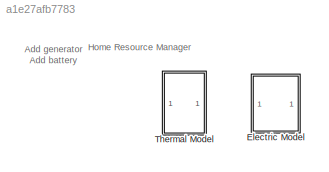
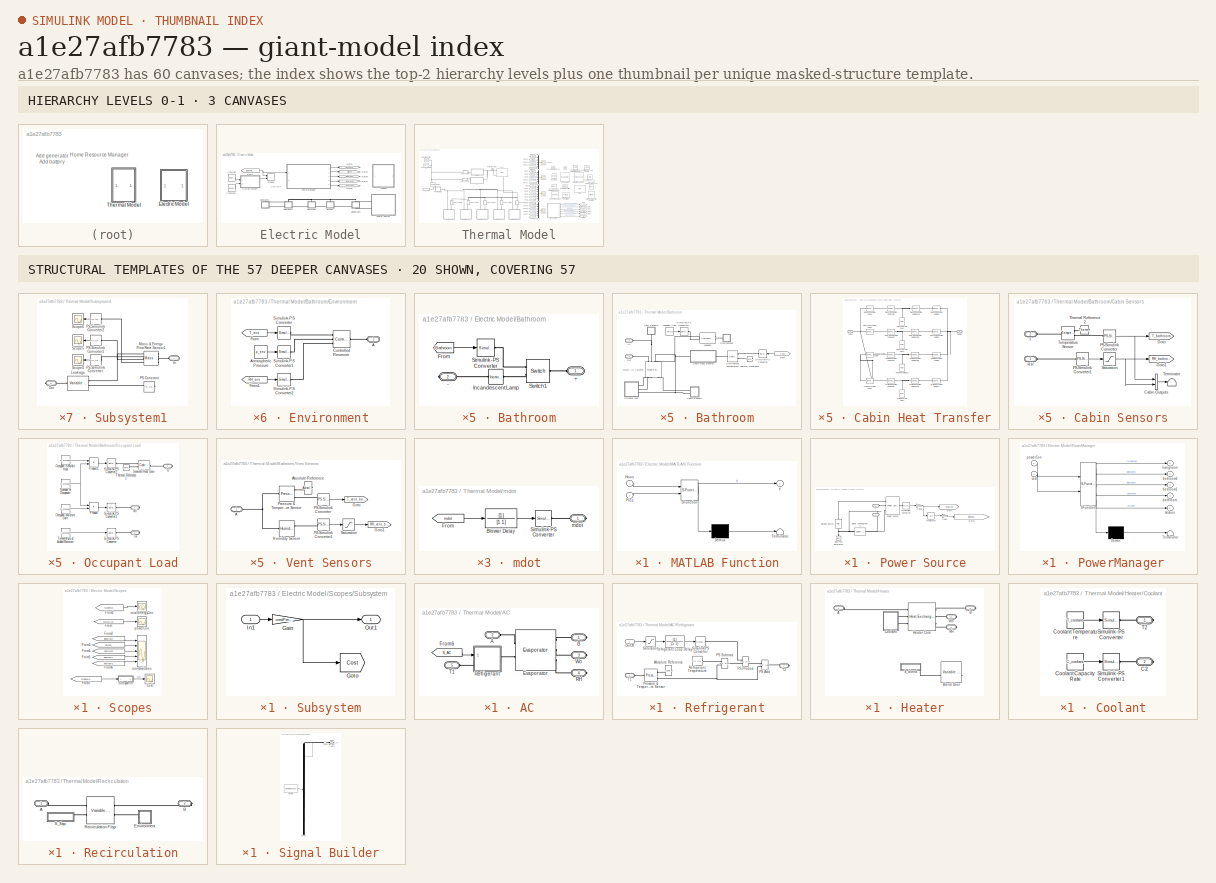
[diagram: thumbnail index - top-2 hierarchy levels (3 canvases) + 20 structural-template representatives of the remaining 57 canvases]
MODEL slx_a1e27afb7783
KIND model
CONFIG AbsTol = auto
CONFIG EnableMultiTasking = off
CONFIG FixedStep = auto
CONFIG MaxStep = 1e-4
CONFIG MinStep = auto
CONFIG RelTol = 1e-3
CONFIG SampleTimeConstraint = Unconstrained
CONFIG Solver = FixedStepAuto
CONFIG SolverName = FixedStepAuto
CONFIG StartTime = 0.0
CONFIG StopTime = 2000
WORKSPACE source: external: MATLAB File  (data not in archive)
BLOCK [SubSystem] Electric Model
  Ports = []
  RequestExecContextInheritance = off
  Variant = off
BLOCK [SubSystem] Electric Model/Bathroom
  Ports = [0, 0, 0, 0, 0, 1, 1]
  RequestExecContextInheritance = off
  Variant = off
BLOCK [PMIOPort] Electric Model/Bathroom/+
  Port = 1
  Side = Left
BLOCK [PMIOPort] Electric Model/Bathroom/-
  Port = 2
  Side = Right
BLOCK [From] Electric Model/Bathroom/From
  GotoTag = Bathroom
  TagVisibility = global
BLOCK [Reference] Electric Model/Bathroom/Incandescent Lamp  REF=elec_lib/Passive Devices/Incandescent Lamp
  Ports = [0, 0, 0, 0, 0, 1, 1]
  SourceBlock = elec_lib/Passive Devices/Incandescent Lamp
  SourceProductBaseCode = SN
  SourceProductName = Simscape Electronics
  SourceType = Incandescent Lamp
BLOCK [Reference] Electric Model/Bathroom/Simulink-PS Converter  REF=nesl_utility/Simulink-PS
Converter
  Ports = [1, 0, 0, 0, 0, 0, 1]
  SourceBlock = nesl_utility/Simulink-PS\nConverter
  SourceProductBaseCode = SS
  SourceProductName = Simscape
  SourceType = Simulink-PS\nConverter
BLOCK [Reference] Electric Model/Bathroom/Switch1  REF=fl_lib/Electrical/Electrical Elements/Switch
  Ports = [0, 0, 0, 0, 0, 1, 2]
  SourceBlock = fl_lib/Electrical/Electrical Elements/Switch
  SourceProductBaseCode = SS
  SourceProductName = Simscape
  SourceType = Switch
BLOCK [SubSystem] Electric Model/Bedroom1
  Ports = [0, 0, 0, 0, 0, 1, 1]
  RequestExecContextInheritance = off
  Variant = off
BLOCK [PMIOPort] Electric Model/Bedroom1/+
  Port = 1
  Side = Left
BLOCK [PMIOPort] Electric Model/Bedroom1/-
  Port = 2
  Side = Right
BLOCK [From] Electric Model/Bedroom1/From
  GotoTag = Bedroom1
  TagVisibility = global
BLOCK [Reference] Electric Model/Bedroom1/Incandescent Lamp  REF=elec_lib/Passive Devices/Incandescent Lamp
  Ports = [0, 0, 0, 0, 0, 1, 1]
  SourceBlock = elec_lib/Passive Devices/Incandescent Lamp
  SourceProductBaseCode = SN
  SourceProductName = Simscape Electronics
  SourceType = Incandescent Lamp
BLOCK [Reference] Electric Model/Bedroom1/Simulink-PS Converter  REF=nesl_utility/Simulink-PS
Converter
  Ports = [1, 0, 0, 0, 0, 0, 1]
  SourceBlock = nesl_utility/Simulink-PS\nConverter
  SourceProductBaseCode = SS
  SourceProductName = Simscape
  SourceType = Simulink-PS\nConverter
BLOCK [Reference] Electric Model/Bedroom1/Switch1  REF=fl_lib/Electrical/Electrical Elements/Switch
  Ports = [0, 0, 0, 0, 0, 1, 2]
  SourceBlock = fl_lib/Electrical/Electrical Elements/Switch
  SourceProductBaseCode = SS
  SourceProductName = Simscape
  SourceType = Switch
BLOCK [SubSystem] Electric Model/Bedroom2
  Ports = [0, 0, 0, 0, 0, 1, 1]
  RequestExecContextInheritance = off
  Variant = off
BLOCK [PMIOPort] Electric Model/Bedroom2/+
  Port = 1
  Side = Left
BLOCK [PMIOPort] Electric Model/Bedroom2/-
  Port = 2
  Side = Right
BLOCK [From] Electric Model/Bedroom2/From
  GotoTag = Bedroom2
  TagVisibility = global
BLOCK [Reference] Electric Model/Bedroom2/Incandescent Lamp  REF=elec_lib/Passive Devices/Incandescent Lamp
  Ports = [0, 0, 0, 0, 0, 1, 1]
  SourceBlock = elec_lib/Passive Devices/Incandescent Lamp
  SourceProductBaseCode = SN
  SourceProductName = Simscape Electronics
  SourceType = Incandescent Lamp
BLOCK [Reference] Electric Model/Bedroom2/Simulink-PS Converter  REF=nesl_utility/Simulink-PS
Converter
  Ports = [1, 0, 0, 0, 0, 0, 1]
  SourceBlock = nesl_utility/Simulink-PS\nConverter
  SourceProductBaseCode = SS
  SourceProductName = Simscape
  SourceType = Simulink-PS\nConverter
BLOCK [Reference] Electric Model/Bedroom2/Switch1  REF=fl_lib/Electrical/Electrical Elements/Switch
  Ports = [0, 0, 0, 0, 0, 1, 2]
  SourceBlock = fl_lib/Electrical/Electrical Elements/Switch
  SourceProductBaseCode = SS
  SourceProductName = Simscape
  SourceType = Switch
BLOCK [Constant] Electric Model/Constant
  Value = [0; 1; 2; 3; 4; 5; 6; 7; 8; 9; 10; 11; 12; 13; 14; 15; 16; 17; 18; 19; 20; 21; 22; 23]
BLOCK [Constant] Electric Model/Constant1
  Value = [2.2000;\n    2.1000;\n    2.1000;\n    2.1000;    2.1000;\n    2.3000;\n    2.4000;\n    2.4000;\n    2.6000;\n    2.6000;\n    2.6000;\n    2.5000;\n    2.4000;\n    2.4000;\n    2.3000;\n    2.3000;\n    2.3000;\n    2.4000;\n    2.7000;\n    3.1000;\n    2.8000;\n    2.4000\n;    2.2000\n;    2.0000]
BLOCK [From] Electric Model/From1
  GotoTag = totalPowerCon
  TagVisibility = global
BLOCK [Goto] Electric Model/Goto1
  GotoTag = livingRoom
  TagVisibility = global
BLOCK [Goto] Electric Model/Goto2
  GotoTag = Kitchen
  TagVisibility = global
BLOCK [Goto] Electric Model/Goto3
  GotoTag = Bathroom
  TagVisibility = global
BLOCK [Goto] Electric Model/Goto4
  GotoTag = Bedroom1
  TagVisibility = global
BLOCK [Goto] Electric Model/Goto5
  GotoTag = Bedroom2
  TagVisibility = global
BLOCK [SubSystem] Electric Model/Kitchen
  Ports = [0, 0, 0, 0, 0, 1, 1]
  RequestExecContextInheritance = off
  Variant = off
BLOCK [PMIOPort] Electric Model/Kitchen/+
  Port = 1
  Side = Left
BLOCK [PMIOPort] Electric Model/Kitchen/-
  Port = 2
  Side = Right
BLOCK [From] Electric Model/Kitchen/From
  GotoTag = Kitchen
  TagVisibility = global
BLOCK [Reference] Electric Model/Kitchen/Incandescent Lamp  REF=elec_lib/Passive Devices/Incandescent Lamp
  Ports = [0, 0, 0, 0, 0, 1, 1]
  SourceBlock = elec_lib/Passive Devices/Incandescent Lamp
  SourceProductBaseCode = SN
  SourceProductName = Simscape Electronics
  SourceType = Incandescent Lamp
BLOCK [Reference] Electric Model/Kitchen/Simulink-PS Converter  REF=nesl_utility/Simulink-PS
Converter
  Ports = [1, 0, 0, 0, 0, 0, 1]
  SourceBlock = nesl_utility/Simulink-PS\nConverter
  SourceProductBaseCode = SS
  SourceProductName = Simscape
  SourceType = Simulink-PS\nConverter
BLOCK [Reference] Electric Model/Kitchen/Switch1  REF=fl_lib/Electrical/Electrical Elements/Switch
  Ports = [0, 0, 0, 0, 0, 1, 2]
  SourceBlock = fl_lib/Electrical/Electrical Elements/Switch
  SourceProductBaseCode = SS
  SourceProductName = Simscape
  SourceType = Switch
BLOCK [SubSystem] Electric Model/LivingRoom
  Ports = [0, 0, 0, 0, 0, 1, 1]
  RequestExecContextInheritance = off
  Variant = off
BLOCK [PMIOPort] Electric Model/LivingRoom/+
  Port = 1
  Side = Left
BLOCK [PMIOPort] Electric Model/LivingRoom/-
  Port = 2
  Side = Right
BLOCK [From] Electric Model/LivingRoom/From
  GotoTag = livingRoomLight
BLOCK [Reference] Electric Model/LivingRoom/Incandescent Lamp  REF=elec_lib/Passive Devices/Incandescent Lamp
  Ports = [0, 0, 0, 0, 0, 1, 1]
  SourceBlock = elec_lib/Passive Devices/Incandescent Lamp
  SourceProductBaseCode = SN
  SourceProductName = Simscape Electronics
  SourceType = Incandescent Lamp
BLOCK [Reference] Electric Model/LivingRoom/Simulink-PS Converter  REF=nesl_utility/Simulink-PS
Converter
  Ports = [1, 0, 0, 0, 0, 0, 1]
  SourceBlock = nesl_utility/Simulink-PS\nConverter
  SourceProductBaseCode = SS
  SourceProductName = Simscape
  SourceType = Simulink-PS\nConverter
BLOCK [Reference] Electric Model/LivingRoom/Switch1  REF=fl_lib/Electrical/Electrical Elements/Switch
  Ports = [0, 0, 0, 0, 0, 1, 2]
  SourceBlock = fl_lib/Electrical/Electrical Elements/Switch
  SourceProductBaseCode = SS
  SourceProductName = Simscape
  SourceType = Switch
BLOCK [SubSystem] Electric Model/MATLAB Function
  ErrorFcn = Stateflow.Translate.translate
  PermitHierarchicalResolution = ExplicitOnly
  Ports = [2, 1]
  RequestExecContextInheritance = off
  SFBlockType = MATLAB Function
  TreatAsAtomicUnit = on
  Variant = off
BLOCK [Demux] Electric Model/MATLAB Function/ Demux 
  Outputs = 1
  Ports = [1, 1]
BLOCK [S-Function] Electric Model/MATLAB Function/ SFunction 
  EnableBusSupport = on
  FunctionName = sf_sfun
  PortCounts = [2 2]
  Ports = [2, 2]
  SFcnIsStateOwnerBlock = off
  SFunctionDeploymentMode = off
  Tag = Stateflow S-Function resourceManagement 2
BLOCK [Terminator] Electric Model/MATLAB Function/ Terminator 
BLOCK [Inport] Electric Model/MATLAB Function/Hours
  IconDisplay = Port number
BLOCK [Inport] Electric Model/MATLAB Function/Price
  IconDisplay = Port number
  Port = 2
BLOCK [Outport] Electric Model/MATLAB Function/y
  IconDisplay = Port number
BLOCK [SubSystem] Electric Model/Power Source
  Ports = [0, 0, 0, 0, 0, 2]
  RequestExecContextInheritance = off
  Variant = off
BLOCK [PMIOPort] Electric Model/Power Source/+
  Port = 1
  Side = Left
BLOCK [PMIOPort] Electric Model/Power Source/-
  Port = 2
  Side = Left
BLOCK [Reference] Electric Model/Power Source/Electrical Reference  REF=fl_lib/Electrical/Electrical Elements/Electrical Reference
  Ports = [0, 0, 0, 0, 0, 1]
  SourceBlock = fl_lib/Electrical/Electrical Elements/Electrical Reference
  SourceProductBaseCode = SS
  SourceProductName = Simscape
  SourceType = Electrical Reference
BLOCK [Gain] Electric Model/Power Source/Gain1
  Gain = 1/3600
  OutDataTypeStr = Inherit: Inherit via internal rule
  ParamDataTypeStr = Inherit: Inherit via internal rule
  SaturateOnIntegerOverflow = off
BLOCK [Gain] Electric Model/Power Source/Gain2
  Gain = 1/1000
  OutDataTypeStr = Inherit: Inherit via internal rule
  ParamDataTypeStr = Inherit: Inherit via internal rule
  SaturateOnIntegerOverflow = off
BLOCK [Goto] Electric Model/Power Source/Goto
  GotoTag = powerCon
  TagVisibility = global
BLOCK [Goto] Electric Model/Power Source/Goto1
  GotoTag = totalPowerCon
  TagVisibility = global
BLOCK [Integrator] Electric Model/Power Source/Integrator
  Ports = [1, 1]
BLOCK [Reference] Electric Model/Power Source/PS-Simulink Converter  REF=nesl_utility/PS-Simulink
Converter
  Ports = [0, 1, 0, 0, 0, 1]
  SourceBlock = nesl_utility/PS-Simulink\nConverter
  SourceProductBaseCode = SS
  SourceProductName = Simscape
  SourceType = PS-Simulink\nConverter
BLOCK [Reference] Electric Model/Power Source/Power Sensor  REF=elec_lib/Sensors/Power Sensor
  Ports = [0, 0, 0, 0, 0, 3, 1]
  SourceBlock = elec_lib/Sensors/Power Sensor
  SourceProductBaseCode = SN
  SourceProductName = Simscape Electronics
  SourceType = Power Sensor
BLOCK [Reference] Electric Model/Power Source/Solver Configuration  REF=nesl_utility/Solver
Configuration
  Ports = [0, 0, 0, 0, 0, 0, 1]
  SourceBlock = nesl_utility/Solver\nConfiguration
  SourceProductBaseCode = SS
  SourceProductName = Simscape
  SourceType = Solver\nConfiguration
BLOCK [Reference] Electric Model/Power Source/Voltage Source  REF=elec_lib/Sources/Voltage Source
  Ports = [0, 0, 0, 0, 0, 1, 1]
  SourceBlock = elec_lib/Sources/Voltage Source
  SourceProductBaseCode = SN
  SourceProductName = Simscape Electronics
  SourceType = Voltage Source
BLOCK [SubSystem] Electric Model/PowerManager
  ErrorFcn = Stateflow.Translate.translate
  PermitHierarchicalResolution = ExplicitOnly
  Ports = [2, 5]
  RequestExecContextInheritance = off
  SFBlockType = Chart
  TreatAsAtomicUnit = on
  Variant = off
BLOCK [Demux] Electric Model/PowerManager/ Demux 
  Outputs = 1
  Ports = [1, 1]
BLOCK [S-Function] Electric Model/PowerManager/ SFunction 
  EnableBusSupport = on
  FunctionName = sf_sfun
  Parameters = costThresh
  PortCounts = [2 6]
  Ports = [2, 6]
  SFcnIsStateOwnerBlock = off
  SFunctionDeploymentMode = off
  Tag = Stateflow S-Function resourceManagement 3
BLOCK [Terminator] Electric Model/PowerManager/ Terminator 
BLOCK [Outport] Electric Model/PowerManager/bathroom
  IconDisplay = Port number
  Port = 4
BLOCK [Outport] Electric Model/PowerManager/bedroom1
  IconDisplay = Port number
  Port = 3
BLOCK [Outport] Electric Model/PowerManager/bedroom2
  IconDisplay = Port number
  Port = 2
BLOCK [Inport] Electric Model/PowerManager/cost
  IconDisplay = Port number
  Port = 2
BLOCK [Outport] Electric Model/PowerManager/kitchen
  IconDisplay = Port number
  Port = 5
BLOCK [Outport] Electric Model/PowerManager/livingroom
  IconDisplay = Port number
BLOCK [Inport] Electric Model/PowerManager/powerCon
  IconDisplay = Port number
BLOCK [Product] Electric Model/Product
  InputSameDT = off
  OutDataTypeStr = Inherit: Inherit via internal rule
  Ports = [2, 1]
  RndMeth = Floor
  SaturateOnIntegerOverflow = off
BLOCK [SubSystem] Electric Model/Scopes
  Ports = []
  RequestExecContextInheritance = off
  Variant = off
BLOCK [Scope] Electric Model/Scopes/Cost
  NumInputPorts = 1
  Ports = [1]
  ScopeSpecificationString = Simulink.scopes.TimeScopeBlockCfg('CurrentConfiguration', extmgr.ConfigurationSet(extmgr.Configuration('Core','General UI',true),extmgr.Configuration('Core','Source UI',true),extmgr.Configuration('Sources','WiredSimulink',true,'DataLoggingVariableName','ScopeData2'),extmgr.Configuration('Visuals','Time Domain',true,'SerializedDisplays',{struct('MinYLimReal','-0.12501','MaxYLimReal','1.12508','YLab...<+1490ch>
BLOCK [From] Electric Model/Scopes/From
  GotoTag = powerCon
  TagVisibility = global
BLOCK [From] Electric Model/Scopes/From1
  GotoTag = totalPowerCon
  TagVisibility = global
BLOCK [From] Electric Model/Scopes/From2
  GotoTag = livingRoom
  TagVisibility = global
BLOCK [From] Electric Model/Scopes/From3
  GotoTag = Kitchen
  TagVisibility = global
BLOCK [From] Electric Model/Scopes/From4
  GotoTag = Bathroom
  TagVisibility = global
BLOCK [From] Electric Model/Scopes/From5
  GotoTag = Bedroom1
  TagVisibility = global
BLOCK [From] Electric Model/Scopes/From6
  GotoTag = Bedroom2
  TagVisibility = global
BLOCK [From] Electric Model/Scopes/From7
  GotoTag = totalPowerCon
  TagVisibility = global
BLOCK [SubSystem] Electric Model/Scopes/Subsystem
  Ports = [1, 1]
  RequestExecContextInheritance = off
  Variant = off
BLOCK [Gain] Electric Model/Scopes/Subsystem/Gain
  Gain = costPerKWH
  OutDataTypeStr = Inherit: Inherit via internal rule
  ParamDataTypeStr = Inherit: Inherit via internal rule
  SaturateOnIntegerOverflow = off
BLOCK [Goto] Electric Model/Scopes/Subsystem/Goto
  GotoTag = Cost
  TagVisibility = global
BLOCK [Inport] Electric Model/Scopes/Subsystem/In1
  IconDisplay = Port number
BLOCK [Outport] Electric Model/Scopes/Subsystem/Out1
  IconDisplay = Port number
BLOCK [Scope] Electric Model/Scopes/powerCon
  NumInputPorts = 1
  Ports = [1]
  ScopeSpecificationString = Simulink.scopes.TimeScopeBlockCfg('CurrentConfiguration', extmgr.ConfigurationSet(extmgr.Configuration('Core','General UI',true),extmgr.Configuration('Core','Source UI',true),extmgr.Configuration('Sources','WiredSimulink',true,'DataLoggingVariableName','ScopeData1'),extmgr.Configuration('Visuals','Time Domain',true,'SerializedDisplays',{struct('MinYLimReal','-0.45','MaxYLimReal','4.05','YLabelReal...<+1420ch>
BLOCK [Scope] Electric Model/Scopes/roomSwitches
  NumInputPorts = 5
  Ports = [5]
  ScopeSpecificationString = Simulink.scopes.TimeScopeBlockCfg('CurrentConfiguration', extmgr.ConfigurationSet(extmgr.Configuration('Core','General UI',true),extmgr.Configuration('Core','Source UI',true),extmgr.Configuration('Sources','WiredSimulink',true,'DataLoggingVariableName','ScopeData1'),extmgr.Configuration('Visuals','Time Domain',true,'SerializedDisplays',{struct('MinYLimReal','0.9','MaxYLimReal','1.1','YLabelReal','...<+1530ch>
BLOCK [Scope] Electric Model/Scopes/totalEnergyCon
  NumInputPorts = 1
  Ports = [1]
  ScopeSpecificationString = Simulink.scopes.TimeScopeBlockCfg('CurrentConfiguration', extmgr.ConfigurationSet(extmgr.Configuration('Core','General UI',true),extmgr.Configuration('Core','Source UI',true),extmgr.Configuration('Sources','WiredSimulink',true,'DataLoggingVariableName','ScopeData2'),extmgr.Configuration('Visuals','Time Domain',true,'SerializedDisplays',{struct('MinYLimReal','-0.0176','MaxYLimReal','0.15841','YLabe...<+1488ch>
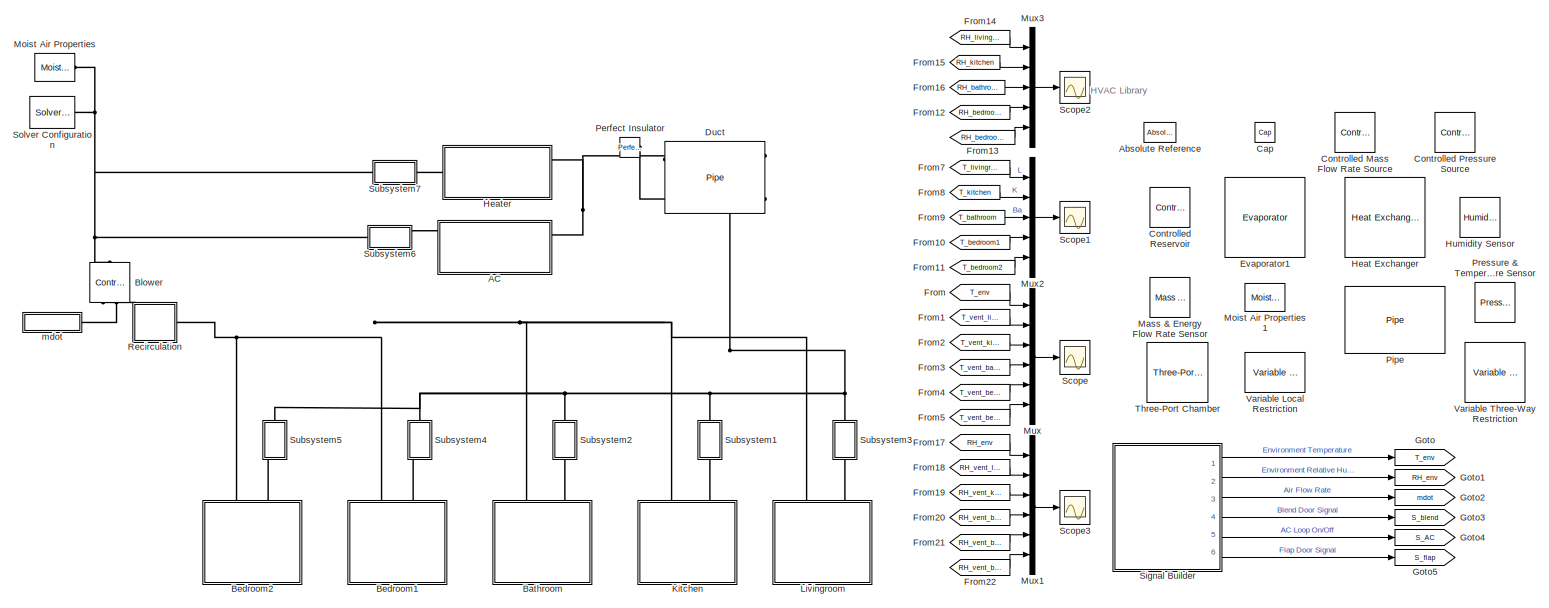
[diagram: Thermal Model - part 1/1, most of the canvas]
BLOCK [SubSystem] Thermal Model
  Ports = []
  RequestExecContextInheritance = off
  Variant = off
BLOCK [SubSystem] Thermal Model/AC
  Ports = [0, 0, 0, 0, 0, 2, 3]
  RequestExecContextInheritance = off
  Variant = off
BLOCK [PMIOPort] Thermal Model/AC/A
  Port = 2
  Side = Left
BLOCK [PMIOPort] Thermal Model/AC/B
  Port = 1
  Side = Right
BLOCK [Reference] Thermal Model/AC/Evaporator  REF=HVAC_lib/Evaporator
  Ports = [0, 0, 0, 0, 0, 2, 3]
  SourceBlock = HVAC_lib/Evaporator
  SourceType = Evaporator
BLOCK [From] Thermal Model/AC/From6
  GotoTag = S_AC
  TagVisibility = global
BLOCK [PMIOPort] Thermal Model/AC/RH
  Port = 4
  Side = Right
BLOCK [SubSystem] Thermal Model/AC/Refrigerant
  Ports = [1, 0, 0, 0, 0, 1, 1]
  RequestExecContextInheritance = off
  Variant = off
BLOCK [Reference] Thermal Model/AC/Refrigerant/Absolute Reference  REF=HVAC_lib/Absolute Reference
  Ports = [0, 0, 0, 0, 0, 1]
  SourceBlock = HVAC_lib/Absolute Reference
  SourceType = Absolute Reference
BLOCK [Inport] Thermal Model/AC/Refrigerant/On//Off
  IconDisplay = Port number
BLOCK [Reference] Thermal Model/AC/Refrigerant/PS Add  REF=fl_lib/Physical Signals/Functions/PS Add
  Ports = [0, 0, 0, 0, 0, 2, 1]
  SourceBlock = fl_lib/Physical Signals/Functions/PS Add
  SourceProductBaseCode = SS
  SourceProductName = Simscape
  SourceType = PS Add
BLOCK [Reference] Thermal Model/AC/Refrigerant/PS Product  REF=fl_lib/Physical Signals/Functions/PS Product
  Ports = [0, 0, 0, 0, 0, 2, 1]
  SourceBlock = fl_lib/Physical Signals/Functions/PS Product
  SourceProductBaseCode = SS
  SourceProductName = Simscape
  SourceType = PS Product
BLOCK [Reference] Thermal Model/AC/Refrigerant/PS Subtract  REF=fl_lib/Physical Signals/Functions/PS Subtract
  Ports = [0, 0, 0, 0, 0, 2, 1]
  SourceBlock = fl_lib/Physical Signals/Functions/PS Subtract
  SourceProductBaseCode = SS
  SourceProductName = Simscape
  SourceType = PS Subtract
BLOCK [Reference] Thermal Model/AC/Refrigerant/Pressure & Temperature Sensor  REF=HVAC_lib/Pressure &
Temperature Sensor
  Ports = [0, 0, 0, 0, 0, 1, 3]
  SourceBlock = HVAC_lib/Pressure &\nTemperature Sensor
  SourceType = Pressure &\nTemperature Sensor
BLOCK [TransferFcn] Thermal Model/AC/Refrigerant/Refrigerant Loop Delay
  Denominator = [5 1]
BLOCK [Reference] Thermal Model/AC/Refrigerant/Refrigerant Temperature  REF=fl_lib/Physical Signals/Sources/PS Constant
  Ports = [0, 0, 0, 0, 0, 0, 1]
  SourceBlock = fl_lib/Physical Signals/Sources/PS Constant
  SourceProductBaseCode = SS
  SourceProductName = Simscape
  SourceType = PS Constant
BLOCK [Saturate] Thermal Model/AC/Refrigerant/Saturation
  InputPortMap = u0
  LowerLimit = 0
  Ports = [1, 1]
  UpperLimit = 1
  ZeroCross = off
BLOCK [Reference] Thermal Model/AC/Refrigerant/Simulink-PS Converter  REF=nesl_utility/Simulink-PS
Converter
  Ports = [1, 0, 0, 0, 0, 0, 1]
  SourceBlock = nesl_utility/Simulink-PS\nConverter
  SourceProductBaseCode = SS
  SourceProductName = Simscape
  SourceType = Simulink-PS\nConverter
BLOCK [PMIOPort] Thermal Model/AC/Refrigerant/T1
  Port = 1
  Side = Left
BLOCK [PMIOPort] Thermal Model/AC/Refrigerant/T2
  Port = 2
  Side = Right
BLOCK [PMIOPort] Thermal Model/AC/T1
  Port = 5
  Side = Left
BLOCK [PMIOPort] Thermal Model/AC/Wo
  Port = 3
  Side = Right
BLOCK [Reference] Thermal Model/Absolute Reference  REF=HVAC_lib/Absolute Reference
  Commented = on
  Ports = [0, 0, 0, 0, 0, 1]
  SourceBlock = HVAC_lib/Absolute Reference
  SourceType = Absolute Reference
BLOCK [SubSystem] Thermal Model/Bathroom
  Ports = [0, 0, 0, 0, 0, 2]
  RequestExecContextInheritance = off
  Tag = PublishSubsystem
  Variant = off
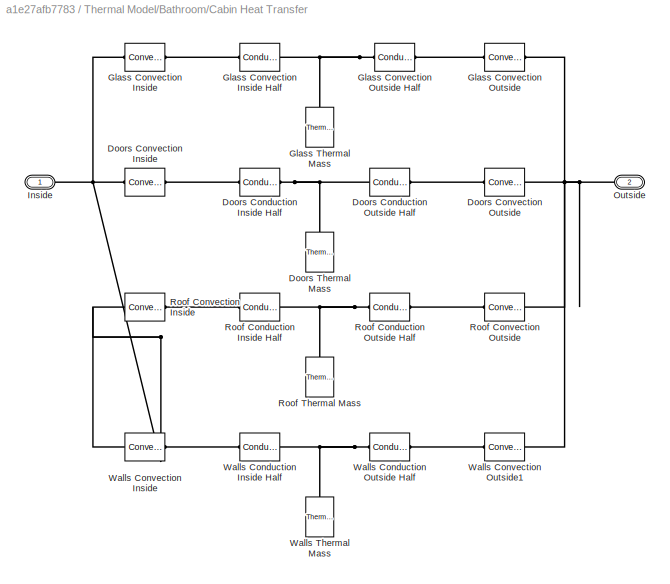
BLOCK [SubSystem] Thermal Model/Bathroom/Cabin Heat Transfer
  Ports = [0, 0, 0, 0, 0, 1, 1]
  RequestExecContextInheritance = off
  Tag = PublishSubsystem
  Variant = off
BLOCK [Reference] Thermal Model/Bathroom/Cabin Heat Transfer/Doors Conduction Inside Half  REF=fl_lib/Thermal/Thermal Elements/Conductive Heat
Transfer
  Ports = [0, 0, 0, 0, 0, 1, 1]
  SourceBlock = fl_lib/Thermal/Thermal Elements/Conductive Heat\nTransfer
  SourceProductBaseCode = SS
  SourceProductName = Simscape
  SourceType = Conductive Heat\nTransfer
BLOCK [Reference] Thermal Model/Bathroom/Cabin Heat Transfer/Doors Conduction Outside Half  REF=fl_lib/Thermal/Thermal Elements/Conductive Heat
Transfer
  Ports = [0, 0, 0, 0, 0, 1, 1]
  SourceBlock = fl_lib/Thermal/Thermal Elements/Conductive Heat\nTransfer
  SourceProductBaseCode = SS
  SourceProductName = Simscape
  SourceType = Conductive Heat\nTransfer
BLOCK [Reference] Thermal Model/Bathroom/Cabin Heat Transfer/Doors Convection Inside  REF=fl_lib/Thermal/Thermal Elements/Convective Heat
Transfer
  Ports = [0, 0, 0, 0, 0, 1, 1]
  SourceBlock = fl_lib/Thermal/Thermal Elements/Convective Heat\nTransfer
  SourceProductBaseCode = SS
  SourceProductName = Simscape
  SourceType = Convective Heat\nTransfer
BLOCK [Reference] Thermal Model/Bathroom/Cabin Heat Transfer/Doors Convection Outside  REF=fl_lib/Thermal/Thermal Elements/Convective Heat
Transfer
  Ports = [0, 0, 0, 0, 0, 1, 1]
  SourceBlock = fl_lib/Thermal/Thermal Elements/Convective Heat\nTransfer
  SourceProductBaseCode = SS
  SourceProductName = Simscape
  SourceType = Convective Heat\nTransfer
BLOCK [Reference] Thermal Model/Bathroom/Cabin Heat Transfer/Doors Thermal Mass  REF=fl_lib/Thermal/Thermal Elements/Thermal Mass
  Ports = [0, 0, 0, 0, 0, 1]
  SourceBlock = fl_lib/Thermal/Thermal Elements/Thermal Mass
  SourceProductBaseCode = SS
  SourceProductName = Simscape
  SourceType = Thermal Mass
BLOCK [Reference] Thermal Model/Bathroom/Cabin Heat Transfer/Glass Convection Inside  REF=fl_lib/Thermal/Thermal Elements/Convective Heat
Transfer
  Ports = [0, 0, 0, 0, 0, 1, 1]
  SourceBlock = fl_lib/Thermal/Thermal Elements/Convective Heat\nTransfer
  SourceProductBaseCode = SS
  SourceProductName = Simscape
  SourceType = Convective Heat\nTransfer
BLOCK [Reference] Thermal Model/Bathroom/Cabin Heat Transfer/Glass Convection Inside Half  REF=fl_lib/Thermal/Thermal Elements/Conductive Heat
Transfer
  Ports = [0, 0, 0, 0, 0, 1, 1]
  SourceBlock = fl_lib/Thermal/Thermal Elements/Conductive Heat\nTransfer
  SourceProductBaseCode = SS
  SourceProductName = Simscape
  SourceType = Conductive Heat\nTransfer
BLOCK [Reference] Thermal Model/Bathroom/Cabin Heat Transfer/Glass Convection Outside  REF=fl_lib/Thermal/Thermal Elements/Convective Heat
Transfer
  Ports = [0, 0, 0, 0, 0, 1, 1]
  SourceBlock = fl_lib/Thermal/Thermal Elements/Convective Heat\nTransfer
  SourceProductBaseCode = SS
  SourceProductName = Simscape
  SourceType = Convective Heat\nTransfer
BLOCK [Reference] Thermal Model/Bathroom/Cabin Heat Transfer/Glass Convection Outside Half  REF=fl_lib/Thermal/Thermal Elements/Conductive Heat
Transfer
  Ports = [0, 0, 0, 0, 0, 1, 1]
  SourceBlock = fl_lib/Thermal/Thermal Elements/Conductive Heat\nTransfer
  SourceProductBaseCode = SS
  SourceProductName = Simscape
  SourceType = Conductive Heat\nTransfer
BLOCK [Reference] Thermal Model/Bathroom/Cabin Heat Transfer/Glass Thermal Mass  REF=fl_lib/Thermal/Thermal Elements/Thermal Mass
  Ports = [0, 0, 0, 0, 0, 1]
  SourceBlock = fl_lib/Thermal/Thermal Elements/Thermal Mass
  SourceProductBaseCode = SS
  SourceProductName = Simscape
  SourceType = Thermal Mass
BLOCK [PMIOPort] Thermal Model/Bathroom/Cabin Heat Transfer/Inside
  Port = 1
  Side = Left
BLOCK [PMIOPort] Thermal Model/Bathroom/Cabin Heat Transfer/Outside
  Port = 2
  Side = Right
BLOCK [Reference] Thermal Model/Bathroom/Cabin Heat Transfer/Roof Conduction Inside Half  REF=fl_lib/Thermal/Thermal Elements/Conductive Heat
Transfer
  Ports = [0, 0, 0, 0, 0, 1, 1]
  SourceBlock = fl_lib/Thermal/Thermal Elements/Conductive Heat\nTransfer
  SourceProductBaseCode = SS
  SourceProductName = Simscape
  SourceType = Conductive Heat\nTransfer
BLOCK [Reference] Thermal Model/Bathroom/Cabin Heat Transfer/Roof Conduction Outside Half  REF=fl_lib/Thermal/Thermal Elements/Conductive Heat
Transfer
  Ports = [0, 0, 0, 0, 0, 1, 1]
  SourceBlock = fl_lib/Thermal/Thermal Elements/Conductive Heat\nTransfer
  SourceProductBaseCode = SS
  SourceProductName = Simscape
  SourceType = Conductive Heat\nTransfer
BLOCK [Reference] Thermal Model/Bathroom/Cabin Heat Transfer/Roof Convection Inside  REF=fl_lib/Thermal/Thermal Elements/Convective Heat
Transfer
  Ports = [0, 0, 0, 0, 0, 1, 1]
  SourceBlock = fl_lib/Thermal/Thermal Elements/Convective Heat\nTransfer
  SourceProductBaseCode = SS
  SourceProductName = Simscape
  SourceType = Convective Heat\nTransfer
BLOCK [Reference] Thermal Model/Bathroom/Cabin Heat Transfer/Roof Convection Outside  REF=fl_lib/Thermal/Thermal Elements/Convective Heat
Transfer
  Ports = [0, 0, 0, 0, 0, 1, 1]
  SourceBlock = fl_lib/Thermal/Thermal Elements/Convective Heat\nTransfer
  SourceProductBaseCode = SS
  SourceProductName = Simscape
  SourceType = Convective Heat\nTransfer
BLOCK [Reference] Thermal Model/Bathroom/Cabin Heat Transfer/Roof Thermal Mass  REF=fl_lib/Thermal/Thermal Elements/Thermal Mass
  Ports = [0, 0, 0, 0, 0, 1]
  SourceBlock = fl_lib/Thermal/Thermal Elements/Thermal Mass
  SourceProductBaseCode = SS
  SourceProductName = Simscape
  SourceType = Thermal Mass
BLOCK [Reference] Thermal Model/Bathroom/Cabin Heat Transfer/Walls Conduction Inside Half  REF=fl_lib/Thermal/Thermal Elements/Conductive Heat
Transfer
  Ports = [0, 0, 0, 0, 0, 1, 1]
  SourceBlock = fl_lib/Thermal/Thermal Elements/Conductive Heat\nTransfer
  SourceProductBaseCode = SS
  SourceProductName = Simscape
  SourceType = Conductive Heat\nTransfer
BLOCK [Reference] Thermal Model/Bathroom/Cabin Heat Transfer/Walls Conduction Outside Half  REF=fl_lib/Thermal/Thermal Elements/Conductive Heat
Transfer
  Ports = [0, 0, 0, 0, 0, 1, 1]
  SourceBlock = fl_lib/Thermal/Thermal Elements/Conductive Heat\nTransfer
  SourceProductBaseCode = SS
  SourceProductName = Simscape
  SourceType = Conductive Heat\nTransfer
BLOCK [Reference] Thermal Model/Bathroom/Cabin Heat Transfer/Walls Convection Inside  REF=fl_lib/Thermal/Thermal Elements/Convective Heat
Transfer
  Ports = [0, 0, 0, 0, 0, 1, 1]
  SourceBlock = fl_lib/Thermal/Thermal Elements/Convective Heat\nTransfer
  SourceProductBaseCode = SS
  SourceProductName = Simscape
  SourceType = Convective Heat\nTransfer
BLOCK [Reference] Thermal Model/Bathroom/Cabin Heat Transfer/Walls Convection Outside1  REF=fl_lib/Thermal/Thermal Elements/Convective Heat
Transfer
  Ports = [0, 0, 0, 0, 0, 1, 1]
  SourceBlock = fl_lib/Thermal/Thermal Elements/Convective Heat\nTransfer
  SourceProductBaseCode = SS
  SourceProductName = Simscape
  SourceType = Convective Heat\nTransfer
BLOCK [Reference] Thermal Model/Bathroom/Cabin Heat Transfer/Walls Thermal Mass  REF=fl_lib/Thermal/Thermal Elements/Thermal Mass
  Ports = [0, 0, 0, 0, 0, 1]
  SourceBlock = fl_lib/Thermal/Thermal Elements/Thermal Mass
  SourceProductBaseCode = SS
  SourceProductName = Simscape
  SourceType = Thermal Mass
BLOCK [SubSystem] Thermal Model/Bathroom/Cabin Sensors
  Ports = [0, 0, 0, 0, 0, 2]
  RequestExecContextInheritance = off
  Variant = off
BLOCK [Concatenate] Thermal Model/Bathroom/Cabin Sensors/Cabin Outputs
  Ports = [2, 1]
BLOCK [Goto] Thermal Model/Bathroom/Cabin Sensors/Goto
  GotoTag = T_bathroom
  TagVisibility = global
BLOCK [Goto] Thermal Model/Bathroom/Cabin Sensors/Goto1
  GotoTag = RH_bathroom
  TagVisibility = global
BLOCK [Reference] Thermal Model/Bathroom/Cabin Sensors/PS-Simulink Converter  REF=nesl_utility/PS-Simulink
Converter
  Ports = [0, 1, 0, 0, 0, 1]
  SourceBlock = nesl_utility/PS-Simulink\nConverter
  SourceProductBaseCode = SS
  SourceProductName = Simscape
  SourceType = PS-Simulink\nConverter
BLOCK [Reference] Thermal Model/Bathroom/Cabin Sensors/PS-Simulink Converter1  REF=nesl_utility/PS-Simulink
Converter
  Ports = [0, 1, 0, 0, 0, 1]
  SourceBlock = nesl_utility/PS-Simulink\nConverter
  SourceProductBaseCode = SS
  SourceProductName = Simscape
  SourceType = PS-Simulink\nConverter
BLOCK [PMIOPort] Thermal Model/Bathroom/Cabin Sensors/RH
  Port = 1
  Side = Left
BLOCK [Saturate] Thermal Model/Bathroom/Cabin Sensors/Saturation
  InputPortMap = u0
  LowerLimit = 0
  Ports = [1, 1]
  UpperLimit = 1
  ZeroCross = off
BLOCK [PMIOPort] Thermal Model/Bathroom/Cabin Sensors/T
  Port = 2
  Side = Left
BLOCK [Reference] Thermal Model/Bathroom/Cabin Sensors/Temperature Sensor  REF=fl_lib/Thermal/Thermal Sensors/Temperature Sensor
  Ports = [0, 0, 0, 0, 0, 1, 2]
  SourceBlock = fl_lib/Thermal/Thermal Sensors/Temperature Sensor
  SourceProductBaseCode = SS
  SourceProductName = Simscape
  SourceType = Temperature Sensor
BLOCK [Terminator] Thermal Model/Bathroom/Cabin Sensors/Terminator
BLOCK [Reference] Thermal Model/Bathroom/Cabin Sensors/Thermal Reference2  REF=fl_lib/Thermal/Thermal Elements/Thermal Reference
  Ports = [0, 0, 0, 0, 0, 1]
  SourceBlock = fl_lib/Thermal/Thermal Elements/Thermal Reference
  SourceProductBaseCode = SS
  SourceProductName = Simscape
  SourceType = Thermal Reference
BLOCK [SubSystem] Thermal Model/Bathroom/Environment
  Ports = [0, 0, 0, 0, 0, 1]
  RequestExecContextInheritance = off
  Variant = off
BLOCK [Reference] Thermal Model/Bathroom/Environment Temperature  REF=fl_lib/Thermal/Thermal Sources/Controlled
Temperature Source
  Ports = [0, 0, 0, 0, 0, 1, 2]
  SourceBlock = fl_lib/Thermal/Thermal Sources/Controlled\nTemperature Source
  SourceProductBaseCode = SS
  SourceProductName = Simscape
  SourceType = Controlled\nTemperature Source
BLOCK [PMIOPort] Thermal Model/Bathroom/Environment/A
  Port = 1
  Side = Left
BLOCK [Constant] Thermal Model/Bathroom/Environment/Atmospheric Pressure
  Value = p_env
BLOCK [Reference] Thermal Model/Bathroom/Environment/Controlled Reservoir  REF=HVAC_lib/Controlled Reservoir
  Ports = [0, 0, 0, 0, 0, 1, 3]
  SourceBlock = HVAC_lib/Controlled Reservoir
  SourceType = Controlled Reservoir
BLOCK [From] Thermal Model/Bathroom/Environment/From
  GotoTag = T_env
  TagVisibility = global
BLOCK [From] Thermal Model/Bathroom/Environment/From1
  GotoTag = RH_env
  TagVisibility = global
BLOCK [Reference] Thermal Model/Bathroom/Environment/Simulink-PS Converter  REF=nesl_utility/Simulink-PS
Converter
  Ports = [1, 0, 0, 0, 0, 0, 1]
  SourceBlock = nesl_utility/Simulink-PS\nConverter
  SourceProductBaseCode = SS
  SourceProductName = Simscape
  SourceType = Simulink-PS\nConverter
BLOCK [Reference] Thermal Model/Bathroom/Environment/Simulink-PS Converter1  REF=nesl_utility/Simulink-PS
Converter
  Ports = [1, 0, 0, 0, 0, 0, 1]
  SourceBlock = nesl_utility/Simulink-PS\nConverter
  SourceProductBaseCode = SS
  SourceProductName = Simscape
  SourceType = Simulink-PS\nConverter
BLOCK [Reference] Thermal Model/Bathroom/Environment/Simulink-PS Converter2  REF=nesl_utility/Simulink-PS
Converter
  Ports = [1, 0, 0, 0, 0, 0, 1]
  SourceBlock = nesl_utility/Simulink-PS\nConverter
  SourceProductBaseCode = SS
  SourceProductName = Simscape
  SourceType = Simulink-PS\nConverter
BLOCK [From] Thermal Model/Bathroom/From
  GotoTag = T_env
  TagVisibility = global
BLOCK [PMIOPort] Thermal Model/Bathroom/In
  Port = 2
  Side = Left
BLOCK [Reference] Thermal Model/Bathroom/Leakage  REF=HVAC_lib/Variable Local
Restriction
  Ports = [0, 0, 0, 0, 0, 2, 1]
  SourceBlock = HVAC_lib/Variable Local\nRestriction
  SourceType = Variable Local\nRestriction
BLOCK [Constant] Thermal Model/Bathroom/Leakage Area
  Value = 4e-3/5
BLOCK [Reference] Thermal Model/Bathroom/Moist Air Volume  REF=HVAC_lib/Three-Port Chamber
  Ports = [0, 0, 0, 0, 0, 4, 4]
  SourceBlock = HVAC_lib/Three-Port Chamber
  SourceType = Three-Port Chamber
BLOCK [SubSystem] Thermal Model/Bathroom/Occupant Load
  Ports = [0, 0, 0, 0, 0, 0, 3]
  RequestExecContextInheritance = off
  Variant = off
BLOCK [Constant] Thermal Model/Bathroom/Occupant Load/Number of Occupants
  Value = N_occupant
BLOCK [Constant] Thermal Model/Bathroom/Occupant Load/Occupant Moisture Gain
  Value = W_occupant
BLOCK [Constant] Thermal Model/Bathroom/Occupant Load/Occupant Sensible Heat
  Value = Q_occupant
BLOCK [Product] Thermal Model/Bathroom/Occupant Load/Product
  InputSameDT = off
  OutDataTypeStr = Inherit: Inherit via internal rule
  Ports = [2, 1]
  RndMeth = Floor
  SaturateOnIntegerOverflow = off
BLOCK [Product] Thermal Model/Bathroom/Occupant Load/Product1
  InputSameDT = off
  OutDataTypeStr = Inherit: Inherit via internal rule
  Ports = [2, 1]
  RndMeth = Floor
  SaturateOnIntegerOverflow = off
BLOCK [PMIOPort] Thermal Model/Bathroom/Occupant Load/Q
  Port = 3
  Side = Right
BLOCK [Reference] Thermal Model/Bathroom/Occupant Load/Sensible Heat Gain  REF=fl_lib/Thermal/Thermal Sources/Controlled Heat Flow
Rate Source
  Ports = [0, 0, 0, 0, 0, 1, 2]
  SourceBlock = fl_lib/Thermal/Thermal Sources/Controlled Heat Flow\nRate Source
  SourceProductBaseCode = SS
  SourceProductName = Simscape
  SourceType = Controlled Heat Flow\nRate Source
BLOCK [Reference] Thermal Model/Bathroom/Occupant Load/Simulink-PS Converter  REF=nesl_utility/Simulink-PS
Converter
  Ports = [1, 0, 0, 0, 0, 0, 1]
  SourceBlock = nesl_utility/Simulink-PS\nConverter
  SourceProductBaseCode = SS
  SourceProductName = Simscape
  SourceType = Simulink-PS\nConverter
BLOCK [Reference] Thermal Model/Bathroom/Occupant Load/Simulink-PS Converter1  REF=nesl_utility/Simulink-PS
Converter
  Ports = [1, 0, 0, 0, 0, 0, 1]
  SourceBlock = nesl_utility/Simulink-PS\nConverter
  SourceProductBaseCode = SS
  SourceProductName = Simscape
  SourceType = Simulink-PS\nConverter
BLOCK [Reference] Thermal Model/Bathroom/Occupant Load/Simulink-PS Converter2  REF=nesl_utility/Simulink-PS
Converter
  Ports = [1, 0, 0, 0, 0, 0, 1]
  SourceBlock = nesl_utility/Simulink-PS\nConverter
  SourceProductBaseCode = SS
  SourceProductName = Simscape
  SourceType = Simulink-PS\nConverter
BLOCK [Constant] Thermal Model/Bathroom/Occupant Load/Temperature of Added Moisture
  Value = T_occupant
BLOCK [Reference] Thermal Model/Bathroom/Occupant Load/Thermal Reference1  REF=fl_lib/Thermal/Thermal Elements/Thermal Reference
  Ports = [0, 0, 0, 0, 0, 1]
  SourceBlock = fl_lib/Thermal/Thermal Elements/Thermal Reference
  SourceProductBaseCode = SS
  SourceProductName = Simscape
  SourceType = Thermal Reference
BLOCK [PMIOPort] Thermal Model/Bathroom/Occupant Load/Tw
  Port = 2
  Side = Right
BLOCK [PMIOPort] Thermal Model/Bathroom/Occupant Load/Wi
  Port = 1
  Side = Right
BLOCK [PMIOPort] Thermal Model/Bathroom/Out
  Port = 1
  Side = Left
BLOCK [Reference] Thermal Model/Bathroom/Simulink-PS Converter  REF=nesl_utility/Simulink-PS
Converter
  Ports = [1, 0, 0, 0, 0, 0, 1]
  SourceBlock = nesl_utility/Simulink-PS\nConverter
  SourceProductBaseCode = SS
  SourceProductName = Simscape
  SourceType = Simulink-PS\nConverter
BLOCK [Reference] Thermal Model/Bathroom/Simulink-PS Converter1  REF=nesl_utility/Simulink-PS
Converter
  Ports = [1, 0, 0, 0, 0, 0, 1]
  SourceBlock = nesl_utility/Simulink-PS\nConverter
  SourceProductBaseCode = SS
  SourceProductName = Simscape
  SourceType = Simulink-PS\nConverter
BLOCK [Reference] Thermal Model/Bathroom/Thermal Reference  REF=fl_lib/Thermal/Thermal Elements/Thermal Reference
  Ports = [0, 0, 0, 0, 0, 1]
  SourceBlock = fl_lib/Thermal/Thermal Elements/Thermal Reference
  SourceProductBaseCode = SS
  SourceProductName = Simscape
  SourceType = Thermal Reference
BLOCK [SubSystem] Thermal Model/Bathroom/Vent Sensors
  Ports = [0, 0, 0, 0, 0, 1]
  RequestExecContextInheritance = off
  Variant = off
BLOCK [PMIOPort] Thermal Model/Bathroom/Vent Sensors/A
  Port = 1
  Side = Left
BLOCK [Reference] Thermal Model/Bathroom/Vent Sensors/Absolute Reference  REF=HVAC_lib/Absolute Reference
  Ports = [0, 0, 0, 0, 0, 1]
  SourceBlock = HVAC_lib/Absolute Reference
  SourceType = Absolute Reference
BLOCK [Goto] Thermal Model/Bathroom/Vent Sensors/Goto
  GotoTag = T_vent_bathroom
  TagVisibility = global
BLOCK [Goto] Thermal Model/Bathroom/Vent Sensors/Goto1
  GotoTag = RH_vent_bathroom
  TagVisibility = global
BLOCK [Reference] Thermal Model/Bathroom/Vent Sensors/Humidity Sensor  REF=HVAC_lib/Humidity Sensor
  Ports = [0, 0, 0, 0, 0, 1, 2]
  SourceBlock = HVAC_lib/Humidity Sensor
  SourceType = Humidity Sensor
BLOCK [Reference] Thermal Model/Bathroom/Vent Sensors/PS-Simulink Converter  REF=nesl_utility/PS-Simulink
Converter
  Ports = [0, 1, 0, 0, 0, 1]
  SourceBlock = nesl_utility/PS-Simulink\nConverter
  SourceProductBaseCode = SS
  SourceProductName = Simscape
  SourceType = PS-Simulink\nConverter
BLOCK [Reference] Thermal Model/Bathroom/Vent Sensors/PS-Simulink Converter1  REF=nesl_utility/PS-Simulink
Converter
  Ports = [0, 1, 0, 0, 0, 1]
  SourceBlock = nesl_utility/PS-Simulink\nConverter
  SourceProductBaseCode = SS
  SourceProductName = Simscape
  SourceType = PS-Simulink\nConverter
BLOCK [Reference] Thermal Model/Bathroom/Vent Sensors/Pressure & Temperature Sensor  REF=HVAC_lib/Pressure &
Temperature Sensor
  Ports = [0, 0, 0, 0, 0, 1, 3]
  SourceBlock = HVAC_lib/Pressure &\nTemperature Sensor
  SourceType = Pressure &\nTemperature Sensor
BLOCK [Saturate] Thermal Model/Bathroom/Vent Sensors/Saturation
  InputPortMap = u0
  LowerLimit = 0
  Ports = [1, 1]
  UpperLimit = 1
  ZeroCross = off
BLOCK [SubSystem] Thermal Model/Bedroom1
  Ports = [0, 0, 0, 0, 0, 2]
  RequestExecContextInheritance = off
  Tag = PublishSubsystem
  Variant = off
BLOCK [SubSystem] Thermal Model/Bedroom1/Cabin Heat Transfer
  Ports = [0, 0, 0, 0, 0, 1, 1]
  RequestExecContextInheritance = off
  Tag = PublishSubsystem
  Variant = off
BLOCK [Reference] Thermal Model/Bedroom1/Cabin Heat Transfer/Doors Conduction Inside Half  REF=fl_lib/Thermal/Thermal Elements/Conductive Heat
Transfer
  Ports = [0, 0, 0, 0, 0, 1, 1]
  SourceBlock = fl_lib/Thermal/Thermal Elements/Conductive Heat\nTransfer
  SourceProductBaseCode = SS
  SourceProductName = Simscape
  SourceType = Conductive Heat\nTransfer
BLOCK [Reference] Thermal Model/Bedroom1/Cabin Heat Transfer/Doors Conduction Outside Half  REF=fl_lib/Thermal/Thermal Elements/Conductive Heat
Transfer
  Ports = [0, 0, 0, 0, 0, 1, 1]
  SourceBlock = fl_lib/Thermal/Thermal Elements/Conductive Heat\nTransfer
  SourceProductBaseCode = SS
  SourceProductName = Simscape
  SourceType = Conductive Heat\nTransfer
BLOCK [Reference] Thermal Model/Bedroom1/Cabin Heat Transfer/Doors Convection Inside  REF=fl_lib/Thermal/Thermal Elements/Convective Heat
Transfer
  Ports = [0, 0, 0, 0, 0, 1, 1]
  SourceBlock = fl_lib/Thermal/Thermal Elements/Convective Heat\nTransfer
  SourceProductBaseCode = SS
  SourceProductName = Simscape
  SourceType = Convective Heat\nTransfer
BLOCK [Reference] Thermal Model/Bedroom1/Cabin Heat Transfer/Doors Convection Outside  REF=fl_lib/Thermal/Thermal Elements/Convective Heat
Transfer
  Ports = [0, 0, 0, 0, 0, 1, 1]
  SourceBlock = fl_lib/Thermal/Thermal Elements/Convective Heat\nTransfer
  SourceProductBaseCode = SS
  SourceProductName = Simscape
  SourceType = Convective Heat\nTransfer
BLOCK [Reference] Thermal Model/Bedroom1/Cabin Heat Transfer/Doors Thermal Mass  REF=fl_lib/Thermal/Thermal Elements/Thermal Mass
  Ports = [0, 0, 0, 0, 0, 1]
  SourceBlock = fl_lib/Thermal/Thermal Elements/Thermal Mass
  SourceProductBaseCode = SS
  SourceProductName = Simscape
  SourceType = Thermal Mass
BLOCK [Reference] Thermal Model/Bedroom1/Cabin Heat Transfer/Glass Convection Inside  REF=fl_lib/Thermal/Thermal Elements/Convective Heat
Transfer
  Ports = [0, 0, 0, 0, 0, 1, 1]
  SourceBlock = fl_lib/Thermal/Thermal Elements/Convective Heat\nTransfer
  SourceProductBaseCode = SS
  SourceProductName = Simscape
  SourceType = Convective Heat\nTransfer
BLOCK [Reference] Thermal Model/Bedroom1/Cabin Heat Transfer/Glass Convection Inside Half  REF=fl_lib/Thermal/Thermal Elements/Conductive Heat
Transfer
  Ports = [0, 0, 0, 0, 0, 1, 1]
  SourceBlock = fl_lib/Thermal/Thermal Elements/Conductive Heat\nTransfer
  SourceProductBaseCode = SS
  SourceProductName = Simscape
  SourceType = Conductive Heat\nTransfer
BLOCK [Reference] Thermal Model/Bedroom1/Cabin Heat Transfer/Glass Convection Outside  REF=fl_lib/Thermal/Thermal Elements/Convective Heat
Transfer
  Ports = [0, 0, 0, 0, 0, 1, 1]
  SourceBlock = fl_lib/Thermal/Thermal Elements/Convective Heat\nTransfer
  SourceProductBaseCode = SS
  SourceProductName = Simscape
  SourceType = Convective Heat\nTransfer
BLOCK [Reference] Thermal Model/Bedroom1/Cabin Heat Transfer/Glass Convection Outside Half  REF=fl_lib/Thermal/Thermal Elements/Conductive Heat
Transfer
  Ports = [0, 0, 0, 0, 0, 1, 1]
  SourceBlock = fl_lib/Thermal/Thermal Elements/Conductive Heat\nTransfer
  SourceProductBaseCode = SS
  SourceProductName = Simscape
  SourceType = Conductive Heat\nTransfer
BLOCK [Reference] Thermal Model/Bedroom1/Cabin Heat Transfer/Glass Thermal Mass  REF=fl_lib/Thermal/Thermal Elements/Thermal Mass
  Ports = [0, 0, 0, 0, 0, 1]
  SourceBlock = fl_lib/Thermal/Thermal Elements/Thermal Mass
  SourceProductBaseCode = SS
  SourceProductName = Simscape
  SourceType = Thermal Mass
BLOCK [PMIOPort] Thermal Model/Bedroom1/Cabin Heat Transfer/Inside
  Port = 1
  Side = Left
BLOCK [PMIOPort] Thermal Model/Bedroom1/Cabin Heat Transfer/Outside
  Port = 2
  Side = Right
BLOCK [Reference] Thermal Model/Bedroom1/Cabin Heat Transfer/Roof Conduction Inside Half  REF=fl_lib/Thermal/Thermal Elements/Conductive Heat
Transfer
  Ports = [0, 0, 0, 0, 0, 1, 1]
  SourceBlock = fl_lib/Thermal/Thermal Elements/Conductive Heat\nTransfer
  SourceProductBaseCode = SS
  SourceProductName = Simscape
  SourceType = Conductive Heat\nTransfer
BLOCK [Reference] Thermal Model/Bedroom1/Cabin Heat Transfer/Roof Conduction Outside Half  REF=fl_lib/Thermal/Thermal Elements/Conductive Heat
Transfer
  Ports = [0, 0, 0, 0, 0, 1, 1]
  SourceBlock = fl_lib/Thermal/Thermal Elements/Conductive Heat\nTransfer
  SourceProductBaseCode = SS
  SourceProductName = Simscape
  SourceType = Conductive Heat\nTransfer
BLOCK [Reference] Thermal Model/Bedroom1/Cabin Heat Transfer/Roof Convection Inside  REF=fl_lib/Thermal/Thermal Elements/Convective Heat
Transfer
  Ports = [0, 0, 0, 0, 0, 1, 1]
  SourceBlock = fl_lib/Thermal/Thermal Elements/Convective Heat\nTransfer
  SourceProductBaseCode = SS
  SourceProductName = Simscape
  SourceType = Convective Heat\nTransfer
BLOCK [Reference] Thermal Model/Bedroom1/Cabin Heat Transfer/Roof Convection Outside  REF=fl_lib/Thermal/Thermal Elements/Convective Heat
Transfer
  Ports = [0, 0, 0, 0, 0, 1, 1]
  SourceBlock = fl_lib/Thermal/Thermal Elements/Convective Heat\nTransfer
  SourceProductBaseCode = SS
  SourceProductName = Simscape
  SourceType = Convective Heat\nTransfer
BLOCK [Reference] Thermal Model/Bedroom1/Cabin Heat Transfer/Roof Thermal Mass  REF=fl_lib/Thermal/Thermal Elements/Thermal Mass
  Ports = [0, 0, 0, 0, 0, 1]
  SourceBlock = fl_lib/Thermal/Thermal Elements/Thermal Mass
  SourceProductBaseCode = SS
  SourceProductName = Simscape
  SourceType = Thermal Mass
BLOCK [Reference] Thermal Model/Bedroom1/Cabin Heat Transfer/Walls Conduction Inside Half  REF=fl_lib/Thermal/Thermal Elements/Conductive Heat
Transfer
  Ports = [0, 0, 0, 0, 0, 1, 1]
  SourceBlock = fl_lib/Thermal/Thermal Elements/Conductive Heat\nTransfer
  SourceProductBaseCode = SS
  SourceProductName = Simscape
  SourceType = Conductive Heat\nTransfer
BLOCK [Reference] Thermal Model/Bedroom1/Cabin Heat Transfer/Walls Conduction Outside Half  REF=fl_lib/Thermal/Thermal Elements/Conductive Heat
Transfer
  Ports = [0, 0, 0, 0, 0, 1, 1]
  SourceBlock = fl_lib/Thermal/Thermal Elements/Conductive Heat\nTransfer
  SourceProductBaseCode = SS
  SourceProductName = Simscape
  SourceType = Conductive Heat\nTransfer
BLOCK [Reference] Thermal Model/Bedroom1/Cabin Heat Transfer/Walls Convection Inside  REF=fl_lib/Thermal/Thermal Elements/Convective Heat
Transfer
  Ports = [0, 0, 0, 0, 0, 1, 1]
  SourceBlock = fl_lib/Thermal/Thermal Elements/Convective Heat\nTransfer
  SourceProductBaseCode = SS
  SourceProductName = Simscape
  SourceType = Convective Heat\nTransfer
BLOCK [Reference] Thermal Model/Bedroom1/Cabin Heat Transfer/Walls Convection Outside1  REF=fl_lib/Thermal/Thermal Elements/Convective Heat
Transfer
  Ports = [0, 0, 0, 0, 0, 1, 1]
  SourceBlock = fl_lib/Thermal/Thermal Elements/Convective Heat\nTransfer
  SourceProductBaseCode = SS
  SourceProductName = Simscape
  SourceType = Convective Heat\nTransfer
BLOCK [Reference] Thermal Model/Bedroom1/Cabin Heat Transfer/Walls Thermal Mass  REF=fl_lib/Thermal/Thermal Elements/Thermal Mass
  Ports = [0, 0, 0, 0, 0, 1]
  SourceBlock = fl_lib/Thermal/Thermal Elements/Thermal Mass
  SourceProductBaseCode = SS
  SourceProductName = Simscape
  SourceType = Thermal Mass
BLOCK [SubSystem] Thermal Model/Bedroom1/Cabin Sensors
  Ports = [0, 0, 0, 0, 0, 2]
  RequestExecContextInheritance = off
  Variant = off
BLOCK [Concatenate] Thermal Model/Bedroom1/Cabin Sensors/Cabin Outputs
  Ports = [2, 1]
BLOCK [Goto] Thermal Model/Bedroom1/Cabin Sensors/Goto
  GotoTag = T_bedroom1
  TagVisibility = global
BLOCK [Goto] Thermal Model/Bedroom1/Cabin Sensors/Goto1
  GotoTag = RH_bedroom1
  TagVisibility = global
BLOCK [Reference] Thermal Model/Bedroom1/Cabin Sensors/PS-Simulink Converter  REF=nesl_utility/PS-Simulink
Converter
  Ports = [0, 1, 0, 0, 0, 1]
  SourceBlock = nesl_utility/PS-Simulink\nConverter
  SourceProductBaseCode = SS
  SourceProductName = Simscape
  SourceType = PS-Simulink\nConverter
BLOCK [Reference] Thermal Model/Bedroom1/Cabin Sensors/PS-Simulink Converter1  REF=nesl_utility/PS-Simulink
Converter
  Ports = [0, 1, 0, 0, 0, 1]
  SourceBlock = nesl_utility/PS-Simulink\nConverter
  SourceProductBaseCode = SS
  SourceProductName = Simscape
  SourceType = PS-Simulink\nConverter
BLOCK [PMIOPort] Thermal Model/Bedroom1/Cabin Sensors/RH
  Port = 1
  Side = Left
BLOCK [Saturate] Thermal Model/Bedroom1/Cabin Sensors/Saturation
  InputPortMap = u0
  LowerLimit = 0
  Ports = [1, 1]
  UpperLimit = 1
  ZeroCross = off
BLOCK [PMIOPort] Thermal Model/Bedroom1/Cabin Sensors/T
  Port = 2
  Side = Left
BLOCK [Reference] Thermal Model/Bedroom1/Cabin Sensors/Temperature Sensor  REF=fl_lib/Thermal/Thermal Sensors/Temperature Sensor
  Ports = [0, 0, 0, 0, 0, 1, 2]
  SourceBlock = fl_lib/Thermal/Thermal Sensors/Temperature Sensor
  SourceProductBaseCode = SS
  SourceProductName = Simscape
  SourceType = Temperature Sensor
BLOCK [Terminator] Thermal Model/Bedroom1/Cabin Sensors/Terminator
BLOCK [Reference] Thermal Model/Bedroom1/Cabin Sensors/Thermal Reference2  REF=fl_lib/Thermal/Thermal Elements/Thermal Reference
  Ports = [0, 0, 0, 0, 0, 1]
  SourceBlock = fl_lib/Thermal/Thermal Elements/Thermal Reference
  SourceProductBaseCode = SS
  SourceProductName = Simscape
  SourceType = Thermal Reference
BLOCK [SubSystem] Thermal Model/Bedroom1/Environment
  Ports = [0, 0, 0, 0, 0, 1]
  RequestExecContextInheritance = off
  Variant = off
BLOCK [Reference] Thermal Model/Bedroom1/Environment Temperature  REF=fl_lib/Thermal/Thermal Sources/Controlled
Temperature Source
  Ports = [0, 0, 0, 0, 0, 1, 2]
  SourceBlock = fl_lib/Thermal/Thermal Sources/Controlled\nTemperature Source
  SourceProductBaseCode = SS
  SourceProductName = Simscape
  SourceType = Controlled\nTemperature Source
BLOCK [PMIOPort] Thermal Model/Bedroom1/Environment/A
  Port = 1
  Side = Left
BLOCK [Constant] Thermal Model/Bedroom1/Environment/Atmospheric Pressure
  Value = p_env
BLOCK [Reference] Thermal Model/Bedroom1/Environment/Controlled Reservoir  REF=HVAC_lib/Controlled Reservoir
  Ports = [0, 0, 0, 0, 0, 1, 3]
  SourceBlock = HVAC_lib/Controlled Reservoir
  SourceType = Controlled Reservoir
BLOCK [From] Thermal Model/Bedroom1/Environment/From
  GotoTag = T_env
  TagVisibility = global
BLOCK [From] Thermal Model/Bedroom1/Environment/From1
  GotoTag = RH_env
  TagVisibility = global
BLOCK [Reference] Thermal Model/Bedroom1/Environment/Simulink-PS Converter  REF=nesl_utility/Simulink-PS
Converter
  Ports = [1, 0, 0, 0, 0, 0, 1]
  SourceBlock = nesl_utility/Simulink-PS\nConverter
  SourceProductBaseCode = SS
  SourceProductName = Simscape
  SourceType = Simulink-PS\nConverter
BLOCK [Reference] Thermal Model/Bedroom1/Environment/Simulink-PS Converter1  REF=nesl_utility/Simulink-PS
Converter
  Ports = [1, 0, 0, 0, 0, 0, 1]
  SourceBlock = nesl_utility/Simulink-PS\nConverter
  SourceProductBaseCode = SS
  SourceProductName = Simscape
  SourceType = Simulink-PS\nConverter
BLOCK [Reference] Thermal Model/Bedroom1/Environment/Simulink-PS Converter2  REF=nesl_utility/Simulink-PS
Converter
  Ports = [1, 0, 0, 0, 0, 0, 1]
  SourceBlock = nesl_utility/Simulink-PS\nConverter
  SourceProductBaseCode = SS
  SourceProductName = Simscape
  SourceType = Simulink-PS\nConverter
BLOCK [From] Thermal Model/Bedroom1/From
  GotoTag = T_env
  TagVisibility = global
BLOCK [PMIOPort] Thermal Model/Bedroom1/In
  Port = 2
  Side = Left
BLOCK [Reference] Thermal Model/Bedroom1/Leakage  REF=HVAC_lib/Variable Local
Restriction
  Ports = [0, 0, 0, 0, 0, 2, 1]
  SourceBlock = HVAC_lib/Variable Local\nRestriction
  SourceType = Variable Local\nRestriction
BLOCK [Constant] Thermal Model/Bedroom1/Leakage Area
  Value = 4e-3/5
BLOCK [Reference] Thermal Model/Bedroom1/Moist Air Volume  REF=HVAC_lib/Three-Port Chamber
  Ports = [0, 0, 0, 0, 0, 4, 4]
  SourceBlock = HVAC_lib/Three-Port Chamber
  SourceType = Three-Port Chamber
BLOCK [SubSystem] Thermal Model/Bedroom1/Occupant Load
  Ports = [0, 0, 0, 0, 0, 0, 3]
  RequestExecContextInheritance = off
  Variant = off
BLOCK [Constant] Thermal Model/Bedroom1/Occupant Load/Number of Occupants
  Value = N_occupant
BLOCK [Constant] Thermal Model/Bedroom1/Occupant Load/Occupant Moisture Gain
  Value = W_occupant
BLOCK [Constant] Thermal Model/Bedroom1/Occupant Load/Occupant Sensible Heat
  Value = Q_occupant
BLOCK [Product] Thermal Model/Bedroom1/Occupant Load/Product
  InputSameDT = off
  OutDataTypeStr = Inherit: Inherit via internal rule
  Ports = [2, 1]
  RndMeth = Floor
  SaturateOnIntegerOverflow = off
BLOCK [Product] Thermal Model/Bedroom1/Occupant Load/Product1
  InputSameDT = off
  OutDataTypeStr = Inherit: Inherit via internal rule
  Ports = [2, 1]
  RndMeth = Floor
  SaturateOnIntegerOverflow = off
BLOCK [PMIOPort] Thermal Model/Bedroom1/Occupant Load/Q
  Port = 3
  Side = Right
BLOCK [Reference] Thermal Model/Bedroom1/Occupant Load/Sensible Heat Gain  REF=fl_lib/Thermal/Thermal Sources/Controlled Heat Flow
Rate Source
  Ports = [0, 0, 0, 0, 0, 1, 2]
  SourceBlock = fl_lib/Thermal/Thermal Sources/Controlled Heat Flow\nRate Source
  SourceProductBaseCode = SS
  SourceProductName = Simscape
  SourceType = Controlled Heat Flow\nRate Source
BLOCK [Reference] Thermal Model/Bedroom1/Occupant Load/Simulink-PS Converter  REF=nesl_utility/Simulink-PS
Converter
  Ports = [1, 0, 0, 0, 0, 0, 1]
  SourceBlock = nesl_utility/Simulink-PS\nConverter
  SourceProductBaseCode = SS
  SourceProductName = Simscape
  SourceType = Simulink-PS\nConverter
BLOCK [Reference] Thermal Model/Bedroom1/Occupant Load/Simulink-PS Converter1  REF=nesl_utility/Simulink-PS
Converter
  Ports = [1, 0, 0, 0, 0, 0, 1]
  SourceBlock = nesl_utility/Simulink-PS\nConverter
  SourceProductBaseCode = SS
  SourceProductName = Simscape
  SourceType = Simulink-PS\nConverter
BLOCK [Reference] Thermal Model/Bedroom1/Occupant Load/Simulink-PS Converter2  REF=nesl_utility/Simulink-PS
Converter
  Ports = [1, 0, 0, 0, 0, 0, 1]
  SourceBlock = nesl_utility/Simulink-PS\nConverter
  SourceProductBaseCode = SS
  SourceProductName = Simscape
  SourceType = Simulink-PS\nConverter
BLOCK [Constant] Thermal Model/Bedroom1/Occupant Load/Temperature of Added Moisture
  Value = T_occupant
BLOCK [Reference] Thermal Model/Bedroom1/Occupant Load/Thermal Reference1  REF=fl_lib/Thermal/Thermal Elements/Thermal Reference
  Ports = [0, 0, 0, 0, 0, 1]
  SourceBlock = fl_lib/Thermal/Thermal Elements/Thermal Reference
  SourceProductBaseCode = SS
  SourceProductName = Simscape
  SourceType = Thermal Reference
BLOCK [PMIOPort] Thermal Model/Bedroom1/Occupant Load/Tw
  Port = 2
  Side = Right
BLOCK [PMIOPort] Thermal Model/Bedroom1/Occupant Load/Wi
  Port = 1
  Side = Right
BLOCK [PMIOPort] Thermal Model/Bedroom1/Out
  Port = 1
  Side = Left
BLOCK [Reference] Thermal Model/Bedroom1/Simulink-PS Converter  REF=nesl_utility/Simulink-PS
Converter
  Ports = [1, 0, 0, 0, 0, 0, 1]
  SourceBlock = nesl_utility/Simulink-PS\nConverter
  SourceProductBaseCode = SS
  SourceProductName = Simscape
  SourceType = Simulink-PS\nConverter
BLOCK [Reference] Thermal Model/Bedroom1/Simulink-PS Converter1  REF=nesl_utility/Simulink-PS
Converter
  Ports = [1, 0, 0, 0, 0, 0, 1]
  SourceBlock = nesl_utility/Simulink-PS\nConverter
  SourceProductBaseCode = SS
  SourceProductName = Simscape
  SourceType = Simulink-PS\nConverter
BLOCK [Reference] Thermal Model/Bedroom1/Thermal Reference  REF=fl_lib/Thermal/Thermal Elements/Thermal Reference
  Ports = [0, 0, 0, 0, 0, 1]
  SourceBlock = fl_lib/Thermal/Thermal Elements/Thermal Reference
  SourceProductBaseCode = SS
  SourceProductName = Simscape
  SourceType = Thermal Reference
BLOCK [SubSystem] Thermal Model/Bedroom1/Vent Sensors
  Ports = [0, 0, 0, 0, 0, 1]
  RequestExecContextInheritance = off
  Variant = off
BLOCK [PMIOPort] Thermal Model/Bedroom1/Vent Sensors/A
  Port = 1
  Side = Left
BLOCK [Reference] Thermal Model/Bedroom1/Vent Sensors/Absolute Reference  REF=HVAC_lib/Absolute Reference
  Ports = [0, 0, 0, 0, 0, 1]
  SourceBlock = HVAC_lib/Absolute Reference
  SourceType = Absolute Reference
BLOCK [Goto] Thermal Model/Bedroom1/Vent Sensors/Goto
  GotoTag = T_vent_bedroom1
  TagVisibility = global
BLOCK [Goto] Thermal Model/Bedroom1/Vent Sensors/Goto1
  GotoTag = RH_vent_bedroom1
  TagVisibility = global
BLOCK [Reference] Thermal Model/Bedroom1/Vent Sensors/Humidity Sensor  REF=HVAC_lib/Humidity Sensor
  Ports = [0, 0, 0, 0, 0, 1, 2]
  SourceBlock = HVAC_lib/Humidity Sensor
  SourceType = Humidity Sensor
BLOCK [Reference] Thermal Model/Bedroom1/Vent Sensors/PS-Simulink Converter  REF=nesl_utility/PS-Simulink
Converter
  Ports = [0, 1, 0, 0, 0, 1]
  SourceBlock = nesl_utility/PS-Simulink\nConverter
  SourceProductBaseCode = SS
  SourceProductName = Simscape
  SourceType = PS-Simulink\nConverter
BLOCK [Reference] Thermal Model/Bedroom1/Vent Sensors/PS-Simulink Converter1  REF=nesl_utility/PS-Simulink
Converter
  Ports = [0, 1, 0, 0, 0, 1]
  SourceBlock = nesl_utility/PS-Simulink\nConverter
  SourceProductBaseCode = SS
  SourceProductName = Simscape
  SourceType = PS-Simulink\nConverter
BLOCK [Reference] Thermal Model/Bedroom1/Vent Sensors/Pressure & Temperature Sensor  REF=HVAC_lib/Pressure &
Temperature Sensor
  Ports = [0, 0, 0, 0, 0, 1, 3]
  SourceBlock = HVAC_lib/Pressure &\nTemperature Sensor
  SourceType = Pressure &\nTemperature Sensor
BLOCK [Saturate] Thermal Model/Bedroom1/Vent Sensors/Saturation
  InputPortMap = u0
  LowerLimit = 0
  Ports = [1, 1]
  UpperLimit = 1
  ZeroCross = off
BLOCK [SubSystem] Thermal Model/Bedroom2
  Ports = [0, 0, 0, 0, 0, 2]
  RequestExecContextInheritance = off
  Tag = PublishSubsystem
  Variant = off
BLOCK [SubSystem] Thermal Model/Bedroom2/Cabin Heat Transfer
  Ports = [0, 0, 0, 0, 0, 1, 1]
  RequestExecContextInheritance = off
  Tag = PublishSubsystem
  Variant = off
BLOCK [Reference] Thermal Model/Bedroom2/Cabin Heat Transfer/Doors Conduction Inside Half  REF=fl_lib/Thermal/Thermal Elements/Conductive Heat
Transfer
  Ports = [0, 0, 0, 0, 0, 1, 1]
  SourceBlock = fl_lib/Thermal/Thermal Elements/Conductive Heat\nTransfer
  SourceProductBaseCode = SS
  SourceProductName = Simscape
  SourceType = Conductive Heat\nTransfer
BLOCK [Reference] Thermal Model/Bedroom2/Cabin Heat Transfer/Doors Conduction Outside Half  REF=fl_lib/Thermal/Thermal Elements/Conductive Heat
Transfer
  Ports = [0, 0, 0, 0, 0, 1, 1]
  SourceBlock = fl_lib/Thermal/Thermal Elements/Conductive Heat\nTransfer
  SourceProductBaseCode = SS
  SourceProductName = Simscape
  SourceType = Conductive Heat\nTransfer
BLOCK [Reference] Thermal Model/Bedroom2/Cabin Heat Transfer/Doors Convection Inside  REF=fl_lib/Thermal/Thermal Elements/Convective Heat
Transfer
  Ports = [0, 0, 0, 0, 0, 1, 1]
  SourceBlock = fl_lib/Thermal/Thermal Elements/Convective Heat\nTransfer
  SourceProductBaseCode = SS
  SourceProductName = Simscape
  SourceType = Convective Heat\nTransfer
BLOCK [Reference] Thermal Model/Bedroom2/Cabin Heat Transfer/Doors Convection Outside  REF=fl_lib/Thermal/Thermal Elements/Convective Heat
Transfer
  Ports = [0, 0, 0, 0, 0, 1, 1]
  SourceBlock = fl_lib/Thermal/Thermal Elements/Convective Heat\nTransfer
  SourceProductBaseCode = SS
  SourceProductName = Simscape
  SourceType = Convective Heat\nTransfer
BLOCK [Reference] Thermal Model/Bedroom2/Cabin Heat Transfer/Doors Thermal Mass  REF=fl_lib/Thermal/Thermal Elements/Thermal Mass
  Ports = [0, 0, 0, 0, 0, 1]
  SourceBlock = fl_lib/Thermal/Thermal Elements/Thermal Mass
  SourceProductBaseCode = SS
  SourceProductName = Simscape
  SourceType = Thermal Mass
BLOCK [Reference] Thermal Model/Bedroom2/Cabin Heat Transfer/Glass Convection Inside  REF=fl_lib/Thermal/Thermal Elements/Convective Heat
Transfer
  Ports = [0, 0, 0, 0, 0, 1, 1]
  SourceBlock = fl_lib/Thermal/Thermal Elements/Convective Heat\nTransfer
  SourceProductBaseCode = SS
  SourceProductName = Simscape
  SourceType = Convective Heat\nTransfer
BLOCK [Reference] Thermal Model/Bedroom2/Cabin Heat Transfer/Glass Convection Inside Half  REF=fl_lib/Thermal/Thermal Elements/Conductive Heat
Transfer
  Ports = [0, 0, 0, 0, 0, 1, 1]
  SourceBlock = fl_lib/Thermal/Thermal Elements/Conductive Heat\nTransfer
  SourceProductBaseCode = SS
  SourceProductName = Simscape
  SourceType = Conductive Heat\nTransfer
BLOCK [Reference] Thermal Model/Bedroom2/Cabin Heat Transfer/Glass Convection Outside  REF=fl_lib/Thermal/Thermal Elements/Convective Heat
Transfer
  Ports = [0, 0, 0, 0, 0, 1, 1]
  SourceBlock = fl_lib/Thermal/Thermal Elements/Convective Heat\nTransfer
  SourceProductBaseCode = SS
  SourceProductName = Simscape
  SourceType = Convective Heat\nTransfer
BLOCK [Reference] Thermal Model/Bedroom2/Cabin Heat Transfer/Glass Convection Outside Half  REF=fl_lib/Thermal/Thermal Elements/Conductive Heat
Transfer
  Ports = [0, 0, 0, 0, 0, 1, 1]
  SourceBlock = fl_lib/Thermal/Thermal Elements/Conductive Heat\nTransfer
  SourceProductBaseCode = SS
  SourceProductName = Simscape
  SourceType = Conductive Heat\nTransfer
BLOCK [Reference] Thermal Model/Bedroom2/Cabin Heat Transfer/Glass Thermal Mass  REF=fl_lib/Thermal/Thermal Elements/Thermal Mass
  Ports = [0, 0, 0, 0, 0, 1]
  SourceBlock = fl_lib/Thermal/Thermal Elements/Thermal Mass
  SourceProductBaseCode = SS
  SourceProductName = Simscape
  SourceType = Thermal Mass
BLOCK [PMIOPort] Thermal Model/Bedroom2/Cabin Heat Transfer/Inside
  Port = 1
  Side = Left
BLOCK [PMIOPort] Thermal Model/Bedroom2/Cabin Heat Transfer/Outside
  Port = 2
  Side = Right
BLOCK [Reference] Thermal Model/Bedroom2/Cabin Heat Transfer/Roof Conduction Inside Half  REF=fl_lib/Thermal/Thermal Elements/Conductive Heat
Transfer
  Ports = [0, 0, 0, 0, 0, 1, 1]
  SourceBlock = fl_lib/Thermal/Thermal Elements/Conductive Heat\nTransfer
  SourceProductBaseCode = SS
  SourceProductName = Simscape
  SourceType = Conductive Heat\nTransfer
BLOCK [Reference] Thermal Model/Bedroom2/Cabin Heat Transfer/Roof Conduction Outside Half  REF=fl_lib/Thermal/Thermal Elements/Conductive Heat
Transfer
  Ports = [0, 0, 0, 0, 0, 1, 1]
  SourceBlock = fl_lib/Thermal/Thermal Elements/Conductive Heat\nTransfer
  SourceProductBaseCode = SS
  SourceProductName = Simscape
  SourceType = Conductive Heat\nTransfer
BLOCK [Reference] Thermal Model/Bedroom2/Cabin Heat Transfer/Roof Convection Inside  REF=fl_lib/Thermal/Thermal Elements/Convective Heat
Transfer
  Ports = [0, 0, 0, 0, 0, 1, 1]
  SourceBlock = fl_lib/Thermal/Thermal Elements/Convective Heat\nTransfer
  SourceProductBaseCode = SS
  SourceProductName = Simscape
  SourceType = Convective Heat\nTransfer
BLOCK [Reference] Thermal Model/Bedroom2/Cabin Heat Transfer/Roof Convection Outside  REF=fl_lib/Thermal/Thermal Elements/Convective Heat
Transfer
  Ports = [0, 0, 0, 0, 0, 1, 1]
  SourceBlock = fl_lib/Thermal/Thermal Elements/Convective Heat\nTransfer
  SourceProductBaseCode = SS
  SourceProductName = Simscape
  SourceType = Convective Heat\nTransfer
BLOCK [Reference] Thermal Model/Bedroom2/Cabin Heat Transfer/Roof Thermal Mass  REF=fl_lib/Thermal/Thermal Elements/Thermal Mass
  Ports = [0, 0, 0, 0, 0, 1]
  SourceBlock = fl_lib/Thermal/Thermal Elements/Thermal Mass
  SourceProductBaseCode = SS
  SourceProductName = Simscape
  SourceType = Thermal Mass
BLOCK [Reference] Thermal Model/Bedroom2/Cabin Heat Transfer/Walls Conduction Inside Half  REF=fl_lib/Thermal/Thermal Elements/Conductive Heat
Transfer
  Ports = [0, 0, 0, 0, 0, 1, 1]
  SourceBlock = fl_lib/Thermal/Thermal Elements/Conductive Heat\nTransfer
  SourceProductBaseCode = SS
  SourceProductName = Simscape
  SourceType = Conductive Heat\nTransfer
BLOCK [Reference] Thermal Model/Bedroom2/Cabin Heat Transfer/Walls Conduction Outside Half  REF=fl_lib/Thermal/Thermal Elements/Conductive Heat
Transfer
  Ports = [0, 0, 0, 0, 0, 1, 1]
  SourceBlock = fl_lib/Thermal/Thermal Elements/Conductive Heat\nTransfer
  SourceProductBaseCode = SS
  SourceProductName = Simscape
  SourceType = Conductive Heat\nTransfer
BLOCK [Reference] Thermal Model/Bedroom2/Cabin Heat Transfer/Walls Convection Inside  REF=fl_lib/Thermal/Thermal Elements/Convective Heat
Transfer
  Ports = [0, 0, 0, 0, 0, 1, 1]
  SourceBlock = fl_lib/Thermal/Thermal Elements/Convective Heat\nTransfer
  SourceProductBaseCode = SS
  SourceProductName = Simscape
  SourceType = Convective Heat\nTransfer
BLOCK [Reference] Thermal Model/Bedroom2/Cabin Heat Transfer/Walls Convection Outside1  REF=fl_lib/Thermal/Thermal Elements/Convective Heat
Transfer
  Ports = [0, 0, 0, 0, 0, 1, 1]
  SourceBlock = fl_lib/Thermal/Thermal Elements/Convective Heat\nTransfer
  SourceProductBaseCode = SS
  SourceProductName = Simscape
  SourceType = Convective Heat\nTransfer
BLOCK [Reference] Thermal Model/Bedroom2/Cabin Heat Transfer/Walls Thermal Mass  REF=fl_lib/Thermal/Thermal Elements/Thermal Mass
  Ports = [0, 0, 0, 0, 0, 1]
  SourceBlock = fl_lib/Thermal/Thermal Elements/Thermal Mass
  SourceProductBaseCode = SS
  SourceProductName = Simscape
  SourceType = Thermal Mass
BLOCK [SubSystem] Thermal Model/Bedroom2/Cabin Sensors
  Ports = [0, 0, 0, 0, 0, 2]
  RequestExecContextInheritance = off
  Variant = off
BLOCK [Concatenate] Thermal Model/Bedroom2/Cabin Sensors/Cabin Outputs
  Ports = [2, 1]
BLOCK [Goto] Thermal Model/Bedroom2/Cabin Sensors/Goto
  GotoTag = T_bedroom2
  TagVisibility = global
BLOCK [Goto] Thermal Model/Bedroom2/Cabin Sensors/Goto1
  GotoTag = RH_bedroom2
  TagVisibility = global
BLOCK [Reference] Thermal Model/Bedroom2/Cabin Sensors/PS-Simulink Converter  REF=nesl_utility/PS-Simulink
Converter
  Ports = [0, 1, 0, 0, 0, 1]
  SourceBlock = nesl_utility/PS-Simulink\nConverter
  SourceProductBaseCode = SS
  SourceProductName = Simscape
  SourceType = PS-Simulink\nConverter
BLOCK [Reference] Thermal Model/Bedroom2/Cabin Sensors/PS-Simulink Converter1  REF=nesl_utility/PS-Simulink
Converter
  Ports = [0, 1, 0, 0, 0, 1]
  SourceBlock = nesl_utility/PS-Simulink\nConverter
  SourceProductBaseCode = SS
  SourceProductName = Simscape
  SourceType = PS-Simulink\nConverter
BLOCK [PMIOPort] Thermal Model/Bedroom2/Cabin Sensors/RH
  Port = 1
  Side = Left
BLOCK [Saturate] Thermal Model/Bedroom2/Cabin Sensors/Saturation
  InputPortMap = u0
  LowerLimit = 0
  Ports = [1, 1]
  UpperLimit = 1
  ZeroCross = off
BLOCK [PMIOPort] Thermal Model/Bedroom2/Cabin Sensors/T
  Port = 2
  Side = Left
BLOCK [Reference] Thermal Model/Bedroom2/Cabin Sensors/Temperature Sensor  REF=fl_lib/Thermal/Thermal Sensors/Temperature Sensor
  Ports = [0, 0, 0, 0, 0, 1, 2]
  SourceBlock = fl_lib/Thermal/Thermal Sensors/Temperature Sensor
  SourceProductBaseCode = SS
  SourceProductName = Simscape
  SourceType = Temperature Sensor
BLOCK [Terminator] Thermal Model/Bedroom2/Cabin Sensors/Terminator
BLOCK [Reference] Thermal Model/Bedroom2/Cabin Sensors/Thermal Reference2  REF=fl_lib/Thermal/Thermal Elements/Thermal Reference
  Ports = [0, 0, 0, 0, 0, 1]
  SourceBlock = fl_lib/Thermal/Thermal Elements/Thermal Reference
  SourceProductBaseCode = SS
  SourceProductName = Simscape
  SourceType = Thermal Reference
BLOCK [SubSystem] Thermal Model/Bedroom2/Environment
  Ports = [0, 0, 0, 0, 0, 1]
  RequestExecContextInheritance = off
  Variant = off
BLOCK [Reference] Thermal Model/Bedroom2/Environment Temperature  REF=fl_lib/Thermal/Thermal Sources/Controlled
Temperature Source
  Ports = [0, 0, 0, 0, 0, 1, 2]
  SourceBlock = fl_lib/Thermal/Thermal Sources/Controlled\nTemperature Source
  SourceProductBaseCode = SS
  SourceProductName = Simscape
  SourceType = Controlled\nTemperature Source
BLOCK [PMIOPort] Thermal Model/Bedroom2/Environment/A
  Port = 1
  Side = Left
BLOCK [Constant] Thermal Model/Bedroom2/Environment/Atmospheric Pressure
  Value = p_env
BLOCK [Reference] Thermal Model/Bedroom2/Environment/Controlled Reservoir  REF=HVAC_lib/Controlled Reservoir
  Ports = [0, 0, 0, 0, 0, 1, 3]
  SourceBlock = HVAC_lib/Controlled Reservoir
  SourceType = Controlled Reservoir
BLOCK [From] Thermal Model/Bedroom2/Environment/From
  GotoTag = T_env
  TagVisibility = global
BLOCK [From] Thermal Model/Bedroom2/Environment/From1
  GotoTag = RH_env
  TagVisibility = global
BLOCK [Reference] Thermal Model/Bedroom2/Environment/Simulink-PS Converter  REF=nesl_utility/Simulink-PS
Converter
  Ports = [1, 0, 0, 0, 0, 0, 1]
  SourceBlock = nesl_utility/Simulink-PS\nConverter
  SourceProductBaseCode = SS
  SourceProductName = Simscape
  SourceType = Simulink-PS\nConverter
BLOCK [Reference] Thermal Model/Bedroom2/Environment/Simulink-PS Converter1  REF=nesl_utility/Simulink-PS
Converter
  Ports = [1, 0, 0, 0, 0, 0, 1]
  SourceBlock = nesl_utility/Simulink-PS\nConverter
  SourceProductBaseCode = SS
  SourceProductName = Simscape
  SourceType = Simulink-PS\nConverter
BLOCK [Reference] Thermal Model/Bedroom2/Environment/Simulink-PS Converter2  REF=nesl_utility/Simulink-PS
Converter
  Ports = [1, 0, 0, 0, 0, 0, 1]
  SourceBlock = nesl_utility/Simulink-PS\nConverter
  SourceProductBaseCode = SS
  SourceProductName = Simscape
  SourceType = Simulink-PS\nConverter
BLOCK [From] Thermal Model/Bedroom2/From
  GotoTag = T_env
  TagVisibility = global
BLOCK [PMIOPort] Thermal Model/Bedroom2/In
  Port = 2
  Side = Left
BLOCK [Reference] Thermal Model/Bedroom2/Leakage  REF=HVAC_lib/Variable Local
Restriction
  Ports = [0, 0, 0, 0, 0, 2, 1]
  SourceBlock = HVAC_lib/Variable Local\nRestriction
  SourceType = Variable Local\nRestriction
BLOCK [Constant] Thermal Model/Bedroom2/Leakage Area
  Value = 4e-3/5
BLOCK [Reference] Thermal Model/Bedroom2/Moist Air Volume  REF=HVAC_lib/Three-Port Chamber
  Ports = [0, 0, 0, 0, 0, 4, 4]
  SourceBlock = HVAC_lib/Three-Port Chamber
  SourceType = Three-Port Chamber
BLOCK [SubSystem] Thermal Model/Bedroom2/Occupant Load
  Ports = [0, 0, 0, 0, 0, 0, 3]
  RequestExecContextInheritance = off
  Variant = off
BLOCK [Constant] Thermal Model/Bedroom2/Occupant Load/Number of Occupants
  Value = N_occupant
BLOCK [Constant] Thermal Model/Bedroom2/Occupant Load/Occupant Moisture Gain
  Value = W_occupant
BLOCK [Constant] Thermal Model/Bedroom2/Occupant Load/Occupant Sensible Heat
  Value = Q_occupant
BLOCK [Product] Thermal Model/Bedroom2/Occupant Load/Product
  InputSameDT = off
  OutDataTypeStr = Inherit: Inherit via internal rule
  Ports = [2, 1]
  RndMeth = Floor
  SaturateOnIntegerOverflow = off
BLOCK [Product] Thermal Model/Bedroom2/Occupant Load/Product1
  InputSameDT = off
  OutDataTypeStr = Inherit: Inherit via internal rule
  Ports = [2, 1]
  RndMeth = Floor
  SaturateOnIntegerOverflow = off
BLOCK [PMIOPort] Thermal Model/Bedroom2/Occupant Load/Q
  Port = 3
  Side = Right
BLOCK [Reference] Thermal Model/Bedroom2/Occupant Load/Sensible Heat Gain  REF=fl_lib/Thermal/Thermal Sources/Controlled Heat Flow
Rate Source
  Ports = [0, 0, 0, 0, 0, 1, 2]
  SourceBlock = fl_lib/Thermal/Thermal Sources/Controlled Heat Flow\nRate Source
  SourceProductBaseCode = SS
  SourceProductName = Simscape
  SourceType = Controlled Heat Flow\nRate Source
BLOCK [Reference] Thermal Model/Bedroom2/Occupant Load/Simulink-PS Converter  REF=nesl_utility/Simulink-PS
Converter
  Ports = [1, 0, 0, 0, 0, 0, 1]
  SourceBlock = nesl_utility/Simulink-PS\nConverter
  SourceProductBaseCode = SS
  SourceProductName = Simscape
  SourceType = Simulink-PS\nConverter
BLOCK [Reference] Thermal Model/Bedroom2/Occupant Load/Simulink-PS Converter1  REF=nesl_utility/Simulink-PS
Converter
  Ports = [1, 0, 0, 0, 0, 0, 1]
  SourceBlock = nesl_utility/Simulink-PS\nConverter
  SourceProductBaseCode = SS
  SourceProductName = Simscape
  SourceType = Simulink-PS\nConverter
BLOCK [Reference] Thermal Model/Bedroom2/Occupant Load/Simulink-PS Converter2  REF=nesl_utility/Simulink-PS
Converter
  Ports = [1, 0, 0, 0, 0, 0, 1]
  SourceBlock = nesl_utility/Simulink-PS\nConverter
  SourceProductBaseCode = SS
  SourceProductName = Simscape
  SourceType = Simulink-PS\nConverter
BLOCK [Constant] Thermal Model/Bedroom2/Occupant Load/Temperature of Added Moisture
  Value = T_occupant
BLOCK [Reference] Thermal Model/Bedroom2/Occupant Load/Thermal Reference1  REF=fl_lib/Thermal/Thermal Elements/Thermal Reference
  Ports = [0, 0, 0, 0, 0, 1]
  SourceBlock = fl_lib/Thermal/Thermal Elements/Thermal Reference
  SourceProductBaseCode = SS
  SourceProductName = Simscape
  SourceType = Thermal Reference
BLOCK [PMIOPort] Thermal Model/Bedroom2/Occupant Load/Tw
  Port = 2
  Side = Right
BLOCK [PMIOPort] Thermal Model/Bedroom2/Occupant Load/Wi
  Port = 1
  Side = Right
BLOCK [PMIOPort] Thermal Model/Bedroom2/Out
  Port = 1
  Side = Left
BLOCK [Reference] Thermal Model/Bedroom2/Simulink-PS Converter  REF=nesl_utility/Simulink-PS
Converter
  Ports = [1, 0, 0, 0, 0, 0, 1]
  SourceBlock = nesl_utility/Simulink-PS\nConverter
  SourceProductBaseCode = SS
  SourceProductName = Simscape
  SourceType = Simulink-PS\nConverter
BLOCK [Reference] Thermal Model/Bedroom2/Simulink-PS Converter1  REF=nesl_utility/Simulink-PS
Converter
  Ports = [1, 0, 0, 0, 0, 0, 1]
  SourceBlock = nesl_utility/Simulink-PS\nConverter
  SourceProductBaseCode = SS
  SourceProductName = Simscape
  SourceType = Simulink-PS\nConverter
BLOCK [Reference] Thermal Model/Bedroom2/Thermal Reference  REF=fl_lib/Thermal/Thermal Elements/Thermal Reference
  Ports = [0, 0, 0, 0, 0, 1]
  SourceBlock = fl_lib/Thermal/Thermal Elements/Thermal Reference
  SourceProductBaseCode = SS
  SourceProductName = Simscape
  SourceType = Thermal Reference
BLOCK [SubSystem] Thermal Model/Bedroom2/Vent Sensors
  Ports = [0, 0, 0, 0, 0, 1]
  RequestExecContextInheritance = off
  Variant = off
BLOCK [PMIOPort] Thermal Model/Bedroom2/Vent Sensors/A
  Port = 1
  Side = Left
BLOCK [Reference] Thermal Model/Bedroom2/Vent Sensors/Absolute Reference  REF=HVAC_lib/Absolute Reference
  Ports = [0, 0, 0, 0, 0, 1]
  SourceBlock = HVAC_lib/Absolute Reference
  SourceType = Absolute Reference
BLOCK [Goto] Thermal Model/Bedroom2/Vent Sensors/Goto
  GotoTag = T_vent_bedroom2
  TagVisibility = global
BLOCK [Goto] Thermal Model/Bedroom2/Vent Sensors/Goto1
  GotoTag = RH_vent_bedroom2
  TagVisibility = global
BLOCK [Reference] Thermal Model/Bedroom2/Vent Sensors/Humidity Sensor  REF=HVAC_lib/Humidity Sensor
  Ports = [0, 0, 0, 0, 0, 1, 2]
  SourceBlock = HVAC_lib/Humidity Sensor
  SourceType = Humidity Sensor
BLOCK [Reference] Thermal Model/Bedroom2/Vent Sensors/PS-Simulink Converter  REF=nesl_utility/PS-Simulink
Converter
  Ports = [0, 1, 0, 0, 0, 1]
  SourceBlock = nesl_utility/PS-Simulink\nConverter
  SourceProductBaseCode = SS
  SourceProductName = Simscape
  SourceType = PS-Simulink\nConverter
BLOCK [Reference] Thermal Model/Bedroom2/Vent Sensors/PS-Simulink Converter1  REF=nesl_utility/PS-Simulink
Converter
  Ports = [0, 1, 0, 0, 0, 1]
  SourceBlock = nesl_utility/PS-Simulink\nConverter
  SourceProductBaseCode = SS
  SourceProductName = Simscape
  SourceType = PS-Simulink\nConverter
BLOCK [Reference] Thermal Model/Bedroom2/Vent Sensors/Pressure & Temperature Sensor  REF=HVAC_lib/Pressure &
Temperature Sensor
  Ports = [0, 0, 0, 0, 0, 1, 3]
  SourceBlock = HVAC_lib/Pressure &\nTemperature Sensor
  SourceType = Pressure &\nTemperature Sensor
BLOCK [Saturate] Thermal Model/Bedroom2/Vent Sensors/Saturation
  InputPortMap = u0
  LowerLimit = 0
  Ports = [1, 1]
  UpperLimit = 1
  ZeroCross = off
BLOCK [Reference] Thermal Model/Blower  REF=HVAC_lib/Controlled Mass Flow
Rate Source
  Ports = [0, 0, 0, 0, 0, 2, 1]
  SourceBlock = HVAC_lib/Controlled Mass Flow\nRate Source
  SourceType = Controlled Mass Flow\nRate Source
BLOCK [Reference] Thermal Model/Cap  REF=HVAC_lib/Cap
  Commented = on
  Ports = [0, 0, 0, 0, 0, 1]
  SourceBlock = HVAC_lib/Cap
  SourceType = Cap
BLOCK [Reference] Thermal Model/Controlled Mass Flow Rate Source  REF=HVAC_lib/Controlled Mass Flow
Rate Source
  Commented = on
  Ports = [0, 0, 0, 0, 0, 2, 1]
  SourceBlock = HVAC_lib/Controlled Mass Flow\nRate Source
  SourceType = Controlled Mass Flow\nRate Source
BLOCK [Reference] Thermal Model/Controlled Pressure Source  REF=HVAC_lib/Controlled Pressure
Source
  Commented = on
  Ports = [0, 0, 0, 0, 0, 2, 1]
  SourceBlock = HVAC_lib/Controlled Pressure\nSource
  SourceType = Controlled Pressure\nSource
BLOCK [Reference] Thermal Model/Controlled Reservoir  REF=HVAC_lib/Controlled Reservoir
  Commented = on
  Ports = [0, 0, 0, 0, 0, 1, 3]
  SourceBlock = HVAC_lib/Controlled Reservoir
  SourceType = Controlled Reservoir
BLOCK [Reference] Thermal Model/Duct  REF=HVAC_lib/Pipe
  Ports = [0, 0, 0, 0, 0, 4, 3]
  SourceBlock = HVAC_lib/Pipe
  SourceType = Pipe
BLOCK [Reference] Thermal Model/Evaporator1  REF=HVAC_lib/Evaporator
  Commented = on
  Ports = [0, 0, 0, 0, 0, 2, 3]
  SourceBlock = HVAC_lib/Evaporator
  SourceType = Evaporator
BLOCK [From] Thermal Model/From
  GotoTag = T_env
  TagVisibility = global
BLOCK [From] Thermal Model/From1
  GotoTag = T_vent_livingroom
  TagVisibility = global
BLOCK [From] Thermal Model/From10
  GotoTag = T_bedroom1
  TagVisibility = global
BLOCK [From] Thermal Model/From11
  GotoTag = T_bedroom2
  TagVisibility = global
BLOCK [From] Thermal Model/From12
  GotoTag = RH_bedroom1
  TagVisibility = global
BLOCK [From] Thermal Model/From13
  GotoTag = RH_bedroom2
  TagVisibility = global
BLOCK [From] Thermal Model/From14
  GotoTag = RH_livingroom
  TagVisibility = global
BLOCK [From] Thermal Model/From15
  GotoTag = RH_kitchen
  TagVisibility = global
BLOCK [From] Thermal Model/From16
  GotoTag = RH_bathroom
  TagVisibility = global
BLOCK [From] Thermal Model/From17
  GotoTag = RH_env
  TagVisibility = global
BLOCK [From] Thermal Model/From18
  GotoTag = RH_vent_livingroom
  TagVisibility = global
BLOCK [From] Thermal Model/From19
  GotoTag = RH_vent_kitchen
  TagVisibility = global
BLOCK [From] Thermal Model/From2
  GotoTag = T_vent_kitchen
  TagVisibility = global
BLOCK [From] Thermal Model/From20
  GotoTag = RH_vent_bathroom
  TagVisibility = global
BLOCK [From] Thermal Model/From21
  GotoTag = RH_vent_bedroom1
  TagVisibility = global
BLOCK [From] Thermal Model/From22
  GotoTag = RH_vent_bedroom2
  TagVisibility = global
BLOCK [From] Thermal Model/From3
  GotoTag = T_vent_bathroom
  TagVisibility = global
BLOCK [From] Thermal Model/From4
  GotoTag = T_vent_bedroom1
  TagVisibility = global
BLOCK [From] Thermal Model/From5
  GotoTag = T_vent_bedroom2
  TagVisibility = global
BLOCK [From] Thermal Model/From7
  GotoTag = T_livingroom
  TagVisibility = global
BLOCK [From] Thermal Model/From8
  GotoTag = T_kitchen
  TagVisibility = global
BLOCK [From] Thermal Model/From9
  GotoTag = T_bathroom
  TagVisibility = global
BLOCK [Goto] Thermal Model/Goto
  GotoTag = T_env
  TagVisibility = global
BLOCK [Goto] Thermal Model/Goto1
  GotoTag = RH_env
  TagVisibility = global
BLOCK [Goto] Thermal Model/Goto2
  GotoTag = mdot
  TagVisibility = global
BLOCK [Goto] Thermal Model/Goto3
  GotoTag = S_blend
  TagVisibility = global
BLOCK [Goto] Thermal Model/Goto4
  GotoTag = S_AC
  TagVisibility = global
BLOCK [Goto] Thermal Model/Goto5
  GotoTag = S_flap
  TagVisibility = global
BLOCK [Reference] Thermal Model/Heat Exchanger  REF=HVAC_lib/Heat Exchanger
  Commented = on
  Ports = [0, 0, 0, 0, 0, 3, 3]
  SourceBlock = HVAC_lib/Heat Exchanger
  SourceType = Heat Exchanger
BLOCK [SubSystem] Thermal Model/Heater
  Ports = [0, 0, 0, 0, 0, 1, 3]
  RequestExecContextInheritance = off
  Variant = off
BLOCK [PMIOPort] Thermal Model/Heater/A
  Port = 1
  Side = Left
BLOCK [PMIOPort] Thermal Model/Heater/B
  Port = 2
  Side = Right
BLOCK [Reference] Thermal Model/Heater/Blend Door  REF=HVAC_lib/Variable Three-Way
Restriction
  Commented = on
  Ports = [0, 0, 0, 0, 0, 2, 2]
  SourceBlock = HVAC_lib/Variable Three-Way\nRestriction
  SourceType = Variable Three-Way\nRestriction
BLOCK [SubSystem] Thermal Model/Heater/Coolant
  Ports = [0, 0, 0, 0, 0, 0, 2]
  RequestExecContextInheritance = off
  Variant = off
BLOCK [PMIOPort] Thermal Model/Heater/Coolant/C2
  Port = 2
  Side = Right
BLOCK [Constant] Thermal Model/Heater/Coolant/Coolant Capacity Rate
  Value = C_coolant
BLOCK [Constant] Thermal Model/Heater/Coolant/Coolant Temperature
  Value = T_coolant
BLOCK [Reference] Thermal Model/Heater/Coolant/Simulink-PS Converter  REF=nesl_utility/Simulink-PS
Converter
  Ports = [1, 0, 0, 0, 0, 0, 1]
  SourceBlock = nesl_utility/Simulink-PS\nConverter
  SourceProductBaseCode = SS
  SourceProductName = Simscape
  SourceType = Simulink-PS\nConverter
BLOCK [Reference] Thermal Model/Heater/Coolant/Simulink-PS Converter1  REF=nesl_utility/Simulink-PS
Converter
  Ports = [1, 0, 0, 0, 0, 0, 1]
  SourceBlock = nesl_utility/Simulink-PS\nConverter
  SourceProductBaseCode = SS
  SourceProductName = Simscape
  SourceType = Simulink-PS\nConverter
BLOCK [PMIOPort] Thermal Model/Heater/Coolant/T2
  Port = 1
  Side = Right
BLOCK [Reference] Thermal Model/Heater/Heater Core  REF=HVAC_lib/Heat Exchanger
  Ports = [0, 0, 0, 0, 0, 3, 3]
  SourceBlock = HVAC_lib/Heat Exchanger
  SourceType = Heat Exchanger
BLOCK [PMIOPort] Thermal Model/Heater/RH
  Port = 4
  Side = Right
BLOCK [SubSystem] Thermal Model/Heater/S_blend
  Commented = on
  Ports = [0, 0, 0, 0, 0, 0, 1]
  RequestExecContextInheritance = off
  Variant = off
BLOCK [TransferFcn] Thermal Model/Heater/S_blend/Door Delay
  Denominator = [2 1]
BLOCK [From] Thermal Model/Heater/S_blend/From
  GotoTag = S_blend
  TagVisibility = global
BLOCK [PMIOPort] Thermal Model/Heater/S_blend/S_blend
  Port = 1
  Side = Right
BLOCK [Reference] Thermal Model/Heater/S_blend/Simulink-PS Converter  REF=nesl_utility/Simulink-PS
Converter
  Ports = [1, 0, 0, 0, 0, 0, 1]
  SourceBlock = nesl_utility/Simulink-PS\nConverter
  SourceProductBaseCode = SS
  SourceProductName = Simscape
  SourceType = Simulink-PS\nConverter
BLOCK [PMIOPort] Thermal Model/Heater/Wo
  Port = 3
  Side = Right
BLOCK [Reference] Thermal Model/Humidity Sensor  REF=HVAC_lib/Humidity Sensor
  Commented = on
  Ports = [0, 0, 0, 0, 0, 1, 2]
  SourceBlock = HVAC_lib/Humidity Sensor
  SourceType = Humidity Sensor
BLOCK [SubSystem] Thermal Model/Kitchen
  Ports = [0, 0, 0, 0, 0, 2]
  RequestExecContextInheritance = off
  Tag = PublishSubsystem
  Variant = off
BLOCK [SubSystem] Thermal Model/Kitchen/Cabin Heat Transfer
  Ports = [0, 0, 0, 0, 0, 1, 1]
  RequestExecContextInheritance = off
  Tag = PublishSubsystem
  Variant = off
BLOCK [Reference] Thermal Model/Kitchen/Cabin Heat Transfer/Doors Conduction Inside Half  REF=fl_lib/Thermal/Thermal Elements/Conductive Heat
Transfer
  Ports = [0, 0, 0, 0, 0, 1, 1]
  SourceBlock = fl_lib/Thermal/Thermal Elements/Conductive Heat\nTransfer
  SourceProductBaseCode = SS
  SourceProductName = Simscape
  SourceType = Conductive Heat\nTransfer
BLOCK [Reference] Thermal Model/Kitchen/Cabin Heat Transfer/Doors Conduction Outside Half  REF=fl_lib/Thermal/Thermal Elements/Conductive Heat
Transfer
  Ports = [0, 0, 0, 0, 0, 1, 1]
  SourceBlock = fl_lib/Thermal/Thermal Elements/Conductive Heat\nTransfer
  SourceProductBaseCode = SS
  SourceProductName = Simscape
  SourceType = Conductive Heat\nTransfer
BLOCK [Reference] Thermal Model/Kitchen/Cabin Heat Transfer/Doors Convection Inside  REF=fl_lib/Thermal/Thermal Elements/Convective Heat
Transfer
  Ports = [0, 0, 0, 0, 0, 1, 1]
  SourceBlock = fl_lib/Thermal/Thermal Elements/Convective Heat\nTransfer
  SourceProductBaseCode = SS
  SourceProductName = Simscape
  SourceType = Convective Heat\nTransfer
BLOCK [Reference] Thermal Model/Kitchen/Cabin Heat Transfer/Doors Convection Outside  REF=fl_lib/Thermal/Thermal Elements/Convective Heat
Transfer
  Ports = [0, 0, 0, 0, 0, 1, 1]
  SourceBlock = fl_lib/Thermal/Thermal Elements/Convective Heat\nTransfer
  SourceProductBaseCode = SS
  SourceProductName = Simscape
  SourceType = Convective Heat\nTransfer
BLOCK [Reference] Thermal Model/Kitchen/Cabin Heat Transfer/Doors Thermal Mass  REF=fl_lib/Thermal/Thermal Elements/Thermal Mass
  Ports = [0, 0, 0, 0, 0, 1]
  SourceBlock = fl_lib/Thermal/Thermal Elements/Thermal Mass
  SourceProductBaseCode = SS
  SourceProductName = Simscape
  SourceType = Thermal Mass
BLOCK [Reference] Thermal Model/Kitchen/Cabin Heat Transfer/Glass Convection Inside  REF=fl_lib/Thermal/Thermal Elements/Convective Heat
Transfer
  Ports = [0, 0, 0, 0, 0, 1, 1]
  SourceBlock = fl_lib/Thermal/Thermal Elements/Convective Heat\nTransfer
  SourceProductBaseCode = SS
  SourceProductName = Simscape
  SourceType = Convective Heat\nTransfer
BLOCK [Reference] Thermal Model/Kitchen/Cabin Heat Transfer/Glass Convection Inside Half  REF=fl_lib/Thermal/Thermal Elements/Conductive Heat
Transfer
  Ports = [0, 0, 0, 0, 0, 1, 1]
  SourceBlock = fl_lib/Thermal/Thermal Elements/Conductive Heat\nTransfer
  SourceProductBaseCode = SS
  SourceProductName = Simscape
  SourceType = Conductive Heat\nTransfer
BLOCK [Reference] Thermal Model/Kitchen/Cabin Heat Transfer/Glass Convection Outside  REF=fl_lib/Thermal/Thermal Elements/Convective Heat
Transfer
  Ports = [0, 0, 0, 0, 0, 1, 1]
  SourceBlock = fl_lib/Thermal/Thermal Elements/Convective Heat\nTransfer
  SourceProductBaseCode = SS
  SourceProductName = Simscape
  SourceType = Convective Heat\nTransfer
BLOCK [Reference] Thermal Model/Kitchen/Cabin Heat Transfer/Glass Convection Outside Half  REF=fl_lib/Thermal/Thermal Elements/Conductive Heat
Transfer
  Ports = [0, 0, 0, 0, 0, 1, 1]
  SourceBlock = fl_lib/Thermal/Thermal Elements/Conductive Heat\nTransfer
  SourceProductBaseCode = SS
  SourceProductName = Simscape
  SourceType = Conductive Heat\nTransfer
BLOCK [Reference] Thermal Model/Kitchen/Cabin Heat Transfer/Glass Thermal Mass  REF=fl_lib/Thermal/Thermal Elements/Thermal Mass
  Ports = [0, 0, 0, 0, 0, 1]
  SourceBlock = fl_lib/Thermal/Thermal Elements/Thermal Mass
  SourceProductBaseCode = SS
  SourceProductName = Simscape
  SourceType = Thermal Mass
BLOCK [PMIOPort] Thermal Model/Kitchen/Cabin Heat Transfer/Inside
  Port = 1
  Side = Left
BLOCK [PMIOPort] Thermal Model/Kitchen/Cabin Heat Transfer/Outside
  Port = 2
  Side = Right
BLOCK [Reference] Thermal Model/Kitchen/Cabin Heat Transfer/Roof Conduction Inside Half  REF=fl_lib/Thermal/Thermal Elements/Conductive Heat
Transfer
  Ports = [0, 0, 0, 0, 0, 1, 1]
  SourceBlock = fl_lib/Thermal/Thermal Elements/Conductive Heat\nTransfer
  SourceProductBaseCode = SS
  SourceProductName = Simscape
  SourceType = Conductive Heat\nTransfer
BLOCK [Reference] Thermal Model/Kitchen/Cabin Heat Transfer/Roof Conduction Outside Half  REF=fl_lib/Thermal/Thermal Elements/Conductive Heat
Transfer
  Ports = [0, 0, 0, 0, 0, 1, 1]
  SourceBlock = fl_lib/Thermal/Thermal Elements/Conductive Heat\nTransfer
  SourceProductBaseCode = SS
  SourceProductName = Simscape
  SourceType = Conductive Heat\nTransfer
BLOCK [Reference] Thermal Model/Kitchen/Cabin Heat Transfer/Roof Convection Inside  REF=fl_lib/Thermal/Thermal Elements/Convective Heat
Transfer
  Ports = [0, 0, 0, 0, 0, 1, 1]
  SourceBlock = fl_lib/Thermal/Thermal Elements/Convective Heat\nTransfer
  SourceProductBaseCode = SS
  SourceProductName = Simscape
  SourceType = Convective Heat\nTransfer
BLOCK [Reference] Thermal Model/Kitchen/Cabin Heat Transfer/Roof Convection Outside  REF=fl_lib/Thermal/Thermal Elements/Convective Heat
Transfer
  Ports = [0, 0, 0, 0, 0, 1, 1]
  SourceBlock = fl_lib/Thermal/Thermal Elements/Convective Heat\nTransfer
  SourceProductBaseCode = SS
  SourceProductName = Simscape
  SourceType = Convective Heat\nTransfer
BLOCK [Reference] Thermal Model/Kitchen/Cabin Heat Transfer/Roof Thermal Mass  REF=fl_lib/Thermal/Thermal Elements/Thermal Mass
  Ports = [0, 0, 0, 0, 0, 1]
  SourceBlock = fl_lib/Thermal/Thermal Elements/Thermal Mass
  SourceProductBaseCode = SS
  SourceProductName = Simscape
  SourceType = Thermal Mass
BLOCK [Reference] Thermal Model/Kitchen/Cabin Heat Transfer/Walls Conduction Inside Half  REF=fl_lib/Thermal/Thermal Elements/Conductive Heat
Transfer
  Ports = [0, 0, 0, 0, 0, 1, 1]
  SourceBlock = fl_lib/Thermal/Thermal Elements/Conductive Heat\nTransfer
  SourceProductBaseCode = SS
  SourceProductName = Simscape
  SourceType = Conductive Heat\nTransfer
BLOCK [Reference] Thermal Model/Kitchen/Cabin Heat Transfer/Walls Conduction Outside Half  REF=fl_lib/Thermal/Thermal Elements/Conductive Heat
Transfer
  Ports = [0, 0, 0, 0, 0, 1, 1]
  SourceBlock = fl_lib/Thermal/Thermal Elements/Conductive Heat\nTransfer
  SourceProductBaseCode = SS
  SourceProductName = Simscape
  SourceType = Conductive Heat\nTransfer
BLOCK [Reference] Thermal Model/Kitchen/Cabin Heat Transfer/Walls Convection Inside  REF=fl_lib/Thermal/Thermal Elements/Convective Heat
Transfer
  Ports = [0, 0, 0, 0, 0, 1, 1]
  SourceBlock = fl_lib/Thermal/Thermal Elements/Convective Heat\nTransfer
  SourceProductBaseCode = SS
  SourceProductName = Simscape
  SourceType = Convective Heat\nTransfer
BLOCK [Reference] Thermal Model/Kitchen/Cabin Heat Transfer/Walls Convection Outside1  REF=fl_lib/Thermal/Thermal Elements/Convective Heat
Transfer
  Ports = [0, 0, 0, 0, 0, 1, 1]
  SourceBlock = fl_lib/Thermal/Thermal Elements/Convective Heat\nTransfer
  SourceProductBaseCode = SS
  SourceProductName = Simscape
  SourceType = Convective Heat\nTransfer
BLOCK [Reference] Thermal Model/Kitchen/Cabin Heat Transfer/Walls Thermal Mass  REF=fl_lib/Thermal/Thermal Elements/Thermal Mass
  Ports = [0, 0, 0, 0, 0, 1]
  SourceBlock = fl_lib/Thermal/Thermal Elements/Thermal Mass
  SourceProductBaseCode = SS
  SourceProductName = Simscape
  SourceType = Thermal Mass
BLOCK [SubSystem] Thermal Model/Kitchen/Cabin Sensors
  Ports = [0, 0, 0, 0, 0, 2]
  RequestExecContextInheritance = off
  Variant = off
BLOCK [Concatenate] Thermal Model/Kitchen/Cabin Sensors/Cabin Outputs
  Ports = [2, 1]
BLOCK [Goto] Thermal Model/Kitchen/Cabin Sensors/Goto
  GotoTag = T_kitchen
  TagVisibility = global
BLOCK [Goto] Thermal Model/Kitchen/Cabin Sensors/Goto1
  GotoTag = RH_kitchen
  TagVisibility = global
BLOCK [Reference] Thermal Model/Kitchen/Cabin Sensors/PS-Simulink Converter  REF=nesl_utility/PS-Simulink
Converter
  Ports = [0, 1, 0, 0, 0, 1]
  SourceBlock = nesl_utility/PS-Simulink\nConverter
  SourceProductBaseCode = SS
  SourceProductName = Simscape
  SourceType = PS-Simulink\nConverter
BLOCK [Reference] Thermal Model/Kitchen/Cabin Sensors/PS-Simulink Converter1  REF=nesl_utility/PS-Simulink
Converter
  Ports = [0, 1, 0, 0, 0, 1]
  SourceBlock = nesl_utility/PS-Simulink\nConverter
  SourceProductBaseCode = SS
  SourceProductName = Simscape
  SourceType = PS-Simulink\nConverter
BLOCK [PMIOPort] Thermal Model/Kitchen/Cabin Sensors/RH
  Port = 1
  Side = Left
BLOCK [Saturate] Thermal Model/Kitchen/Cabin Sensors/Saturation
  InputPortMap = u0
  LowerLimit = 0
  Ports = [1, 1]
  UpperLimit = 1
  ZeroCross = off
BLOCK [PMIOPort] Thermal Model/Kitchen/Cabin Sensors/T
  Port = 2
  Side = Left
BLOCK [Reference] Thermal Model/Kitchen/Cabin Sensors/Temperature Sensor  REF=fl_lib/Thermal/Thermal Sensors/Temperature Sensor
  Ports = [0, 0, 0, 0, 0, 1, 2]
  SourceBlock = fl_lib/Thermal/Thermal Sensors/Temperature Sensor
  SourceProductBaseCode = SS
  SourceProductName = Simscape
  SourceType = Temperature Sensor
BLOCK [Terminator] Thermal Model/Kitchen/Cabin Sensors/Terminator
BLOCK [Reference] Thermal Model/Kitchen/Cabin Sensors/Thermal Reference2  REF=fl_lib/Thermal/Thermal Elements/Thermal Reference
  Ports = [0, 0, 0, 0, 0, 1]
  SourceBlock = fl_lib/Thermal/Thermal Elements/Thermal Reference
  SourceProductBaseCode = SS
  SourceProductName = Simscape
  SourceType = Thermal Reference
BLOCK [SubSystem] Thermal Model/Kitchen/Environment
  Ports = [0, 0, 0, 0, 0, 1]
  RequestExecContextInheritance = off
  Variant = off
BLOCK [Reference] Thermal Model/Kitchen/Environment Temperature  REF=fl_lib/Thermal/Thermal Sources/Controlled
Temperature Source
  Ports = [0, 0, 0, 0, 0, 1, 2]
  SourceBlock = fl_lib/Thermal/Thermal Sources/Controlled\nTemperature Source
  SourceProductBaseCode = SS
  SourceProductName = Simscape
  SourceType = Controlled\nTemperature Source
BLOCK [PMIOPort] Thermal Model/Kitchen/Environment/A
  Port = 1
  Side = Left
BLOCK [Constant] Thermal Model/Kitchen/Environment/Atmospheric Pressure
  Value = p_env
BLOCK [Reference] Thermal Model/Kitchen/Environment/Controlled Reservoir  REF=HVAC_lib/Controlled Reservoir
  Ports = [0, 0, 0, 0, 0, 1, 3]
  SourceBlock = HVAC_lib/Controlled Reservoir
  SourceType = Controlled Reservoir
BLOCK [From] Thermal Model/Kitchen/Environment/From
  GotoTag = T_env
  TagVisibility = global
BLOCK [From] Thermal Model/Kitchen/Environment/From1
  GotoTag = RH_env
  TagVisibility = global
BLOCK [Reference] Thermal Model/Kitchen/Environment/Simulink-PS Converter  REF=nesl_utility/Simulink-PS
Converter
  Ports = [1, 0, 0, 0, 0, 0, 1]
  SourceBlock = nesl_utility/Simulink-PS\nConverter
  SourceProductBaseCode = SS
  SourceProductName = Simscape
  SourceType = Simulink-PS\nConverter
BLOCK [Reference] Thermal Model/Kitchen/Environment/Simulink-PS Converter1  REF=nesl_utility/Simulink-PS
Converter
  Ports = [1, 0, 0, 0, 0, 0, 1]
  SourceBlock = nesl_utility/Simulink-PS\nConverter
  SourceProductBaseCode = SS
  SourceProductName = Simscape
  SourceType = Simulink-PS\nConverter
BLOCK [Reference] Thermal Model/Kitchen/Environment/Simulink-PS Converter2  REF=nesl_utility/Simulink-PS
Converter
  Ports = [1, 0, 0, 0, 0, 0, 1]
  SourceBlock = nesl_utility/Simulink-PS\nConverter
  SourceProductBaseCode = SS
  SourceProductName = Simscape
  SourceType = Simulink-PS\nConverter
BLOCK [From] Thermal Model/Kitchen/From
  GotoTag = T_env
  TagVisibility = global
BLOCK [PMIOPort] Thermal Model/Kitchen/In
  Port = 2
  Side = Left
BLOCK [Reference] Thermal Model/Kitchen/Leakage  REF=HVAC_lib/Variable Local
Restriction
  Ports = [0, 0, 0, 0, 0, 2, 1]
  SourceBlock = HVAC_lib/Variable Local\nRestriction
  SourceType = Variable Local\nRestriction
BLOCK [Constant] Thermal Model/Kitchen/Leakage Area
  Value = 4e-3
BLOCK [Reference] Thermal Model/Kitchen/Moist Air Volume  REF=HVAC_lib/Three-Port Chamber
  Ports = [0, 0, 0, 0, 0, 4, 4]
  SourceBlock = HVAC_lib/Three-Port Chamber
  SourceType = Three-Port Chamber
BLOCK [SubSystem] Thermal Model/Kitchen/Occupant Load
  Ports = [0, 0, 0, 0, 0, 0, 3]
  RequestExecContextInheritance = off
  Variant = off
BLOCK [Constant] Thermal Model/Kitchen/Occupant Load/Number of Occupants
  Value = N_occupant
BLOCK [Constant] Thermal Model/Kitchen/Occupant Load/Occupant Moisture Gain
  Value = W_occupant
BLOCK [Constant] Thermal Model/Kitchen/Occupant Load/Occupant Sensible Heat
  Value = Q_occupant
BLOCK [Product] Thermal Model/Kitchen/Occupant Load/Product
  InputSameDT = off
  OutDataTypeStr = Inherit: Inherit via internal rule
  Ports = [2, 1]
  RndMeth = Floor
  SaturateOnIntegerOverflow = off
BLOCK [Product] Thermal Model/Kitchen/Occupant Load/Product1
  InputSameDT = off
  OutDataTypeStr = Inherit: Inherit via internal rule
  Ports = [2, 1]
  RndMeth = Floor
  SaturateOnIntegerOverflow = off
BLOCK [PMIOPort] Thermal Model/Kitchen/Occupant Load/Q
  Port = 3
  Side = Right
BLOCK [Reference] Thermal Model/Kitchen/Occupant Load/Sensible Heat Gain  REF=fl_lib/Thermal/Thermal Sources/Controlled Heat Flow
Rate Source
  Ports = [0, 0, 0, 0, 0, 1, 2]
  SourceBlock = fl_lib/Thermal/Thermal Sources/Controlled Heat Flow\nRate Source
  SourceProductBaseCode = SS
  SourceProductName = Simscape
  SourceType = Controlled Heat Flow\nRate Source
BLOCK [Reference] Thermal Model/Kitchen/Occupant Load/Simulink-PS Converter  REF=nesl_utility/Simulink-PS
Converter
  Ports = [1, 0, 0, 0, 0, 0, 1]
  SourceBlock = nesl_utility/Simulink-PS\nConverter
  SourceProductBaseCode = SS
  SourceProductName = Simscape
  SourceType = Simulink-PS\nConverter
BLOCK [Reference] Thermal Model/Kitchen/Occupant Load/Simulink-PS Converter1  REF=nesl_utility/Simulink-PS
Converter
  Ports = [1, 0, 0, 0, 0, 0, 1]
  SourceBlock = nesl_utility/Simulink-PS\nConverter
  SourceProductBaseCode = SS
  SourceProductName = Simscape
  SourceType = Simulink-PS\nConverter
BLOCK [Reference] Thermal Model/Kitchen/Occupant Load/Simulink-PS Converter2  REF=nesl_utility/Simulink-PS
Converter
  Ports = [1, 0, 0, 0, 0, 0, 1]
  SourceBlock = nesl_utility/Simulink-PS\nConverter
  SourceProductBaseCode = SS
  SourceProductName = Simscape
  SourceType = Simulink-PS\nConverter
BLOCK [Constant] Thermal Model/Kitchen/Occupant Load/Temperature of Added Moisture
  Value = T_occupant
BLOCK [Reference] Thermal Model/Kitchen/Occupant Load/Thermal Reference1  REF=fl_lib/Thermal/Thermal Elements/Thermal Reference
  Ports = [0, 0, 0, 0, 0, 1]
  SourceBlock = fl_lib/Thermal/Thermal Elements/Thermal Reference
  SourceProductBaseCode = SS
  SourceProductName = Simscape
  SourceType = Thermal Reference
BLOCK [PMIOPort] Thermal Model/Kitchen/Occupant Load/Tw
  Port = 2
  Side = Right
BLOCK [PMIOPort] Thermal Model/Kitchen/Occupant Load/Wi
  Port = 1
  Side = Right
BLOCK [PMIOPort] Thermal Model/Kitchen/Out
  Port = 1
  Side = Left
BLOCK [Reference] Thermal Model/Kitchen/Simulink-PS Converter  REF=nesl_utility/Simulink-PS
Converter
  Ports = [1, 0, 0, 0, 0, 0, 1]
  SourceBlock = nesl_utility/Simulink-PS\nConverter
  SourceProductBaseCode = SS
  SourceProductName = Simscape
  SourceType = Simulink-PS\nConverter
BLOCK [Reference] Thermal Model/Kitchen/Simulink-PS Converter1  REF=nesl_utility/Simulink-PS
Converter
  Ports = [1, 0, 0, 0, 0, 0, 1]
  SourceBlock = nesl_utility/Simulink-PS\nConverter
  SourceProductBaseCode = SS
  SourceProductName = Simscape
  SourceType = Simulink-PS\nConverter
BLOCK [Reference] Thermal Model/Kitchen/Thermal Reference  REF=fl_lib/Thermal/Thermal Elements/Thermal Reference
  Ports = [0, 0, 0, 0, 0, 1]
  SourceBlock = fl_lib/Thermal/Thermal Elements/Thermal Reference
  SourceProductBaseCode = SS
  SourceProductName = Simscape
  SourceType = Thermal Reference
BLOCK [SubSystem] Thermal Model/Kitchen/Vent Sensors
  Ports = [0, 0, 0, 0, 0, 1]
  RequestExecContextInheritance = off
  Variant = off
BLOCK [PMIOPort] Thermal Model/Kitchen/Vent Sensors/A
  Port = 1
  Side = Left
BLOCK [Reference] Thermal Model/Kitchen/Vent Sensors/Absolute Reference  REF=HVAC_lib/Absolute Reference
  Ports = [0, 0, 0, 0, 0, 1]
  SourceBlock = HVAC_lib/Absolute Reference
  SourceType = Absolute Reference
BLOCK [Goto] Thermal Model/Kitchen/Vent Sensors/Goto
  GotoTag = T_vent_kitchen
  TagVisibility = global
BLOCK [Goto] Thermal Model/Kitchen/Vent Sensors/Goto1
  GotoTag = RH_vent_kitchen
  TagVisibility = global
BLOCK [Reference] Thermal Model/Kitchen/Vent Sensors/Humidity Sensor  REF=HVAC_lib/Humidity Sensor
  Ports = [0, 0, 0, 0, 0, 1, 2]
  SourceBlock = HVAC_lib/Humidity Sensor
  SourceType = Humidity Sensor
BLOCK [Reference] Thermal Model/Kitchen/Vent Sensors/PS-Simulink Converter  REF=nesl_utility/PS-Simulink
Converter
  Ports = [0, 1, 0, 0, 0, 1]
  SourceBlock = nesl_utility/PS-Simulink\nConverter
  SourceProductBaseCode = SS
  SourceProductName = Simscape
  SourceType = PS-Simulink\nConverter
BLOCK [Reference] Thermal Model/Kitchen/Vent Sensors/PS-Simulink Converter1  REF=nesl_utility/PS-Simulink
Converter
  Ports = [0, 1, 0, 0, 0, 1]
  SourceBlock = nesl_utility/PS-Simulink\nConverter
  SourceProductBaseCode = SS
  SourceProductName = Simscape
  SourceType = PS-Simulink\nConverter
BLOCK [Reference] Thermal Model/Kitchen/Vent Sensors/Pressure & Temperature Sensor  REF=HVAC_lib/Pressure &
Temperature Sensor
  Ports = [0, 0, 0, 0, 0, 1, 3]
  SourceBlock = HVAC_lib/Pressure &\nTemperature Sensor
  SourceType = Pressure &\nTemperature Sensor
BLOCK [Saturate] Thermal Model/Kitchen/Vent Sensors/Saturation
  InputPortMap = u0
  LowerLimit = 0
  Ports = [1, 1]
  UpperLimit = 1
  ZeroCross = off
BLOCK [SubSystem] Thermal Model/Livingroom
  Ports = [0, 0, 0, 0, 0, 2]
  RequestExecContextInheritance = off
  Tag = PublishSubsystem
  Variant = off
BLOCK [SubSystem] Thermal Model/Livingroom/Cabin Heat Transfer
  Ports = [0, 0, 0, 0, 0, 1, 1]
  RequestExecContextInheritance = off
  Tag = PublishSubsystem
  Variant = off
BLOCK [Reference] Thermal Model/Livingroom/Cabin Heat Transfer/Doors Conduction Inside Half  REF=fl_lib/Thermal/Thermal Elements/Conductive Heat
Transfer
  Ports = [0, 0, 0, 0, 0, 1, 1]
  SourceBlock = fl_lib/Thermal/Thermal Elements/Conductive Heat\nTransfer
  SourceProductBaseCode = SS
  SourceProductName = Simscape
  SourceType = Conductive Heat\nTransfer
BLOCK [Reference] Thermal Model/Livingroom/Cabin Heat Transfer/Doors Conduction Outside Half  REF=fl_lib/Thermal/Thermal Elements/Conductive Heat
Transfer
  Ports = [0, 0, 0, 0, 0, 1, 1]
  SourceBlock = fl_lib/Thermal/Thermal Elements/Conductive Heat\nTransfer
  SourceProductBaseCode = SS
  SourceProductName = Simscape
  SourceType = Conductive Heat\nTransfer
BLOCK [Reference] Thermal Model/Livingroom/Cabin Heat Transfer/Doors Convection Inside  REF=fl_lib/Thermal/Thermal Elements/Convective Heat
Transfer
  Ports = [0, 0, 0, 0, 0, 1, 1]
  SourceBlock = fl_lib/Thermal/Thermal Elements/Convective Heat\nTransfer
  SourceProductBaseCode = SS
  SourceProductName = Simscape
  SourceType = Convective Heat\nTransfer
BLOCK [Reference] Thermal Model/Livingroom/Cabin Heat Transfer/Doors Convection Outside  REF=fl_lib/Thermal/Thermal Elements/Convective Heat
Transfer
  Ports = [0, 0, 0, 0, 0, 1, 1]
  SourceBlock = fl_lib/Thermal/Thermal Elements/Convective Heat\nTransfer
  SourceProductBaseCode = SS
  SourceProductName = Simscape
  SourceType = Convective Heat\nTransfer
BLOCK [Reference] Thermal Model/Livingroom/Cabin Heat Transfer/Doors Thermal Mass  REF=fl_lib/Thermal/Thermal Elements/Thermal Mass
  Ports = [0, 0, 0, 0, 0, 1]
  SourceBlock = fl_lib/Thermal/Thermal Elements/Thermal Mass
  SourceProductBaseCode = SS
  SourceProductName = Simscape
  SourceType = Thermal Mass
BLOCK [Reference] Thermal Model/Livingroom/Cabin Heat Transfer/Glass Convection Inside  REF=fl_lib/Thermal/Thermal Elements/Convective Heat
Transfer
  Ports = [0, 0, 0, 0, 0, 1, 1]
  SourceBlock = fl_lib/Thermal/Thermal Elements/Convective Heat\nTransfer
  SourceProductBaseCode = SS
  SourceProductName = Simscape
  SourceType = Convective Heat\nTransfer
BLOCK [Reference] Thermal Model/Livingroom/Cabin Heat Transfer/Glass Convection Inside Half  REF=fl_lib/Thermal/Thermal Elements/Conductive Heat
Transfer
  Ports = [0, 0, 0, 0, 0, 1, 1]
  SourceBlock = fl_lib/Thermal/Thermal Elements/Conductive Heat\nTransfer
  SourceProductBaseCode = SS
  SourceProductName = Simscape
  SourceType = Conductive Heat\nTransfer
BLOCK [Reference] Thermal Model/Livingroom/Cabin Heat Transfer/Glass Convection Outside  REF=fl_lib/Thermal/Thermal Elements/Convective Heat
Transfer
  Ports = [0, 0, 0, 0, 0, 1, 1]
  SourceBlock = fl_lib/Thermal/Thermal Elements/Convective Heat\nTransfer
  SourceProductBaseCode = SS
  SourceProductName = Simscape
  SourceType = Convective Heat\nTransfer
BLOCK [Reference] Thermal Model/Livingroom/Cabin Heat Transfer/Glass Convection Outside Half  REF=fl_lib/Thermal/Thermal Elements/Conductive Heat
Transfer
  Ports = [0, 0, 0, 0, 0, 1, 1]
  SourceBlock = fl_lib/Thermal/Thermal Elements/Conductive Heat\nTransfer
  SourceProductBaseCode = SS
  SourceProductName = Simscape
  SourceType = Conductive Heat\nTransfer
BLOCK [Reference] Thermal Model/Livingroom/Cabin Heat Transfer/Glass Thermal Mass  REF=fl_lib/Thermal/Thermal Elements/Thermal Mass
  Ports = [0, 0, 0, 0, 0, 1]
  SourceBlock = fl_lib/Thermal/Thermal Elements/Thermal Mass
  SourceProductBaseCode = SS
  SourceProductName = Simscape
  SourceType = Thermal Mass
BLOCK [PMIOPort] Thermal Model/Livingroom/Cabin Heat Transfer/Inside
  Port = 1
  Side = Left
BLOCK [PMIOPort] Thermal Model/Livingroom/Cabin Heat Transfer/Outside
  Port = 2
  Side = Right
BLOCK [Reference] Thermal Model/Livingroom/Cabin Heat Transfer/Roof Conduction Inside Half  REF=fl_lib/Thermal/Thermal Elements/Conductive Heat
Transfer
  Ports = [0, 0, 0, 0, 0, 1, 1]
  SourceBlock = fl_lib/Thermal/Thermal Elements/Conductive Heat\nTransfer
  SourceProductBaseCode = SS
  SourceProductName = Simscape
  SourceType = Conductive Heat\nTransfer
BLOCK [Reference] Thermal Model/Livingroom/Cabin Heat Transfer/Roof Conduction Outside Half  REF=fl_lib/Thermal/Thermal Elements/Conductive Heat
Transfer
  Ports = [0, 0, 0, 0, 0, 1, 1]
  SourceBlock = fl_lib/Thermal/Thermal Elements/Conductive Heat\nTransfer
  SourceProductBaseCode = SS
  SourceProductName = Simscape
  SourceType = Conductive Heat\nTransfer
BLOCK [Reference] Thermal Model/Livingroom/Cabin Heat Transfer/Roof Convection Inside  REF=fl_lib/Thermal/Thermal Elements/Convective Heat
Transfer
  Ports = [0, 0, 0, 0, 0, 1, 1]
  SourceBlock = fl_lib/Thermal/Thermal Elements/Convective Heat\nTransfer
  SourceProductBaseCode = SS
  SourceProductName = Simscape
  SourceType = Convective Heat\nTransfer
BLOCK [Reference] Thermal Model/Livingroom/Cabin Heat Transfer/Roof Convection Outside  REF=fl_lib/Thermal/Thermal Elements/Convective Heat
Transfer
  Ports = [0, 0, 0, 0, 0, 1, 1]
  SourceBlock = fl_lib/Thermal/Thermal Elements/Convective Heat\nTransfer
  SourceProductBaseCode = SS
  SourceProductName = Simscape
  SourceType = Convective Heat\nTransfer
BLOCK [Reference] Thermal Model/Livingroom/Cabin Heat Transfer/Roof Thermal Mass  REF=fl_lib/Thermal/Thermal Elements/Thermal Mass
  Ports = [0, 0, 0, 0, 0, 1]
  SourceBlock = fl_lib/Thermal/Thermal Elements/Thermal Mass
  SourceProductBaseCode = SS
  SourceProductName = Simscape
  SourceType = Thermal Mass
BLOCK [Reference] Thermal Model/Livingroom/Cabin Heat Transfer/Walls Conduction Inside Half  REF=fl_lib/Thermal/Thermal Elements/Conductive Heat
Transfer
  Ports = [0, 0, 0, 0, 0, 1, 1]
  SourceBlock = fl_lib/Thermal/Thermal Elements/Conductive Heat\nTransfer
  SourceProductBaseCode = SS
  SourceProductName = Simscape
  SourceType = Conductive Heat\nTransfer
BLOCK [Reference] Thermal Model/Livingroom/Cabin Heat Transfer/Walls Conduction Outside Half  REF=fl_lib/Thermal/Thermal Elements/Conductive Heat
Transfer
  Ports = [0, 0, 0, 0, 0, 1, 1]
  SourceBlock = fl_lib/Thermal/Thermal Elements/Conductive Heat\nTransfer
  SourceProductBaseCode = SS
  SourceProductName = Simscape
  SourceType = Conductive Heat\nTransfer
BLOCK [Reference] Thermal Model/Livingroom/Cabin Heat Transfer/Walls Convection Inside  REF=fl_lib/Thermal/Thermal Elements/Convective Heat
Transfer
  Ports = [0, 0, 0, 0, 0, 1, 1]
  SourceBlock = fl_lib/Thermal/Thermal Elements/Convective Heat\nTransfer
  SourceProductBaseCode = SS
  SourceProductName = Simscape
  SourceType = Convective Heat\nTransfer
BLOCK [Reference] Thermal Model/Livingroom/Cabin Heat Transfer/Walls Convection Outside1  REF=fl_lib/Thermal/Thermal Elements/Convective Heat
Transfer
  Ports = [0, 0, 0, 0, 0, 1, 1]
  SourceBlock = fl_lib/Thermal/Thermal Elements/Convective Heat\nTransfer
  SourceProductBaseCode = SS
  SourceProductName = Simscape
  SourceType = Convective Heat\nTransfer
BLOCK [Reference] Thermal Model/Livingroom/Cabin Heat Transfer/Walls Thermal Mass  REF=fl_lib/Thermal/Thermal Elements/Thermal Mass
  Ports = [0, 0, 0, 0, 0, 1]
  SourceBlock = fl_lib/Thermal/Thermal Elements/Thermal Mass
  SourceProductBaseCode = SS
  SourceProductName = Simscape
  SourceType = Thermal Mass
BLOCK [SubSystem] Thermal Model/Livingroom/Cabin Sensors
  Ports = [0, 0, 0, 0, 0, 2]
  RequestExecContextInheritance = off
  Variant = off
BLOCK [Concatenate] Thermal Model/Livingroom/Cabin Sensors/Cabin Outputs
  Ports = [2, 1]
BLOCK [Goto] Thermal Model/Livingroom/Cabin Sensors/Goto
  GotoTag = T_livingroom
  TagVisibility = global
BLOCK [Goto] Thermal Model/Livingroom/Cabin Sensors/Goto1
  GotoTag = RH_livingroom
  TagVisibility = global
BLOCK [Reference] Thermal Model/Livingroom/Cabin Sensors/PS-Simulink Converter  REF=nesl_utility/PS-Simulink
Converter
  Ports = [0, 1, 0, 0, 0, 1]
  SourceBlock = nesl_utility/PS-Simulink\nConverter
  SourceProductBaseCode = SS
  SourceProductName = Simscape
  SourceType = PS-Simulink\nConverter
BLOCK [Reference] Thermal Model/Livingroom/Cabin Sensors/PS-Simulink Converter1  REF=nesl_utility/PS-Simulink
Converter
  Ports = [0, 1, 0, 0, 0, 1]
  SourceBlock = nesl_utility/PS-Simulink\nConverter
  SourceProductBaseCode = SS
  SourceProductName = Simscape
  SourceType = PS-Simulink\nConverter
BLOCK [PMIOPort] Thermal Model/Livingroom/Cabin Sensors/RH
  Port = 1
  Side = Left
BLOCK [Saturate] Thermal Model/Livingroom/Cabin Sensors/Saturation
  InputPortMap = u0
  LowerLimit = 0
  Ports = [1, 1]
  UpperLimit = 1
  ZeroCross = off
BLOCK [PMIOPort] Thermal Model/Livingroom/Cabin Sensors/T
  Port = 2
  Side = Left
BLOCK [Reference] Thermal Model/Livingroom/Cabin Sensors/Temperature Sensor  REF=fl_lib/Thermal/Thermal Sensors/Temperature Sensor
  Ports = [0, 0, 0, 0, 0, 1, 2]
  SourceBlock = fl_lib/Thermal/Thermal Sensors/Temperature Sensor
  SourceProductBaseCode = SS
  SourceProductName = Simscape
  SourceType = Temperature Sensor
BLOCK [Terminator] Thermal Model/Livingroom/Cabin Sensors/Terminator
BLOCK [Reference] Thermal Model/Livingroom/Cabin Sensors/Thermal Reference2  REF=fl_lib/Thermal/Thermal Elements/Thermal Reference
  Ports = [0, 0, 0, 0, 0, 1]
  SourceBlock = fl_lib/Thermal/Thermal Elements/Thermal Reference
  SourceProductBaseCode = SS
  SourceProductName = Simscape
  SourceType = Thermal Reference
BLOCK [SubSystem] Thermal Model/Livingroom/Environment
  Ports = [0, 0, 0, 0, 0, 1]
  RequestExecContextInheritance = off
  Variant = off
BLOCK [Reference] Thermal Model/Livingroom/Environment Temperature  REF=fl_lib/Thermal/Thermal Sources/Controlled
Temperature Source
  Ports = [0, 0, 0, 0, 0, 1, 2]
  SourceBlock = fl_lib/Thermal/Thermal Sources/Controlled\nTemperature Source
  SourceProductBaseCode = SS
  SourceProductName = Simscape
  SourceType = Controlled\nTemperature Source
BLOCK [PMIOPort] Thermal Model/Livingroom/Environment/A
  Port = 1
  Side = Left
BLOCK [Constant] Thermal Model/Livingroom/Environment/Atmospheric Pressure
  Value = p_env
BLOCK [Reference] Thermal Model/Livingroom/Environment/Controlled Reservoir  REF=HVAC_lib/Controlled Reservoir
  Ports = [0, 0, 0, 0, 0, 1, 3]
  SourceBlock = HVAC_lib/Controlled Reservoir
  SourceType = Controlled Reservoir
BLOCK [From] Thermal Model/Livingroom/Environment/From
  GotoTag = T_env
  TagVisibility = global
BLOCK [From] Thermal Model/Livingroom/Environment/From1
  GotoTag = RH_env
  TagVisibility = global
BLOCK [Reference] Thermal Model/Livingroom/Environment/Simulink-PS Converter  REF=nesl_utility/Simulink-PS
Converter
  Ports = [1, 0, 0, 0, 0, 0, 1]
  SourceBlock = nesl_utility/Simulink-PS\nConverter
  SourceProductBaseCode = SS
  SourceProductName = Simscape
  SourceType = Simulink-PS\nConverter
BLOCK [Reference] Thermal Model/Livingroom/Environment/Simulink-PS Converter1  REF=nesl_utility/Simulink-PS
Converter
  Ports = [1, 0, 0, 0, 0, 0, 1]
  SourceBlock = nesl_utility/Simulink-PS\nConverter
  SourceProductBaseCode = SS
  SourceProductName = Simscape
  SourceType = Simulink-PS\nConverter
BLOCK [Reference] Thermal Model/Livingroom/Environment/Simulink-PS Converter2  REF=nesl_utility/Simulink-PS
Converter
  Ports = [1, 0, 0, 0, 0, 0, 1]
  SourceBlock = nesl_utility/Simulink-PS\nConverter
  SourceProductBaseCode = SS
  SourceProductName = Simscape
  SourceType = Simulink-PS\nConverter
BLOCK [From] Thermal Model/Livingroom/From
  GotoTag = T_env
  TagVisibility = global
BLOCK [PMIOPort] Thermal Model/Livingroom/In
  Port = 2
  Side = Left
BLOCK [Reference] Thermal Model/Livingroom/Leakage  REF=HVAC_lib/Variable Local
Restriction
  Ports = [0, 0, 0, 0, 0, 2, 1]
  SourceBlock = HVAC_lib/Variable Local\nRestriction
  SourceType = Variable Local\nRestriction
BLOCK [Constant] Thermal Model/Livingroom/Leakage Area
  Value = 4e-3
BLOCK [Reference] Thermal Model/Livingroom/Moist Air Volume  REF=HVAC_lib/Three-Port Chamber
  Ports = [0, 0, 0, 0, 0, 4, 4]
  SourceBlock = HVAC_lib/Three-Port Chamber
  SourceType = Three-Port Chamber
BLOCK [SubSystem] Thermal Model/Livingroom/Occupant Load
  Ports = [0, 0, 0, 0, 0, 0, 3]
  RequestExecContextInheritance = off
  Variant = off
BLOCK [Constant] Thermal Model/Livingroom/Occupant Load/Number of Occupants
  Value = N_occupant
BLOCK [Constant] Thermal Model/Livingroom/Occupant Load/Occupant Moisture Gain
  Value = W_occupant
BLOCK [Constant] Thermal Model/Livingroom/Occupant Load/Occupant Sensible Heat
  Value = Q_occupant
BLOCK [Product] Thermal Model/Livingroom/Occupant Load/Product
  InputSameDT = off
  OutDataTypeStr = Inherit: Inherit via internal rule
  Ports = [2, 1]
  RndMeth = Floor
  SaturateOnIntegerOverflow = off
BLOCK [Product] Thermal Model/Livingroom/Occupant Load/Product1
  InputSameDT = off
  OutDataTypeStr = Inherit: Inherit via internal rule
  Ports = [2, 1]
  RndMeth = Floor
  SaturateOnIntegerOverflow = off
BLOCK [PMIOPort] Thermal Model/Livingroom/Occupant Load/Q
  Port = 3
  Side = Right
BLOCK [Reference] Thermal Model/Livingroom/Occupant Load/Sensible Heat Gain  REF=fl_lib/Thermal/Thermal Sources/Controlled Heat Flow
Rate Source
  Ports = [0, 0, 0, 0, 0, 1, 2]
  SourceBlock = fl_lib/Thermal/Thermal Sources/Controlled Heat Flow\nRate Source
  SourceProductBaseCode = SS
  SourceProductName = Simscape
  SourceType = Controlled Heat Flow\nRate Source
BLOCK [Reference] Thermal Model/Livingroom/Occupant Load/Simulink-PS Converter  REF=nesl_utility/Simulink-PS
Converter
  Ports = [1, 0, 0, 0, 0, 0, 1]
  SourceBlock = nesl_utility/Simulink-PS\nConverter
  SourceProductBaseCode = SS
  SourceProductName = Simscape
  SourceType = Simulink-PS\nConverter
BLOCK [Reference] Thermal Model/Livingroom/Occupant Load/Simulink-PS Converter1  REF=nesl_utility/Simulink-PS
Converter
  Ports = [1, 0, 0, 0, 0, 0, 1]
  SourceBlock = nesl_utility/Simulink-PS\nConverter
  SourceProductBaseCode = SS
  SourceProductName = Simscape
  SourceType = Simulink-PS\nConverter
BLOCK [Reference] Thermal Model/Livingroom/Occupant Load/Simulink-PS Converter2  REF=nesl_utility/Simulink-PS
Converter
  Ports = [1, 0, 0, 0, 0, 0, 1]
  SourceBlock = nesl_utility/Simulink-PS\nConverter
  SourceProductBaseCode = SS
  SourceProductName = Simscape
  SourceType = Simulink-PS\nConverter
BLOCK [Constant] Thermal Model/Livingroom/Occupant Load/Temperature of Added Moisture
  Value = T_occupant
BLOCK [Reference] Thermal Model/Livingroom/Occupant Load/Thermal Reference1  REF=fl_lib/Thermal/Thermal Elements/Thermal Reference
  Ports = [0, 0, 0, 0, 0, 1]
  SourceBlock = fl_lib/Thermal/Thermal Elements/Thermal Reference
  SourceProductBaseCode = SS
  SourceProductName = Simscape
  SourceType = Thermal Reference
BLOCK [PMIOPort] Thermal Model/Livingroom/Occupant Load/Tw
  Port = 2
  Side = Right
BLOCK [PMIOPort] Thermal Model/Livingroom/Occupant Load/Wi
  Port = 1
  Side = Right
BLOCK [PMIOPort] Thermal Model/Livingroom/Out
  Port = 1
  Side = Left
BLOCK [Reference] Thermal Model/Livingroom/Simulink-PS Converter  REF=nesl_utility/Simulink-PS
Converter
  Ports = [1, 0, 0, 0, 0, 0, 1]
  SourceBlock = nesl_utility/Simulink-PS\nConverter
  SourceProductBaseCode = SS
  SourceProductName = Simscape
  SourceType = Simulink-PS\nConverter
BLOCK [Reference] Thermal Model/Livingroom/Simulink-PS Converter1  REF=nesl_utility/Simulink-PS
Converter
  Ports = [1, 0, 0, 0, 0, 0, 1]
  SourceBlock = nesl_utility/Simulink-PS\nConverter
  SourceProductBaseCode = SS
  SourceProductName = Simscape
  SourceType = Simulink-PS\nConverter
BLOCK [Reference] Thermal Model/Livingroom/Thermal Reference  REF=fl_lib/Thermal/Thermal Elements/Thermal Reference
  Ports = [0, 0, 0, 0, 0, 1]
  SourceBlock = fl_lib/Thermal/Thermal Elements/Thermal Reference
  SourceProductBaseCode = SS
  SourceProductName = Simscape
  SourceType = Thermal Reference
BLOCK [SubSystem] Thermal Model/Livingroom/Vent Sensors
  Ports = [0, 0, 0, 0, 0, 1]
  RequestExecContextInheritance = off
  Variant = off
BLOCK [PMIOPort] Thermal Model/Livingroom/Vent Sensors/A
  Port = 1
  Side = Left
BLOCK [Reference] Thermal Model/Livingroom/Vent Sensors/Absolute Reference  REF=HVAC_lib/Absolute Reference
  Ports = [0, 0, 0, 0, 0, 1]
  SourceBlock = HVAC_lib/Absolute Reference
  SourceType = Absolute Reference
BLOCK [Goto] Thermal Model/Livingroom/Vent Sensors/Goto
  GotoTag = T_vent_livingroom
  TagVisibility = global
BLOCK [Goto] Thermal Model/Livingroom/Vent Sensors/Goto1
  GotoTag = RH_vent_livingroom
  TagVisibility = global
BLOCK [Reference] Thermal Model/Livingroom/Vent Sensors/Humidity Sensor  REF=HVAC_lib/Humidity Sensor
  Ports = [0, 0, 0, 0, 0, 1, 2]
  SourceBlock = HVAC_lib/Humidity Sensor
  SourceType = Humidity Sensor
BLOCK [Reference] Thermal Model/Livingroom/Vent Sensors/PS-Simulink Converter  REF=nesl_utility/PS-Simulink
Converter
  Ports = [0, 1, 0, 0, 0, 1]
  SourceBlock = nesl_utility/PS-Simulink\nConverter
  SourceProductBaseCode = SS
  SourceProductName = Simscape
  SourceType = PS-Simulink\nConverter
BLOCK [Reference] Thermal Model/Livingroom/Vent Sensors/PS-Simulink Converter1  REF=nesl_utility/PS-Simulink
Converter
  Ports = [0, 1, 0, 0, 0, 1]
  SourceBlock = nesl_utility/PS-Simulink\nConverter
  SourceProductBaseCode = SS
  SourceProductName = Simscape
  SourceType = PS-Simulink\nConverter
BLOCK [Reference] Thermal Model/Livingroom/Vent Sensors/Pressure & Temperature Sensor  REF=HVAC_lib/Pressure &
Temperature Sensor
  Ports = [0, 0, 0, 0, 0, 1, 3]
  SourceBlock = HVAC_lib/Pressure &\nTemperature Sensor
  SourceType = Pressure &\nTemperature Sensor
BLOCK [Saturate] Thermal Model/Livingroom/Vent Sensors/Saturation
  InputPortMap = u0
  LowerLimit = 0
  Ports = [1, 1]
  UpperLimit = 1
  ZeroCross = off
BLOCK [Reference] Thermal Model/Mass & Energy Flow Rate Sensor  REF=HVAC_lib/Mass & Energy Flow
Rate Sensor
  Commented = on
  Ports = [0, 0, 0, 0, 0, 1, 4]
  SourceBlock = HVAC_lib/Mass & Energy Flow\nRate Sensor
  SourceType = Mass & Energy Flow\nRate Sensor
BLOCK [Reference] Thermal Model/Moist Air Properties  REF=HVAC_lib/Moist Air Properties
  Ports = [0, 0, 0, 0, 0, 0, 1]
  SourceBlock = HVAC_lib/Moist Air Properties
  SourceType = Moist Air Properties
BLOCK [Reference] Thermal Model/Moist Air Properties1  REF=HVAC_lib/Moist Air Properties
  Commented = on
  Ports = [0, 0, 0, 0, 0, 0, 1]
  SourceBlock = HVAC_lib/Moist Air Properties
  SourceType = Moist Air Properties
BLOCK [Mux] Thermal Model/Mux
  DisplayOption = bar
  Inputs = 6
  Ports = [6, 1]
BLOCK [Mux] Thermal Model/Mux1
  DisplayOption = bar
  Inputs = 6
  Ports = [6, 1]
BLOCK [Mux] Thermal Model/Mux2
  DisplayOption = bar
  Inputs = 5
  Ports = [5, 1]
BLOCK [Mux] Thermal Model/Mux3
  DisplayOption = bar
  Inputs = 5
  Ports = [5, 1]
BLOCK [Reference] Thermal Model/Perfect Insulator  REF=fl_lib/Thermal/Thermal Elements/Perfect Insulator
  Ports = [0, 0, 0, 0, 0, 1]
  SourceBlock = fl_lib/Thermal/Thermal Elements/Perfect Insulator
  SourceProductBaseCode = SS
  SourceProductName = Simscape
  SourceType = Perfect Insulator
BLOCK [Reference] Thermal Model/Pipe  REF=HVAC_lib/Pipe
  Commented = on
  Ports = [0, 0, 0, 0, 0, 4, 3]
  SourceBlock = HVAC_lib/Pipe
  SourceType = Pipe
BLOCK [Reference] Thermal Model/Pressure & Temperature Sensor  REF=HVAC_lib/Pressure &
Temperature Sensor
  Commented = on
  Ports = [0, 0, 0, 0, 0, 1, 3]
  SourceBlock = HVAC_lib/Pressure &\nTemperature Sensor
  SourceType = Pressure &\nTemperature Sensor
BLOCK [SubSystem] Thermal Model/Recirculation
  Ports = [0, 0, 0, 0, 0, 1, 1]
  RequestExecContextInheritance = off
  Variant = off
BLOCK [PMIOPort] Thermal Model/Recirculation/A
  Port = 1
  Side = Left
BLOCK [PMIOPort] Thermal Model/Recirculation/B
  Port = 2
  Side = Right
BLOCK [SubSystem] Thermal Model/Recirculation/Environment
  Ports = [0, 0, 0, 0, 0, 1]
  RequestExecContextInheritance = off
  Variant = off
BLOCK [PMIOPort] Thermal Model/Recirculation/Environment/A
  Port = 1
  Side = Left
BLOCK [Constant] Thermal Model/Recirculation/Environment/Atmospheric Pressure
  Value = p_env
BLOCK [Reference] Thermal Model/Recirculation/Environment/Controlled Reservoir  REF=HVAC_lib/Controlled Reservoir
  Ports = [0, 0, 0, 0, 0, 1, 3]
  SourceBlock = HVAC_lib/Controlled Reservoir
  SourceType = Controlled Reservoir
BLOCK [From] Thermal Model/Recirculation/Environment/From
  GotoTag = T_env
  TagVisibility = global
BLOCK [From] Thermal Model/Recirculation/Environment/From1
  GotoTag = RH_env
  TagVisibility = global
BLOCK [Reference] Thermal Model/Recirculation/Environment/Simulink-PS Converter  REF=nesl_utility/Simulink-PS
Converter
  Ports = [1, 0, 0, 0, 0, 0, 1]
  SourceBlock = nesl_utility/Simulink-PS\nConverter
  SourceProductBaseCode = SS
  SourceProductName = Simscape
  SourceType = Simulink-PS\nConverter
BLOCK [Reference] Thermal Model/Recirculation/Environment/Simulink-PS Converter1  REF=nesl_utility/Simulink-PS
Converter
  Ports = [1, 0, 0, 0, 0, 0, 1]
  SourceBlock = nesl_utility/Simulink-PS\nConverter
  SourceProductBaseCode = SS
  SourceProductName = Simscape
  SourceType = Simulink-PS\nConverter
BLOCK [Reference] Thermal Model/Recirculation/Environment/Simulink-PS Converter2  REF=nesl_utility/Simulink-PS
Converter
  Ports = [1, 0, 0, 0, 0, 0, 1]
  SourceBlock = nesl_utility/Simulink-PS\nConverter
  SourceProductBaseCode = SS
  SourceProductName = Simscape
  SourceType = Simulink-PS\nConverter
BLOCK [Reference] Thermal Model/Recirculation/Recirculation Flap  REF=HVAC_lib/Variable Three-Way
Restriction
  Ports = [0, 0, 0, 0, 0, 2, 2]
  SourceBlock = HVAC_lib/Variable Three-Way\nRestriction
  SourceType = Variable Three-Way\nRestriction
BLOCK [SubSystem] Thermal Model/Recirculation/S_flap
  Ports = [0, 0, 0, 0, 0, 0, 1]
  RequestExecContextInheritance = off
  Variant = off
BLOCK [TransferFcn] Thermal Model/Recirculation/S_flap/Flap Delay
  Denominator = [2 1]
BLOCK [From] Thermal Model/Recirculation/S_flap/From
  GotoTag = S_flap
  TagVisibility = global
BLOCK [PMIOPort] Thermal Model/Recirculation/S_flap/S_flap
  Port = 1
  Side = Right
BLOCK [Reference] Thermal Model/Recirculation/S_flap/Simulink-PS Converter  REF=nesl_utility/Simulink-PS
Converter
  Ports = [1, 0, 0, 0, 0, 0, 1]
  SourceBlock = nesl_utility/Simulink-PS\nConverter
  SourceProductBaseCode = SS
  SourceProductName = Simscape
  SourceType = Simulink-PS\nConverter
BLOCK [Scope] Thermal Model/Scope
  NumInputPorts = 1
  Ports = [1]
  ScopeSpecificationString = Simulink.scopes.TimeScopeBlockCfg('CurrentConfiguration', extmgr.ConfigurationSet(extmgr.Configuration('Core','General UI',true),extmgr.Configuration('Core','Source UI',true),extmgr.Configuration('Sources','WiredSimulink',true,'DataLoggingVariableName','ScopeData1'),extmgr.Configuration('Visuals','Time Domain',true,'SerializedDisplays',{struct('MinYLimReal','-3.14137','MaxYLimReal','28.27229','YLa...<+2150ch>
  Tag = PublishScope
BLOCK [Scope] Thermal Model/Scope1
  NumInputPorts = 1
  Ports = [1]
  ScopeSpecificationString = Simulink.scopes.TimeScopeBlockCfg('CurrentConfiguration', extmgr.ConfigurationSet(extmgr.Configuration('Core','General UI',true),extmgr.Configuration('Core','Source UI',true),extmgr.Configuration('Sources','WiredSimulink',true,'DataLoggingVariableName','ScopeData2'),extmgr.Configuration('Visuals','Time Domain',true,'SerializedDisplays',{struct('MinYLimReal','23.06406','MaxYLimReal','42.4235','YLab...<+1607ch>
BLOCK [Scope] Thermal Model/Scope2
  NumInputPorts = 1
  Ports = [1]
  ScopeSpecificationString = Simulink.scopes.TimeScopeBlockCfg('CurrentConfiguration', extmgr.ConfigurationSet(extmgr.Configuration('Core','General UI',true),extmgr.Configuration('Core','Source UI',true),extmgr.Configuration('Sources','WiredSimulink',true,'DataLoggingVariableName','ScopeData3'),extmgr.Configuration('Visuals','Time Domain',true,'SerializedDisplays',{struct('MinYLimReal','-0.06868','MaxYLimReal','0.61812','YLab...<+1421ch>
BLOCK [Scope] Thermal Model/Scope3
  NumInputPorts = 1
  Ports = [1]
  ScopeSpecificationString = Simulink.scopes.TimeScopeBlockCfg('CurrentConfiguration', extmgr.ConfigurationSet(extmgr.Configuration('Core','General UI',true),extmgr.Configuration('Core','Source UI',true),extmgr.Configuration('Sources','WiredSimulink',true,'DataLoggingVariableName','ScopeData4'),extmgr.Configuration('Visuals','Time Domain',true,'SerializedDisplays',{struct('MinYLimReal','24.93109','MaxYLimReal','25.62021','YLa...<+2079ch>
  Tag = PublishScope
BLOCK [SubSystem] Thermal Model/Signal Builder
  ClipboardFcn = sigbuilder_block('clipboard');
  CloseFcn = sigbuilder_block('close');
  ContinueFcn = sigbuilder_block('continue');
  CopyFcn = sigbuilder_block('copy');
  DeleteFcn = sigbuilder_block('delete');
  LoadFcn = sigbuilder_block('load');
  MaskHideContents = on
  ModelCloseFcn = sigbuilder_block('modelClose');
  NameChangeFcn = sigbuilder_block('namechange');
  OpenFcn = sigbuilder_block('open',[1280 282 551 464 ]);
  PauseFcn = sigbuilder_block('pause');
  Ports = [0, 6]
  PreSaveFcn = sigbuilder_block('preSave');
  RequestExecContextInheritance = off
  StartFcn = sigbuilder_block('start');
  StopFcn = sigbuilder_block('stop');
  Tag = STV Subsys
  Variant = off
BLOCK [Demux] Thermal Model/Signal Builder/Demux
  Outputs = 6
  Ports = [1, 6]
  Tag = STV Demux
BLOCK [FromWorkspace] Thermal Model/Signal Builder/FromWs
  SampleTime = 0
  Tag = STV FromWs
  VariableName = tuvar
BLOCK [Outport] Thermal Model/Signal Builder/RH_env
  IconDisplay = Port number
  Port = 2
  Tag = STV Outport
BLOCK [Outport] Thermal Model/Signal Builder/S_AC
  IconDisplay = Port number
  Port = 5
  Tag = STV Outport
BLOCK [Outport] Thermal Model/Signal Builder/S_blend
  IconDisplay = Port number
  Port = 4
  Tag = STV Outport
BLOCK [Outport] Thermal Model/Signal Builder/S_flap
  IconDisplay = Port number
  Port = 6
  Tag = STV Outport
BLOCK [Outport] Thermal Model/Signal Builder/T_env
  IconDisplay = Port number
  Tag = STV Outport
BLOCK [Outport] Thermal Model/Signal Builder/mdot
  IconDisplay = Port number
  Port = 3
  Tag = STV Outport
BLOCK [Reference] Thermal Model/Solver Configuration  REF=nesl_utility/Solver
Configuration
  Ports = [0, 0, 0, 0, 0, 0, 1]
  SourceBlock = nesl_utility/Solver\nConfiguration
  SourceProductBaseCode = SS
  SourceProductName = Simscape
  SourceType = Solver\nConfiguration
BLOCK [SubSystem] Thermal Model/Subsystem1
  Ports = [0, 0, 0, 0, 0, 1, 1]
  RequestExecContextInheritance = off
  Variant = off
BLOCK [PMIOPort] Thermal Model/Subsystem1/In
  Port = 1
  Side = Left
BLOCK [Reference] Thermal Model/Subsystem1/Leakage  REF=HVAC_lib/Variable Local
Restriction
  Ports = [0, 0, 0, 0, 0, 2, 1]
  SourceBlock = HVAC_lib/Variable Local\nRestriction
  SourceType = Variable Local\nRestriction
BLOCK [Reference] Thermal Model/Subsystem1/Mass & Energy Flow Rate Sensor1  REF=HVAC_lib/Mass & Energy Flow
Rate Sensor
  Ports = [0, 0, 0, 0, 0, 1, 4]
  SourceBlock = HVAC_lib/Mass & Energy Flow\nRate Sensor
  SourceType = Mass & Energy Flow\nRate Sensor
BLOCK [PMIOPort] Thermal Model/Subsystem1/Out
  Port = 2
  Side = Right
BLOCK [Reference] Thermal Model/Subsystem1/PS Constant  REF=fl_lib/Physical Signals/Sources/PS Constant
  Ports = [0, 0, 0, 0, 0, 0, 1]
  SourceBlock = fl_lib/Physical Signals/Sources/PS Constant
  SourceProductBaseCode = SS
  SourceProductName = Simscape
  SourceType = PS Constant
BLOCK [Reference] Thermal Model/Subsystem1/PS-Simulink Converter  REF=nesl_utility/PS-Simulink
Converter
  Ports = [0, 1, 0, 0, 0, 1]
  SourceBlock = nesl_utility/PS-Simulink\nConverter
  SourceProductBaseCode = SS
  SourceProductName = Simscape
  SourceType = PS-Simulink\nConverter
BLOCK [Reference] Thermal Model/Subsystem1/PS-Simulink Converter1  REF=nesl_utility/PS-Simulink
Converter
  Ports = [0, 1, 0, 0, 0, 1]
  SourceBlock = nesl_utility/PS-Simulink\nConverter
  SourceProductBaseCode = SS
  SourceProductName = Simscape
  SourceType = PS-Simulink\nConverter
BLOCK [Reference] Thermal Model/Subsystem1/PS-Simulink Converter2  REF=nesl_utility/PS-Simulink
Converter
  Ports = [0, 1, 0, 0, 0, 1]
  SourceBlock = nesl_utility/PS-Simulink\nConverter
  SourceProductBaseCode = SS
  SourceProductName = Simscape
  SourceType = PS-Simulink\nConverter
BLOCK [Scope] Thermal Model/Subsystem1/Scope4
  NumInputPorts = 1
  Ports = [1]
  ScopeSpecificationString = Simulink.scopes.TimeScopeBlockCfg('CurrentConfiguration', extmgr.ConfigurationSet(extmgr.Configuration('Core','General UI',true),extmgr.Configuration('Core','Source UI',true),extmgr.Configuration('Sources','WiredSimulink',true,'DataLoggingVariableName','ScopeData1'),extmgr.Configuration('Visuals','Time Domain',true,'SerializedDisplays',{struct('MinYLimReal','-0.005','MaxYLimReal','0.04504','YLabel...<+1431ch>
BLOCK [Scope] Thermal Model/Subsystem1/Scope5
  NumInputPorts = 1
  Ports = [1]
  ScopeSpecificationString = Simulink.scopes.TimeScopeBlockCfg('CurrentConfiguration', extmgr.ConfigurationSet(extmgr.Configuration('Core','General UI',true),extmgr.Configuration('Core','Source UI',true),extmgr.Configuration('Sources','WiredSimulink',true,'DataLoggingVariableName','ScopeData2'),extmgr.Configuration('Visuals','Time Domain',true,'SerializedDisplays',{struct('MinYLimReal','-0.00015','MaxYLimReal','0.00135','YLab...<+1436ch>  <repeated x5 — deduplicated; at blocks: Scope5>
BLOCK [Scope] Thermal Model/Subsystem1/Scope6
  NumInputPorts = 1
  Ports = [1]
  ScopeSpecificationString = Simulink.scopes.TimeScopeBlockCfg('CurrentConfiguration', extmgr.ConfigurationSet(extmgr.Configuration('Core','General UI',true),extmgr.Configuration('Core','Source UI',true),extmgr.Configuration('Sources','WiredSimulink',true,'DataLoggingVariableName','ScopeData3'),extmgr.Configuration('Visuals','Time Domain',true,'SerializedDisplays',{struct('MinYLimReal','-775.77179','MaxYLimReal','6981.9461','...<+1450ch>  <repeated x5 — deduplicated; at blocks: Scope6>
BLOCK [SubSystem] Thermal Model/Subsystem2
  Ports = [0, 0, 0, 0, 0, 1, 1]
  RequestExecContextInheritance = off
  Variant = off
BLOCK [PMIOPort] Thermal Model/Subsystem2/In
  Port = 1
  Side = Left
BLOCK [Reference] Thermal Model/Subsystem2/Leakage  REF=HVAC_lib/Variable Local
Restriction
  Ports = [0, 0, 0, 0, 0, 2, 1]
  SourceBlock = HVAC_lib/Variable Local\nRestriction
  SourceType = Variable Local\nRestriction
BLOCK [Reference] Thermal Model/Subsystem2/Mass & Energy Flow Rate Sensor1  REF=HVAC_lib/Mass & Energy Flow
Rate Sensor
  Ports = [0, 0, 0, 0, 0, 1, 4]
  SourceBlock = HVAC_lib/Mass & Energy Flow\nRate Sensor
  SourceType = Mass & Energy Flow\nRate Sensor
BLOCK [PMIOPort] Thermal Model/Subsystem2/Out
  Port = 2
  Side = Right
BLOCK [Reference] Thermal Model/Subsystem2/PS Constant  REF=fl_lib/Physical Signals/Sources/PS Constant
  Ports = [0, 0, 0, 0, 0, 0, 1]
  SourceBlock = fl_lib/Physical Signals/Sources/PS Constant
  SourceProductBaseCode = SS
  SourceProductName = Simscape
  SourceType = PS Constant
BLOCK [Reference] Thermal Model/Subsystem2/PS-Simulink Converter  REF=nesl_utility/PS-Simulink
Converter
  Ports = [0, 1, 0, 0, 0, 1]
  SourceBlock = nesl_utility/PS-Simulink\nConverter
  SourceProductBaseCode = SS
  SourceProductName = Simscape
  SourceType = PS-Simulink\nConverter
BLOCK [Reference] Thermal Model/Subsystem2/PS-Simulink Converter1  REF=nesl_utility/PS-Simulink
Converter
  Ports = [0, 1, 0, 0, 0, 1]
  SourceBlock = nesl_utility/PS-Simulink\nConverter
  SourceProductBaseCode = SS
  SourceProductName = Simscape
  SourceType = PS-Simulink\nConverter
BLOCK [Reference] Thermal Model/Subsystem2/PS-Simulink Converter2  REF=nesl_utility/PS-Simulink
Converter
  Ports = [0, 1, 0, 0, 0, 1]
  SourceBlock = nesl_utility/PS-Simulink\nConverter
  SourceProductBaseCode = SS
  SourceProductName = Simscape
  SourceType = PS-Simulink\nConverter
BLOCK [Scope] Thermal Model/Subsystem2/Scope4
  NumInputPorts = 1
  Ports = [1]
  ScopeSpecificationString = Simulink.scopes.TimeScopeBlockCfg('CurrentConfiguration', extmgr.ConfigurationSet(extmgr.Configuration('Core','General UI',true),extmgr.Configuration('Core','Source UI',true),extmgr.Configuration('Sources','WiredSimulink',true,'DataLoggingVariableName','ScopeData1'),extmgr.Configuration('Visuals','Time Domain',true,'SerializedDisplays',{struct('MinYLimReal','-0.005','MaxYLimReal','0.04504','YLabel...<+1430ch>  <repeated x3 — deduplicated; at blocks: Scope4>
BLOCK [Scope] Thermal Model/Subsystem2/Scope5
  NumInputPorts = 1
  Ports = [1]
BLOCK [Scope] Thermal Model/Subsystem2/Scope6
  NumInputPorts = 1
  Ports = [1]
BLOCK [SubSystem] Thermal Model/Subsystem3
  Ports = [0, 0, 0, 0, 0, 1, 1]
  RequestExecContextInheritance = off
  Variant = off
BLOCK [PMIOPort] Thermal Model/Subsystem3/In
  Port = 1
  Side = Left
BLOCK [Reference] Thermal Model/Subsystem3/Leakage  REF=HVAC_lib/Variable Local
Restriction
  Ports = [0, 0, 0, 0, 0, 2, 1]
  SourceBlock = HVAC_lib/Variable Local\nRestriction
  SourceType = Variable Local\nRestriction
BLOCK [Reference] Thermal Model/Subsystem3/Mass & Energy Flow Rate Sensor1  REF=HVAC_lib/Mass & Energy Flow
Rate Sensor
  Ports = [0, 0, 0, 0, 0, 1, 4]
  SourceBlock = HVAC_lib/Mass & Energy Flow\nRate Sensor
  SourceType = Mass & Energy Flow\nRate Sensor
BLOCK [PMIOPort] Thermal Model/Subsystem3/Out
  Port = 2
  Side = Right
BLOCK [Reference] Thermal Model/Subsystem3/PS Constant  REF=fl_lib/Physical Signals/Sources/PS Constant
  Ports = [0, 0, 0, 0, 0, 0, 1]
  SourceBlock = fl_lib/Physical Signals/Sources/PS Constant
  SourceProductBaseCode = SS
  SourceProductName = Simscape
  SourceType = PS Constant
BLOCK [Reference] Thermal Model/Subsystem3/PS-Simulink Converter  REF=nesl_utility/PS-Simulink
Converter
  Ports = [0, 1, 0, 0, 0, 1]
  SourceBlock = nesl_utility/PS-Simulink\nConverter
  SourceProductBaseCode = SS
  SourceProductName = Simscape
  SourceType = PS-Simulink\nConverter
BLOCK [Reference] Thermal Model/Subsystem3/PS-Simulink Converter1  REF=nesl_utility/PS-Simulink
Converter
  Ports = [0, 1, 0, 0, 0, 1]
  SourceBlock = nesl_utility/PS-Simulink\nConverter
  SourceProductBaseCode = SS
  SourceProductName = Simscape
  SourceType = PS-Simulink\nConverter
BLOCK [Reference] Thermal Model/Subsystem3/PS-Simulink Converter2  REF=nesl_utility/PS-Simulink
Converter
  Ports = [0, 1, 0, 0, 0, 1]
  SourceBlock = nesl_utility/PS-Simulink\nConverter
  SourceProductBaseCode = SS
  SourceProductName = Simscape
  SourceType = PS-Simulink\nConverter
BLOCK [Scope] Thermal Model/Subsystem3/Scope4
  NumInputPorts = 1
  Ports = [1]
BLOCK [Scope] Thermal Model/Subsystem3/Scope5
  NumInputPorts = 1
  Ports = [1]
BLOCK [Scope] Thermal Model/Subsystem3/Scope6
  NumInputPorts = 1
  Ports = [1]
BLOCK [SubSystem] Thermal Model/Subsystem4
  Ports = [0, 0, 0, 0, 0, 1, 1]
  RequestExecContextInheritance = off
  Variant = off
BLOCK [PMIOPort] Thermal Model/Subsystem4/In
  Port = 1
  Side = Left
BLOCK [Reference] Thermal Model/Subsystem4/Leakage  REF=HVAC_lib/Variable Local
Restriction
  Ports = [0, 0, 0, 0, 0, 2, 1]
  SourceBlock = HVAC_lib/Variable Local\nRestriction
  SourceType = Variable Local\nRestriction
BLOCK [Reference] Thermal Model/Subsystem4/Mass & Energy Flow Rate Sensor1  REF=HVAC_lib/Mass & Energy Flow
Rate Sensor
  Ports = [0, 0, 0, 0, 0, 1, 4]
  SourceBlock = HVAC_lib/Mass & Energy Flow\nRate Sensor
  SourceType = Mass & Energy Flow\nRate Sensor
BLOCK [PMIOPort] Thermal Model/Subsystem4/Out
  Port = 2
  Side = Right
BLOCK [Reference] Thermal Model/Subsystem4/PS Constant  REF=fl_lib/Physical Signals/Sources/PS Constant
  Ports = [0, 0, 0, 0, 0, 0, 1]
  SourceBlock = fl_lib/Physical Signals/Sources/PS Constant
  SourceProductBaseCode = SS
  SourceProductName = Simscape
  SourceType = PS Constant
BLOCK [Reference] Thermal Model/Subsystem4/PS-Simulink Converter  REF=nesl_utility/PS-Simulink
Converter
  Ports = [0, 1, 0, 0, 0, 1]
  SourceBlock = nesl_utility/PS-Simulink\nConverter
  SourceProductBaseCode = SS
  SourceProductName = Simscape
  SourceType = PS-Simulink\nConverter
BLOCK [Reference] Thermal Model/Subsystem4/PS-Simulink Converter1  REF=nesl_utility/PS-Simulink
Converter
  Ports = [0, 1, 0, 0, 0, 1]
  SourceBlock = nesl_utility/PS-Simulink\nConverter
  SourceProductBaseCode = SS
  SourceProductName = Simscape
  SourceType = PS-Simulink\nConverter
BLOCK [Reference] Thermal Model/Subsystem4/PS-Simulink Converter2  REF=nesl_utility/PS-Simulink
Converter
  Ports = [0, 1, 0, 0, 0, 1]
  SourceBlock = nesl_utility/PS-Simulink\nConverter
  SourceProductBaseCode = SS
  SourceProductName = Simscape
  SourceType = PS-Simulink\nConverter
BLOCK [Scope] Thermal Model/Subsystem4/Scope4
  NumInputPorts = 1
  Ports = [1]
BLOCK [Scope] Thermal Model/Subsystem4/Scope5
  NumInputPorts = 1
  Ports = [1]
BLOCK [Scope] Thermal Model/Subsystem4/Scope6
  NumInputPorts = 1
  Ports = [1]
BLOCK [SubSystem] Thermal Model/Subsystem5
  Ports = [0, 0, 0, 0, 0, 1, 1]
  RequestExecContextInheritance = off
  Variant = off
BLOCK [PMIOPort] Thermal Model/Subsystem5/In
  Port = 1
  Side = Left
BLOCK [Reference] Thermal Model/Subsystem5/Leakage  REF=HVAC_lib/Variable Local
Restriction
  Ports = [0, 0, 0, 0, 0, 2, 1]
  SourceBlock = HVAC_lib/Variable Local\nRestriction
  SourceType = Variable Local\nRestriction
BLOCK [Reference] Thermal Model/Subsystem5/Mass & Energy Flow Rate Sensor1  REF=HVAC_lib/Mass & Energy Flow
Rate Sensor
  Ports = [0, 0, 0, 0, 0, 1, 4]
  SourceBlock = HVAC_lib/Mass & Energy Flow\nRate Sensor
  SourceType = Mass & Energy Flow\nRate Sensor
BLOCK [PMIOPort] Thermal Model/Subsystem5/Out
  Port = 2
  Side = Right
BLOCK [Reference] Thermal Model/Subsystem5/PS Constant  REF=fl_lib/Physical Signals/Sources/PS Constant
  Ports = [0, 0, 0, 0, 0, 0, 1]
  SourceBlock = fl_lib/Physical Signals/Sources/PS Constant
  SourceProductBaseCode = SS
  SourceProductName = Simscape
  SourceType = PS Constant
BLOCK [Reference] Thermal Model/Subsystem5/PS-Simulink Converter  REF=nesl_utility/PS-Simulink
Converter
  Ports = [0, 1, 0, 0, 0, 1]
  SourceBlock = nesl_utility/PS-Simulink\nConverter
  SourceProductBaseCode = SS
  SourceProductName = Simscape
  SourceType = PS-Simulink\nConverter
BLOCK [Reference] Thermal Model/Subsystem5/PS-Simulink Converter1  REF=nesl_utility/PS-Simulink
Converter
  Ports = [0, 1, 0, 0, 0, 1]
  SourceBlock = nesl_utility/PS-Simulink\nConverter
  SourceProductBaseCode = SS
  SourceProductName = Simscape
  SourceType = PS-Simulink\nConverter
BLOCK [Reference] Thermal Model/Subsystem5/PS-Simulink Converter2  REF=nesl_utility/PS-Simulink
Converter
  Ports = [0, 1, 0, 0, 0, 1]
  SourceBlock = nesl_utility/PS-Simulink\nConverter
  SourceProductBaseCode = SS
  SourceProductName = Simscape
  SourceType = PS-Simulink\nConverter
BLOCK [Scope] Thermal Model/Subsystem5/Scope4
  NumInputPorts = 1
  Ports = [1]
  ScopeSpecificationString = Simulink.scopes.TimeScopeBlockCfg('CurrentConfiguration', extmgr.ConfigurationSet(extmgr.Configuration('Core','General UI',true),extmgr.Configuration('Core','Source UI',true),extmgr.Configuration('Sources','WiredSimulink',true,'DataLoggingVariableName','ScopeData1'),extmgr.Configuration('Visuals','Time Domain',true,'SerializedDisplays',{struct('MinYLimReal','-0.005','MaxYLimReal','0.04504','YLabel...<+1431ch>
BLOCK [Scope] Thermal Model/Subsystem5/Scope5
  NumInputPorts = 1
  Ports = [1]
BLOCK [Scope] Thermal Model/Subsystem5/Scope6
  NumInputPorts = 1
  Ports = [1]
BLOCK [SubSystem] Thermal Model/Subsystem6
  Ports = [0, 0, 0, 0, 0, 1, 1]
  RequestExecContextInheritance = off
  Variant = off
BLOCK [PMIOPort] Thermal Model/Subsystem6/In
  Port = 1
  Side = Left
BLOCK [Reference] Thermal Model/Subsystem6/Leakage  REF=HVAC_lib/Variable Local
Restriction
  Ports = [0, 0, 0, 0, 0, 2, 1]
  SourceBlock = HVAC_lib/Variable Local\nRestriction
  SourceType = Variable Local\nRestriction
BLOCK [Reference] Thermal Model/Subsystem6/Mass & Energy Flow Rate Sensor1  REF=HVAC_lib/Mass & Energy Flow
Rate Sensor
  Ports = [0, 0, 0, 0, 0, 1, 4]
  SourceBlock = HVAC_lib/Mass & Energy Flow\nRate Sensor
  SourceType = Mass & Energy Flow\nRate Sensor
BLOCK [PMIOPort] Thermal Model/Subsystem6/Out
  Port = 2
  Side = Right
BLOCK [Reference] Thermal Model/Subsystem6/PS Constant  REF=fl_lib/Physical Signals/Sources/PS Constant
  Ports = [0, 0, 0, 0, 0, 0, 1]
  SourceBlock = fl_lib/Physical Signals/Sources/PS Constant
  SourceProductBaseCode = SS
  SourceProductName = Simscape
  SourceType = PS Constant
BLOCK [Reference] Thermal Model/Subsystem6/PS-Simulink Converter  REF=nesl_utility/PS-Simulink
Converter
  Ports = [0, 1, 0, 0, 0, 1]
  SourceBlock = nesl_utility/PS-Simulink\nConverter
  SourceProductBaseCode = SS
  SourceProductName = Simscape
  SourceType = PS-Simulink\nConverter
BLOCK [Reference] Thermal Model/Subsystem6/PS-Simulink Converter1  REF=nesl_utility/PS-Simulink
Converter
  Ports = [0, 1, 0, 0, 0, 1]
  SourceBlock = nesl_utility/PS-Simulink\nConverter
  SourceProductBaseCode = SS
  SourceProductName = Simscape
  SourceType = PS-Simulink\nConverter
BLOCK [Reference] Thermal Model/Subsystem6/PS-Simulink Converter2  REF=nesl_utility/PS-Simulink
Converter
  Ports = [0, 1, 0, 0, 0, 1]
  SourceBlock = nesl_utility/PS-Simulink\nConverter
  SourceProductBaseCode = SS
  SourceProductName = Simscape
  SourceType = PS-Simulink\nConverter
BLOCK [Scope] Thermal Model/Subsystem6/Scope4
  NumInputPorts = 1
  Ports = [1]
  ScopeSpecificationString = Simulink.scopes.TimeScopeBlockCfg('CurrentConfiguration', extmgr.ConfigurationSet(extmgr.Configuration('Core','General UI',true),extmgr.Configuration('Core','Source UI',true),extmgr.Configuration('Sources','WiredSimulink',true,'DataLoggingVariableName','ScopeData1'),extmgr.Configuration('Visuals','Time Domain',true,'SerializedDisplays',{struct('MinYLimReal','-0.0000000042','MaxYLimReal','0.0000000...<+1475ch>
BLOCK [Scope] Thermal Model/Subsystem6/Scope5
  NumInputPorts = 1
  Ports = [1]
  ScopeSpecificationString = Simulink.scopes.TimeScopeBlockCfg('CurrentConfiguration', extmgr.ConfigurationSet(extmgr.Configuration('Core','General UI',true),extmgr.Configuration('Core','Source UI',true),extmgr.Configuration('Sources','WiredSimulink',true,'DataLoggingVariableName','ScopeData2'),extmgr.Configuration('Visuals','Time Domain',true,'SerializedDisplays',{struct('MinYLimReal','-0.000000016','MaxYLimReal','0.00000000...<+1468ch>
BLOCK [Scope] Thermal Model/Subsystem6/Scope6
  NumInputPorts = 1
  Ports = [1]
  ScopeSpecificationString = Simulink.scopes.TimeScopeBlockCfg('CurrentConfiguration', extmgr.ConfigurationSet(extmgr.Configuration('Core','General UI',true),extmgr.Configuration('Core','Source UI',true),extmgr.Configuration('Sources','WiredSimulink',true,'DataLoggingVariableName','ScopeData3'),extmgr.Configuration('Visuals','Time Domain',true,'SerializedDisplays',{struct('MinYLimReal','-0.03999','MaxYLimReal','0.0324','YLabe...<+1434ch>
BLOCK [SubSystem] Thermal Model/Subsystem7
  Ports = [0, 0, 0, 0, 0, 1, 1]
  RequestExecContextInheritance = off
  Variant = off
BLOCK [PMIOPort] Thermal Model/Subsystem7/In
  Port = 1
  Side = Left
BLOCK [Reference] Thermal Model/Subsystem7/Leakage  REF=HVAC_lib/Variable Local
Restriction
  Ports = [0, 0, 0, 0, 0, 2, 1]
  SourceBlock = HVAC_lib/Variable Local\nRestriction
  SourceType = Variable Local\nRestriction
BLOCK [Reference] Thermal Model/Subsystem7/Mass & Energy Flow Rate Sensor1  REF=HVAC_lib/Mass & Energy Flow
Rate Sensor
  Ports = [0, 0, 0, 0, 0, 1, 4]
  SourceBlock = HVAC_lib/Mass & Energy Flow\nRate Sensor
  SourceType = Mass & Energy Flow\nRate Sensor
BLOCK [PMIOPort] Thermal Model/Subsystem7/Out
  Port = 2
  Side = Right
BLOCK [Reference] Thermal Model/Subsystem7/PS Constant  REF=fl_lib/Physical Signals/Sources/PS Constant
  Ports = [0, 0, 0, 0, 0, 0, 1]
  SourceBlock = fl_lib/Physical Signals/Sources/PS Constant
  SourceProductBaseCode = SS
  SourceProductName = Simscape
  SourceType = PS Constant
BLOCK [Reference] Thermal Model/Subsystem7/PS-Simulink Converter  REF=nesl_utility/PS-Simulink
Converter
  Ports = [0, 1, 0, 0, 0, 1]
  SourceBlock = nesl_utility/PS-Simulink\nConverter
  SourceProductBaseCode = SS
  SourceProductName = Simscape
  SourceType = PS-Simulink\nConverter
BLOCK [Reference] Thermal Model/Subsystem7/PS-Simulink Converter1  REF=nesl_utility/PS-Simulink
Converter
  Ports = [0, 1, 0, 0, 0, 1]
  SourceBlock = nesl_utility/PS-Simulink\nConverter
  SourceProductBaseCode = SS
  SourceProductName = Simscape
  SourceType = PS-Simulink\nConverter
BLOCK [Reference] Thermal Model/Subsystem7/PS-Simulink Converter2  REF=nesl_utility/PS-Simulink
Converter
  Ports = [0, 1, 0, 0, 0, 1]
  SourceBlock = nesl_utility/PS-Simulink\nConverter
  SourceProductBaseCode = SS
  SourceProductName = Simscape
  SourceType = PS-Simulink\nConverter
BLOCK [Scope] Thermal Model/Subsystem7/Scope4
  NumInputPorts = 1
  Ports = [1]
  ScopeSpecificationString = Simulink.scopes.TimeScopeBlockCfg('CurrentConfiguration', extmgr.ConfigurationSet(extmgr.Configuration('Core','General UI',true),extmgr.Configuration('Core','Source UI',true),extmgr.Configuration('Sources','WiredSimulink',true,'DataLoggingVariableName','ScopeData1'),extmgr.Configuration('Visuals','Time Domain',true,'SerializedDisplays',{struct('MinYLimReal','-0.225','MaxYLimReal','0.025','YLabelRe...<+1422ch>
BLOCK [Scope] Thermal Model/Subsystem7/Scope5
  NumInputPorts = 1
  Ports = [1]
  ScopeSpecificationString = Simulink.scopes.TimeScopeBlockCfg('CurrentConfiguration', extmgr.ConfigurationSet(extmgr.Configuration('Core','General UI',true),extmgr.Configuration('Core','Source UI',true),extmgr.Configuration('Sources','WiredSimulink',true,'DataLoggingVariableName','ScopeData2'),extmgr.Configuration('Visuals','Time Domain',true,'SerializedDisplays',{struct('MinYLimReal','-0.00675','MaxYLimReal','0.00075','YLab...<+1436ch>
BLOCK [Scope] Thermal Model/Subsystem7/Scope6
  NumInputPorts = 1
  Ports = [1]
  ScopeSpecificationString = Simulink.scopes.TimeScopeBlockCfg('CurrentConfiguration', extmgr.ConfigurationSet(extmgr.Configuration('Core','General UI',true),extmgr.Configuration('Core','Source UI',true),extmgr.Configuration('Sources','WiredSimulink',true,'DataLoggingVariableName','ScopeData3'),extmgr.Configuration('Visuals','Time Domain',true,'SerializedDisplays',{struct('MinYLimReal','-24562.05721','MaxYLimReal','2729.12194...<+1464ch>
BLOCK [Reference] Thermal Model/Three-Port Chamber  REF=HVAC_lib/Three-Port Chamber
  Commented = on
  Ports = [0, 0, 0, 0, 0, 4, 4]
  SourceBlock = HVAC_lib/Three-Port Chamber
  SourceType = Three-Port Chamber
BLOCK [Reference] Thermal Model/Variable Local Restriction  REF=HVAC_lib/Variable Local
Restriction
  Commented = on
  Ports = [0, 0, 0, 0, 0, 2, 1]
  SourceBlock = HVAC_lib/Variable Local\nRestriction
  SourceType = Variable Local\nRestriction
BLOCK [Reference] Thermal Model/Variable Three-Way Restriction  REF=HVAC_lib/Variable Three-Way
Restriction
  Commented = on
  Ports = [0, 0, 0, 0, 0, 2, 2]
  SourceBlock = HVAC_lib/Variable Three-Way\nRestriction
  SourceType = Variable Three-Way\nRestriction
BLOCK [SubSystem] Thermal Model/mdot
  Ports = [0, 0, 0, 0, 0, 0, 1]
  RequestExecContextInheritance = off
  Variant = off
BLOCK [TransferFcn] Thermal Model/mdot/Blower Delay
  Denominator = [1 1]
BLOCK [From] Thermal Model/mdot/From
  GotoTag = mdot
  TagVisibility = global
BLOCK [Reference] Thermal Model/mdot/Simulink-PS Converter  REF=nesl_utility/Simulink-PS
Converter
  Ports = [1, 0, 0, 0, 0, 0, 1]
  SourceBlock = nesl_utility/Simulink-PS\nConverter
  SourceProductBaseCode = SS
  SourceProductName = Simscape
  SourceType = Simulink-PS\nConverter
BLOCK [PMIOPort] Thermal Model/mdot/mdot
  Port = 1
  Side = Right
ANNOTATION (root): Add generator Add battery
ANNOTATION (root): Home Resource Manager
ANNOTATION Electric Model: Cost/kWH
ANNOTATION Thermal Model: HVAC Library
LINE Electric Model/Bathroom/From:1 -> Electric Model/Bathroom/Simulink-PS Converter:1
LINE Electric Model/Bedroom1/From:1 -> Electric Model/Bedroom1/Simulink-PS Converter:1
LINE Electric Model/Bedroom2/From:1 -> Electric Model/Bedroom2/Simulink-PS Converter:1
LINE Electric Model/Constant1:1 -> Electric Model/MATLAB Function:2
LINE Electric Model/Constant:1 -> Electric Model/MATLAB Function:1
NET Electric Model/From1:1 -> Electric Model/PowerManager:1, Electric Model/Product:1
LINE Electric Model/Kitchen/From:1 -> Electric Model/Kitchen/Simulink-PS Converter:1
LINE Electric Model/LivingRoom/From:1 -> Electric Model/LivingRoom/Simulink-PS Converter:1
LINE Electric Model/MATLAB Function:1 -> Electric Model/Product:2
LINE Electric Model/Power Source/Gain1:1 -> Electric Model/Power Source/Goto1:1
NET Electric Model/Power Source/Gain2:1 -> Electric Model/Power Source/Goto:1, Electric Model/Power Source/Integrator:1
LINE Electric Model/Power Source/Integrator:1 -> Electric Model/Power Source/Gain1:1
LINE Electric Model/Power Source/PS-Simulink Converter:1 -> Electric Model/Power Source/Gain2:1
LINE Electric Model/PowerManager:1 -> Electric Model/Goto1:1
LINE Electric Model/PowerManager:2 -> Electric Model/Goto2:1
LINE Electric Model/PowerManager:3 -> Electric Model/Goto3:1
LINE Electric Model/PowerManager:4 -> Electric Model/Goto4:1
LINE Electric Model/PowerManager:5 -> Electric Model/Goto5:1
LINE Electric Model/Scopes/From1:1 -> Electric Model/Scopes/totalEnergyCon:1
LINE Electric Model/Scopes/From2:1 -> Electric Model/Scopes/roomSwitches:1
LINE Electric Model/Scopes/From3:1 -> Electric Model/Scopes/roomSwitches:2
LINE Electric Model/Scopes/From4:1 -> Electric Model/Scopes/roomSwitches:3
LINE Electric Model/Scopes/From5:1 -> Electric Model/Scopes/roomSwitches:4
LINE Electric Model/Scopes/From6:1 -> Electric Model/Scopes/roomSwitches:5
LINE Electric Model/Scopes/From7:1 -> Electric Model/Scopes/Subsystem:1
LINE Electric Model/Scopes/From:1 -> Electric Model/Scopes/powerCon:1
NET Electric Model/Scopes/Subsystem/Gain:1 -> Electric Model/Scopes/Subsystem/Goto:1, Electric Model/Scopes/Subsystem/Out1:1
LINE Electric Model/Scopes/Subsystem/In1:1 -> Electric Model/Scopes/Subsystem/Gain:1
LINE Electric Model/Scopes/Subsystem:1 -> Electric Model/Scopes/Cost:1
LINE Thermal Model/AC/From6:1 -> Thermal Model/AC/Refrigerant:1
LINE Thermal Model/AC/Refrigerant/On//Off:1 -> Thermal Model/AC/Refrigerant/Saturation:1
LINE Thermal Model/AC/Refrigerant/Refrigerant Loop Delay:1 -> Thermal Model/AC/Refrigerant/Simulink-PS Converter:1
LINE Thermal Model/AC/Refrigerant/Saturation:1 -> Thermal Model/AC/Refrigerant/Refrigerant Loop Delay:1
LINE Thermal Model/Bathroom/Cabin Sensors/Cabin Outputs:1 -> Thermal Model/Bathroom/Cabin Sensors/Terminator:1
LINE Thermal Model/Bathroom/Cabin Sensors/PS-Simulink Converter1:1 -> Thermal Model/Bathroom/Cabin Sensors/Saturation:1
NET Thermal Model/Bathroom/Cabin Sensors/PS-Simulink Converter:1 -> Thermal Model/Bathroom/Cabin Sensors/Cabin Outputs:1, Thermal Model/Bathroom/Cabin Sensors/Goto:1
NET Thermal Model/Bathroom/Cabin Sensors/Saturation:1 -> Thermal Model/Bathroom/Cabin Sensors/Cabin Outputs:2, Thermal Model/Bathroom/Cabin Sensors/Goto1:1
LINE Thermal Model/Bathroom/Environment/Atmospheric Pressure:1 -> Thermal Model/Bathroom/Environment/Simulink-PS Converter1:1
LINE Thermal Model/Bathroom/Environment/From1:1 -> Thermal Model/Bathroom/Environment/Simulink-PS Converter2:1
LINE Thermal Model/Bathroom/Environment/From:1 -> Thermal Model/Bathroom/Environment/Simulink-PS Converter:1
LINE Thermal Model/Bathroom/From:1 -> Thermal Model/Bathroom/Simulink-PS Converter:1
LINE Thermal Model/Bathroom/Leakage Area:1 -> Thermal Model/Bathroom/Simulink-PS Converter1:1
NET Thermal Model/Bathroom/Occupant Load/Number of Occupants:1 -> Thermal Model/Bathroom/Occupant Load/Product1:2, Thermal Model/Bathroom/Occupant Load/Product:1
LINE Thermal Model/Bathroom/Occupant Load/Occupant Moisture Gain:1 -> Thermal Model/Bathroom/Occupant Load/Product:2
LINE Thermal Model/Bathroom/Occupant Load/Occupant Sensible Heat:1 -> Thermal Model/Bathroom/Occupant Load/Product1:1
LINE Thermal Model/Bathroom/Occupant Load/Product1:1 -> Thermal Model/Bathroom/Occupant Load/Simulink-PS Converter2:1
LINE Thermal Model/Bathroom/Occupant Load/Product:1 -> Thermal Model/Bathroom/Occupant Load/Simulink-PS Converter1:1
LINE Thermal Model/Bathroom/Occupant Load/Temperature of Added Moisture:1 -> Thermal Model/Bathroom/Occupant Load/Simulink-PS Converter:1
LINE Thermal Model/Bathroom/Vent Sensors/PS-Simulink Converter1:1 -> Thermal Model/Bathroom/Vent Sensors/Saturation:1
LINE Thermal Model/Bathroom/Vent Sensors/PS-Simulink Converter:1 -> Thermal Model/Bathroom/Vent Sensors/Goto:1
LINE Thermal Model/Bathroom/Vent Sensors/Saturation:1 -> Thermal Model/Bathroom/Vent Sensors/Goto1:1
LINE Thermal Model/Bedroom1/Cabin Sensors/Cabin Outputs:1 -> Thermal Model/Bedroom1/Cabin Sensors/Terminator:1
LINE Thermal Model/Bedroom1/Cabin Sensors/PS-Simulink Converter1:1 -> Thermal Model/Bedroom1/Cabin Sensors/Saturation:1
NET Thermal Model/Bedroom1/Cabin Sensors/PS-Simulink Converter:1 -> Thermal Model/Bedroom1/Cabin Sensors/Cabin Outputs:1, Thermal Model/Bedroom1/Cabin Sensors/Goto:1
NET Thermal Model/Bedroom1/Cabin Sensors/Saturation:1 -> Thermal Model/Bedroom1/Cabin Sensors/Cabin Outputs:2, Thermal Model/Bedroom1/Cabin Sensors/Goto1:1
LINE Thermal Model/Bedroom1/Environment/Atmospheric Pressure:1 -> Thermal Model/Bedroom1/Environment/Simulink-PS Converter1:1
LINE Thermal Model/Bedroom1/Environment/From1:1 -> Thermal Model/Bedroom1/Environment/Simulink-PS Converter2:1
LINE Thermal Model/Bedroom1/Environment/From:1 -> Thermal Model/Bedroom1/Environment/Simulink-PS Converter:1
LINE Thermal Model/Bedroom1/From:1 -> Thermal Model/Bedroom1/Simulink-PS Converter:1
LINE Thermal Model/Bedroom1/Leakage Area:1 -> Thermal Model/Bedroom1/Simulink-PS Converter1:1
NET Thermal Model/Bedroom1/Occupant Load/Number of Occupants:1 -> Thermal Model/Bedroom1/Occupant Load/Product1:2, Thermal Model/Bedroom1/Occupant Load/Product:1
LINE Thermal Model/Bedroom1/Occupant Load/Occupant Moisture Gain:1 -> Thermal Model/Bedroom1/Occupant Load/Product:2
LINE Thermal Model/Bedroom1/Occupant Load/Occupant Sensible Heat:1 -> Thermal Model/Bedroom1/Occupant Load/Product1:1
LINE Thermal Model/Bedroom1/Occupant Load/Product1:1 -> Thermal Model/Bedroom1/Occupant Load/Simulink-PS Converter2:1
LINE Thermal Model/Bedroom1/Occupant Load/Product:1 -> Thermal Model/Bedroom1/Occupant Load/Simulink-PS Converter1:1
LINE Thermal Model/Bedroom1/Occupant Load/Temperature of Added Moisture:1 -> Thermal Model/Bedroom1/Occupant Load/Simulink-PS Converter:1
LINE Thermal Model/Bedroom1/Vent Sensors/PS-Simulink Converter1:1 -> Thermal Model/Bedroom1/Vent Sensors/Saturation:1
LINE Thermal Model/Bedroom1/Vent Sensors/PS-Simulink Converter:1 -> Thermal Model/Bedroom1/Vent Sensors/Goto:1
LINE Thermal Model/Bedroom1/Vent Sensors/Saturation:1 -> Thermal Model/Bedroom1/Vent Sensors/Goto1:1
LINE Thermal Model/Bedroom2/Cabin Sensors/Cabin Outputs:1 -> Thermal Model/Bedroom2/Cabin Sensors/Terminator:1
LINE Thermal Model/Bedroom2/Cabin Sensors/PS-Simulink Converter1:1 -> Thermal Model/Bedroom2/Cabin Sensors/Saturation:1
NET Thermal Model/Bedroom2/Cabin Sensors/PS-Simulink Converter:1 -> Thermal Model/Bedroom2/Cabin Sensors/Cabin Outputs:1, Thermal Model/Bedroom2/Cabin Sensors/Goto:1
NET Thermal Model/Bedroom2/Cabin Sensors/Saturation:1 -> Thermal Model/Bedroom2/Cabin Sensors/Cabin Outputs:2, Thermal Model/Bedroom2/Cabin Sensors/Goto1:1
LINE Thermal Model/Bedroom2/Environment/Atmospheric Pressure:1 -> Thermal Model/Bedroom2/Environment/Simulink-PS Converter1:1
LINE Thermal Model/Bedroom2/Environment/From1:1 -> Thermal Model/Bedroom2/Environment/Simulink-PS Converter2:1
LINE Thermal Model/Bedroom2/Environment/From:1 -> Thermal Model/Bedroom2/Environment/Simulink-PS Converter:1
LINE Thermal Model/Bedroom2/From:1 -> Thermal Model/Bedroom2/Simulink-PS Converter:1
LINE Thermal Model/Bedroom2/Leakage Area:1 -> Thermal Model/Bedroom2/Simulink-PS Converter1:1
NET Thermal Model/Bedroom2/Occupant Load/Number of Occupants:1 -> Thermal Model/Bedroom2/Occupant Load/Product1:2, Thermal Model/Bedroom2/Occupant Load/Product:1
LINE Thermal Model/Bedroom2/Occupant Load/Occupant Moisture Gain:1 -> Thermal Model/Bedroom2/Occupant Load/Product:2
LINE Thermal Model/Bedroom2/Occupant Load/Occupant Sensible Heat:1 -> Thermal Model/Bedroom2/Occupant Load/Product1:1
LINE Thermal Model/Bedroom2/Occupant Load/Product1:1 -> Thermal Model/Bedroom2/Occupant Load/Simulink-PS Converter2:1
LINE Thermal Model/Bedroom2/Occupant Load/Product:1 -> Thermal Model/Bedroom2/Occupant Load/Simulink-PS Converter1:1
LINE Thermal Model/Bedroom2/Occupant Load/Temperature of Added Moisture:1 -> Thermal Model/Bedroom2/Occupant Load/Simulink-PS Converter:1
LINE Thermal Model/Bedroom2/Vent Sensors/PS-Simulink Converter1:1 -> Thermal Model/Bedroom2/Vent Sensors/Saturation:1
LINE Thermal Model/Bedroom2/Vent Sensors/PS-Simulink Converter:1 -> Thermal Model/Bedroom2/Vent Sensors/Goto:1
LINE Thermal Model/Bedroom2/Vent Sensors/Saturation:1 -> Thermal Model/Bedroom2/Vent Sensors/Goto1:1
LINE Thermal Model/From10:1 -> Thermal Model/Mux2:4
LINE Thermal Model/From11:1 -> Thermal Model/Mux2:5
LINE Thermal Model/From12:1 -> Thermal Model/Mux3:4
LINE Thermal Model/From13:1 -> Thermal Model/Mux3:5
LINE Thermal Model/From14:1 -> Thermal Model/Mux3:1
LINE Thermal Model/From15:1 -> Thermal Model/Mux3:2
LINE Thermal Model/From16:1 -> Thermal Model/Mux3:3
LINE Thermal Model/From17:1 -> Thermal Model/Mux1:1
LINE Thermal Model/From18:1 -> Thermal Model/Mux1:2
LINE Thermal Model/From19:1 -> Thermal Model/Mux1:3
LINE Thermal Model/From1:1 -> Thermal Model/Mux:2
LINE Thermal Model/From20:1 -> Thermal Model/Mux1:4
LINE Thermal Model/From21:1 -> Thermal Model/Mux1:5
LINE Thermal Model/From22:1 -> Thermal Model/Mux1:6
LINE Thermal Model/From2:1 -> Thermal Model/Mux:3
LINE Thermal Model/From3:1 -> Thermal Model/Mux:4
LINE Thermal Model/From4:1 -> Thermal Model/Mux:5
LINE Thermal Model/From5:1 -> Thermal Model/Mux:6
LINE Thermal Model/From7:1 -> Thermal Model/Mux2:1
LINE Thermal Model/From8:1 -> Thermal Model/Mux2:2
LINE Thermal Model/From9:1 -> Thermal Model/Mux2:3
LINE Thermal Model/From:1 -> Thermal Model/Mux:1
LINE Thermal Model/Heater/Coolant/Coolant Capacity Rate:1 -> Thermal Model/Heater/Coolant/Simulink-PS Converter1:1
LINE Thermal Model/Heater/Coolant/Coolant Temperature:1 -> Thermal Model/Heater/Coolant/Simulink-PS Converter:1
LINE Thermal Model/Heater/S_blend/Door Delay:1 -> Thermal Model/Heater/S_blend/Simulink-PS Converter:1
LINE Thermal Model/Heater/S_blend/From:1 -> Thermal Model/Heater/S_blend/Door Delay:1
LINE Thermal Model/Kitchen/Cabin Sensors/Cabin Outputs:1 -> Thermal Model/Kitchen/Cabin Sensors/Terminator:1
LINE Thermal Model/Kitchen/Cabin Sensors/PS-Simulink Converter1:1 -> Thermal Model/Kitchen/Cabin Sensors/Saturation:1
NET Thermal Model/Kitchen/Cabin Sensors/PS-Simulink Converter:1 -> Thermal Model/Kitchen/Cabin Sensors/Cabin Outputs:1, Thermal Model/Kitchen/Cabin Sensors/Goto:1
NET Thermal Model/Kitchen/Cabin Sensors/Saturation:1 -> Thermal Model/Kitchen/Cabin Sensors/Cabin Outputs:2, Thermal Model/Kitchen/Cabin Sensors/Goto1:1
LINE Thermal Model/Kitchen/Environment/Atmospheric Pressure:1 -> Thermal Model/Kitchen/Environment/Simulink-PS Converter1:1
LINE Thermal Model/Kitchen/Environment/From1:1 -> Thermal Model/Kitchen/Environment/Simulink-PS Converter2:1
LINE Thermal Model/Kitchen/Environment/From:1 -> Thermal Model/Kitchen/Environment/Simulink-PS Converter:1
LINE Thermal Model/Kitchen/From:1 -> Thermal Model/Kitchen/Simulink-PS Converter:1
LINE Thermal Model/Kitchen/Leakage Area:1 -> Thermal Model/Kitchen/Simulink-PS Converter1:1
NET Thermal Model/Kitchen/Occupant Load/Number of Occupants:1 -> Thermal Model/Kitchen/Occupant Load/Product1:2, Thermal Model/Kitchen/Occupant Load/Product:1
LINE Thermal Model/Kitchen/Occupant Load/Occupant Moisture Gain:1 -> Thermal Model/Kitchen/Occupant Load/Product:2
LINE Thermal Model/Kitchen/Occupant Load/Occupant Sensible Heat:1 -> Thermal Model/Kitchen/Occupant Load/Product1:1
LINE Thermal Model/Kitchen/Occupant Load/Product1:1 -> Thermal Model/Kitchen/Occupant Load/Simulink-PS Converter2:1
LINE Thermal Model/Kitchen/Occupant Load/Product:1 -> Thermal Model/Kitchen/Occupant Load/Simulink-PS Converter1:1
LINE Thermal Model/Kitchen/Occupant Load/Temperature of Added Moisture:1 -> Thermal Model/Kitchen/Occupant Load/Simulink-PS Converter:1
LINE Thermal Model/Kitchen/Vent Sensors/PS-Simulink Converter1:1 -> Thermal Model/Kitchen/Vent Sensors/Saturation:1
LINE Thermal Model/Kitchen/Vent Sensors/PS-Simulink Converter:1 -> Thermal Model/Kitchen/Vent Sensors/Goto:1
LINE Thermal Model/Kitchen/Vent Sensors/Saturation:1 -> Thermal Model/Kitchen/Vent Sensors/Goto1:1
LINE Thermal Model/Livingroom/Cabin Sensors/Cabin Outputs:1 -> Thermal Model/Livingroom/Cabin Sensors/Terminator:1
LINE Thermal Model/Livingroom/Cabin Sensors/PS-Simulink Converter1:1 -> Thermal Model/Livingroom/Cabin Sensors/Saturation:1
NET Thermal Model/Livingroom/Cabin Sensors/PS-Simulink Converter:1 -> Thermal Model/Livingroom/Cabin Sensors/Cabin Outputs:1, Thermal Model/Livingroom/Cabin Sensors/Goto:1
NET Thermal Model/Livingroom/Cabin Sensors/Saturation:1 -> Thermal Model/Livingroom/Cabin Sensors/Cabin Outputs:2, Thermal Model/Livingroom/Cabin Sensors/Goto1:1
LINE Thermal Model/Livingroom/Environment/Atmospheric Pressure:1 -> Thermal Model/Livingroom/Environment/Simulink-PS Converter1:1
LINE Thermal Model/Livingroom/Environment/From1:1 -> Thermal Model/Livingroom/Environment/Simulink-PS Converter2:1
LINE Thermal Model/Livingroom/Environment/From:1 -> Thermal Model/Livingroom/Environment/Simulink-PS Converter:1
LINE Thermal Model/Livingroom/From:1 -> Thermal Model/Livingroom/Simulink-PS Converter:1
LINE Thermal Model/Livingroom/Leakage Area:1 -> Thermal Model/Livingroom/Simulink-PS Converter1:1
NET Thermal Model/Livingroom/Occupant Load/Number of Occupants:1 -> Thermal Model/Livingroom/Occupant Load/Product1:2, Thermal Model/Livingroom/Occupant Load/Product:1
LINE Thermal Model/Livingroom/Occupant Load/Occupant Moisture Gain:1 -> Thermal Model/Livingroom/Occupant Load/Product:2
LINE Thermal Model/Livingroom/Occupant Load/Occupant Sensible Heat:1 -> Thermal Model/Livingroom/Occupant Load/Product1:1
LINE Thermal Model/Livingroom/Occupant Load/Product1:1 -> Thermal Model/Livingroom/Occupant Load/Simulink-PS Converter2:1
LINE Thermal Model/Livingroom/Occupant Load/Product:1 -> Thermal Model/Livingroom/Occupant Load/Simulink-PS Converter1:1
LINE Thermal Model/Livingroom/Occupant Load/Temperature of Added Moisture:1 -> Thermal Model/Livingroom/Occupant Load/Simulink-PS Converter:1
LINE Thermal Model/Livingroom/Vent Sensors/PS-Simulink Converter1:1 -> Thermal Model/Livingroom/Vent Sensors/Saturation:1
LINE Thermal Model/Livingroom/Vent Sensors/PS-Simulink Converter:1 -> Thermal Model/Livingroom/Vent Sensors/Goto:1
LINE Thermal Model/Livingroom/Vent Sensors/Saturation:1 -> Thermal Model/Livingroom/Vent Sensors/Goto1:1
LINE Thermal Model/Mux1:1 -> Thermal Model/Scope3:1
LINE Thermal Model/Mux2:1 -> Thermal Model/Scope1:1
LINE Thermal Model/Mux3:1 -> Thermal Model/Scope2:1
LINE Thermal Model/Mux:1 -> Thermal Model/Scope:1
LINE Thermal Model/Recirculation/Environment/Atmospheric Pressure:1 -> Thermal Model/Recirculation/Environment/Simulink-PS Converter1:1
LINE Thermal Model/Recirculation/Environment/From1:1 -> Thermal Model/Recirculation/Environment/Simulink-PS Converter2:1
LINE Thermal Model/Recirculation/Environment/From:1 -> Thermal Model/Recirculation/Environment/Simulink-PS Converter:1
LINE Thermal Model/Recirculation/S_flap/Flap Delay:1 -> Thermal Model/Recirculation/S_flap/Simulink-PS Converter:1
LINE Thermal Model/Recirculation/S_flap/From:1 -> Thermal Model/Recirculation/S_flap/Flap Delay:1
LINE Thermal Model/Signal Builder:1 -> Thermal Model/Goto:1
LINE Thermal Model/Signal Builder:2 -> Thermal Model/Goto1:1
LINE Thermal Model/Signal Builder:3 -> Thermal Model/Goto2:1
LINE Thermal Model/Signal Builder:4 -> Thermal Model/Goto3:1
LINE Thermal Model/Signal Builder:5 -> Thermal Model/Goto4:1
LINE Thermal Model/Signal Builder:6 -> Thermal Model/Goto5:1
LINE Thermal Model/Subsystem1/PS-Simulink Converter1:1 -> Thermal Model/Subsystem1/Scope5:1
LINE Thermal Model/Subsystem1/PS-Simulink Converter2:1 -> Thermal Model/Subsystem1/Scope6:1
LINE Thermal Model/Subsystem1/PS-Simulink Converter:1 -> Thermal Model/Subsystem1/Scope4:1
LINE Thermal Model/Subsystem2/PS-Simulink Converter1:1 -> Thermal Model/Subsystem2/Scope5:1
LINE Thermal Model/Subsystem2/PS-Simulink Converter2:1 -> Thermal Model/Subsystem2/Scope6:1
LINE Thermal Model/Subsystem2/PS-Simulink Converter:1 -> Thermal Model/Subsystem2/Scope4:1
LINE Thermal Model/Subsystem3/PS-Simulink Converter1:1 -> Thermal Model/Subsystem3/Scope5:1
LINE Thermal Model/Subsystem3/PS-Simulink Converter2:1 -> Thermal Model/Subsystem3/Scope6:1
LINE Thermal Model/Subsystem3/PS-Simulink Converter:1 -> Thermal Model/Subsystem3/Scope4:1
LINE Thermal Model/Subsystem4/PS-Simulink Converter1:1 -> Thermal Model/Subsystem4/Scope5:1
LINE Thermal Model/Subsystem4/PS-Simulink Converter2:1 -> Thermal Model/Subsystem4/Scope6:1
LINE Thermal Model/Subsystem4/PS-Simulink Converter:1 -> Thermal Model/Subsystem4/Scope4:1
LINE Thermal Model/Subsystem5/PS-Simulink Converter1:1 -> Thermal Model/Subsystem5/Scope5:1
LINE Thermal Model/Subsystem5/PS-Simulink Converter2:1 -> Thermal Model/Subsystem5/Scope6:1
LINE Thermal Model/Subsystem5/PS-Simulink Converter:1 -> Thermal Model/Subsystem5/Scope4:1
LINE Thermal Model/Subsystem6/PS-Simulink Converter1:1 -> Thermal Model/Subsystem6/Scope5:1
LINE Thermal Model/Subsystem6/PS-Simulink Converter2:1 -> Thermal Model/Subsystem6/Scope6:1
LINE Thermal Model/Subsystem6/PS-Simulink Converter:1 -> Thermal Model/Subsystem6/Scope4:1
LINE Thermal Model/Subsystem7/PS-Simulink Converter1:1 -> Thermal Model/Subsystem7/Scope5:1
LINE Thermal Model/Subsystem7/PS-Simulink Converter2:1 -> Thermal Model/Subsystem7/Scope6:1
LINE Thermal Model/Subsystem7/PS-Simulink Converter:1 -> Thermal Model/Subsystem7/Scope4:1
LINE Thermal Model/mdot/Blower Delay:1 -> Thermal Model/mdot/Simulink-PS Converter:1
LINE Thermal Model/mdot/From:1 -> Thermal Model/mdot/Blower Delay:1
PLINE Electric Model/Bathroom/+:RConn1 -- Electric Model/Bathroom/Switch1:LConn1
PLINE Electric Model/Bathroom/-:RConn1 -- Electric Model/Bathroom/Incandescent Lamp:RConn1
PLINE Electric Model/Bathroom/Incandescent Lamp:LConn1 -- Electric Model/Bathroom/Switch1:RConn2
PLINE Electric Model/Bathroom/Simulink-PS Converter:RConn1 -- Electric Model/Bathroom/Switch1:RConn1
PNET net1: Electric Model/Bathroom:LConn1 -- Electric Model/Bedroom1:LConn1 -- Electric Model/Bedroom2:LConn1 -- Electric Model/Kitchen:LConn1 -- Electric Model/LivingRoom:LConn1 -- Electric Model/Power Source:LConn1
PNET net2: Electric Model/Bathroom:RConn1 -- Electric Model/Bedroom1:RConn1 -- Electric Model/Bedroom2:RConn1 -- Electric Model/Kitchen:RConn1 -- Electric Model/LivingRoom:RConn1 -- Electric Model/Power Source:LConn2
PLINE Electric Model/Bedroom1/+:RConn1 -- Electric Model/Bedroom1/Switch1:LConn1
PLINE Electric Model/Bedroom1/-:RConn1 -- Electric Model/Bedroom1/Incandescent Lamp:RConn1
PLINE Electric Model/Bedroom1/Incandescent Lamp:LConn1 -- Electric Model/Bedroom1/Switch1:RConn2
PLINE Electric Model/Bedroom1/Simulink-PS Converter:RConn1 -- Electric Model/Bedroom1/Switch1:RConn1
PLINE Electric Model/Bedroom2/+:RConn1 -- Electric Model/Bedroom2/Switch1:LConn1
PLINE Electric Model/Bedroom2/-:RConn1 -- Electric Model/Bedroom2/Incandescent Lamp:RConn1
PLINE Electric Model/Bedroom2/Incandescent Lamp:LConn1 -- Electric Model/Bedroom2/Switch1:RConn2
PLINE Electric Model/Bedroom2/Simulink-PS Converter:RConn1 -- Electric Model/Bedroom2/Switch1:RConn1
PLINE Electric Model/Kitchen/+:RConn1 -- Electric Model/Kitchen/Switch1:LConn1
PLINE Electric Model/Kitchen/-:RConn1 -- Electric Model/Kitchen/Incandescent Lamp:RConn1
PLINE Electric Model/Kitchen/Incandescent Lamp:LConn1 -- Electric Model/Kitchen/Switch1:RConn2
PLINE Electric Model/Kitchen/Simulink-PS Converter:RConn1 -- Electric Model/Kitchen/Switch1:RConn1
PLINE Electric Model/LivingRoom/+:RConn1 -- Electric Model/LivingRoom/Switch1:LConn1
PLINE Electric Model/LivingRoom/-:RConn1 -- Electric Model/LivingRoom/Incandescent Lamp:RConn1
PLINE Electric Model/LivingRoom/Incandescent Lamp:LConn1 -- Electric Model/LivingRoom/Switch1:RConn2
PLINE Electric Model/LivingRoom/Simulink-PS Converter:RConn1 -- Electric Model/LivingRoom/Switch1:RConn1
PLINE Electric Model/Power Source/+:RConn1 -- Electric Model/Power Source/Power Sensor:LConn2
PNET net3: Electric Model/Power Source/-:RConn1 -- Electric Model/Power Source/Electrical Reference:LConn1 -- Electric Model/Power Source/Power Sensor:LConn3 -- Electric Model/Power Source/Solver Configuration:RConn1 -- Electric Model/Power Source/Voltage Source:RConn1
PLINE Electric Model/Power Source/PS-Simulink Converter:LConn1 -- Electric Model/Power Source/Power Sensor:RConn1
PLINE Electric Model/Power Source/Power Sensor:LConn1 -- Electric Model/Power Source/Voltage Source:LConn1
PLINE Thermal Model/AC/A:RConn1 -- Thermal Model/AC/Evaporator:LConn1
PLINE Thermal Model/AC/B:RConn1 -- Thermal Model/AC/Evaporator:RConn1
PLINE Thermal Model/AC/Evaporator:LConn2 -- Thermal Model/AC/Refrigerant:RConn1
PLINE Thermal Model/AC/Evaporator:RConn2 -- Thermal Model/AC/Wo:RConn1
PLINE Thermal Model/AC/Evaporator:RConn3 -- Thermal Model/AC/RH:RConn1
PLINE Thermal Model/AC/Refrigerant/Absolute Reference:LConn1 -- Thermal Model/AC/Refrigerant/Pressure & Temperature Sensor:RConn1
PLINE Thermal Model/AC/Refrigerant/PS Add:LConn1 -- Thermal Model/AC/Refrigerant/PS Product:RConn1
PNET net4: Thermal Model/AC/Refrigerant/PS Add:LConn2 -- Thermal Model/AC/Refrigerant/PS Subtract:LConn2 -- Thermal Model/AC/Refrigerant/Pressure & Temperature Sensor:RConn3
PLINE Thermal Model/AC/Refrigerant/PS Add:RConn1 -- Thermal Model/AC/Refrigerant/T2:RConn1
PLINE Thermal Model/AC/Refrigerant/PS Product:LConn1 -- Thermal Model/AC/Refrigerant/Simulink-PS Converter:RConn1
PLINE Thermal Model/AC/Refrigerant/PS Product:LConn2 -- Thermal Model/AC/Refrigerant/PS Subtract:RConn1
PLINE Thermal Model/AC/Refrigerant/PS Subtract:LConn1 -- Thermal Model/AC/Refrigerant/Refrigerant Temperature:RConn1
PLINE Thermal Model/AC/Refrigerant/Pressure & Temperature Sensor:LConn1 -- Thermal Model/AC/Refrigerant/T1:RConn1
PLINE Thermal Model/AC/Refrigerant:LConn1 -- Thermal Model/AC/T1:RConn1
PNET net5: Thermal Model/AC:LConn1 -- Thermal Model/AC:LConn2 -- Thermal Model/Subsystem6:LConn1
PNET net6: Thermal Model/AC:RConn1 -- Thermal Model/Duct:LConn1 -- Thermal Model/Heater:RConn1
PLINE Thermal Model/Bathroom/Cabin Heat Transfer/Doors Conduction Inside Half:LConn1 -- Thermal Model/Bathroom/Cabin Heat Transfer/Doors Convection Inside:RConn1
PNET net7: Thermal Model/Bathroom/Cabin Heat Transfer/Doors Conduction Inside Half:RConn1 -- Thermal Model/Bathroom/Cabin Heat Transfer/Doors Conduction Outside Half:LConn1 -- Thermal Model/Bathroom/Cabin Heat Transfer/Doors Thermal Mass:LConn1
PLINE Thermal Model/Bathroom/Cabin Heat Transfer/Doors Conduction Outside Half:RConn1 -- Thermal Model/Bathroom/Cabin Heat Transfer/Doors Convection Outside:LConn1
PNET net8: Thermal Model/Bathroom/Cabin Heat Transfer/Doors Convection Inside:LConn1 -- Thermal Model/Bathroom/Cabin Heat Transfer/Glass Convection Inside:LConn1 -- Thermal Model/Bathroom/Cabin Heat Transfer/Inside:RConn1 -- Thermal Model/Bathroom/Cabin Heat Transfer/Roof Convection Inside:LConn1 -- Thermal Model/Bathroom/Cabin Heat Transfer/Walls Convection Inside:LConn1
PNET net9: Thermal Model/Bathroom/Cabin Heat Transfer/Doors Convection Outside:RConn1 -- Thermal Model/Bathroom/Cabin Heat Transfer/Glass Convection Outside:RConn1 -- Thermal Model/Bathroom/Cabin Heat Transfer/Outside:RConn1 -- Thermal Model/Bathroom/Cabin Heat Transfer/Roof Convection Outside:RConn1 -- Thermal Model/Bathroom/Cabin Heat Transfer/Walls Convection Outside1:RConn1
PLINE Thermal Model/Bathroom/Cabin Heat Transfer/Glass Convection Inside Half:LConn1 -- Thermal Model/Bathroom/Cabin Heat Transfer/Glass Convection Inside:RConn1
PNET net10: Thermal Model/Bathroom/Cabin Heat Transfer/Glass Convection Inside Half:RConn1 -- Thermal Model/Bathroom/Cabin Heat Transfer/Glass Convection Outside Half:LConn1 -- Thermal Model/Bathroom/Cabin Heat Transfer/Glass Thermal Mass:LConn1
PLINE Thermal Model/Bathroom/Cabin Heat Transfer/Glass Convection Outside Half:RConn1 -- Thermal Model/Bathroom/Cabin Heat Transfer/Glass Convection Outside:LConn1
PLINE Thermal Model/Bathroom/Cabin Heat Transfer/Roof Conduction Inside Half:LConn1 -- Thermal Model/Bathroom/Cabin Heat Transfer/Roof Convection Inside:RConn1
PNET net11: Thermal Model/Bathroom/Cabin Heat Transfer/Roof Conduction Inside Half:RConn1 -- Thermal Model/Bathroom/Cabin Heat Transfer/Roof Conduction Outside Half:LConn1 -- Thermal Model/Bathroom/Cabin Heat Transfer/Roof Thermal Mass:LConn1
PLINE Thermal Model/Bathroom/Cabin Heat Transfer/Roof Conduction Outside Half:RConn1 -- Thermal Model/Bathroom/Cabin Heat Transfer/Roof Convection Outside:LConn1
PLINE Thermal Model/Bathroom/Cabin Heat Transfer/Walls Conduction Inside Half:LConn1 -- Thermal Model/Bathroom/Cabin Heat Transfer/Walls Convection Inside:RConn1
PNET net12: Thermal Model/Bathroom/Cabin Heat Transfer/Walls Conduction Inside Half:RConn1 -- Thermal Model/Bathroom/Cabin Heat Transfer/Walls Conduction Outside Half:LConn1 -- Thermal Model/Bathroom/Cabin Heat Transfer/Walls Thermal Mass:LConn1
PLINE Thermal Model/Bathroom/Cabin Heat Transfer/Walls Conduction Outside Half:RConn1 -- Thermal Model/Bathroom/Cabin Heat Transfer/Walls Convection Outside1:LConn1
PNET net13: Thermal Model/Bathroom/Cabin Heat Transfer:LConn1 -- Thermal Model/Bathroom/Cabin Sensors:LConn2 -- Thermal Model/Bathroom/Moist Air Volume:LConn4 -- Thermal Model/Bathroom/Occupant Load:RConn3
PLINE Thermal Model/Bathroom/Cabin Heat Transfer:RConn1 -- Thermal Model/Bathroom/Environment Temperature:LConn1
PLINE Thermal Model/Bathroom/Cabin Sensors/PS-Simulink Converter1:LConn1 -- Thermal Model/Bathroom/Cabin Sensors/RH:RConn1
PLINE Thermal Model/Bathroom/Cabin Sensors/PS-Simulink Converter:LConn1 -- Thermal Model/Bathroom/Cabin Sensors/Temperature Sensor:RConn2
PLINE Thermal Model/Bathroom/Cabin Sensors/T:RConn1 -- Thermal Model/Bathroom/Cabin Sensors/Temperature Sensor:LConn1
PLINE Thermal Model/Bathroom/Cabin Sensors/Temperature Sensor:RConn1 -- Thermal Model/Bathroom/Cabin Sensors/Thermal Reference2:LConn1
PLINE Thermal Model/Bathroom/Cabin Sensors:LConn1 -- Thermal Model/Bathroom/Moist Air Volume:RConn4
PLINE Thermal Model/Bathroom/Environment Temperature:RConn1 -- Thermal Model/Bathroom/Simulink-PS Converter:RConn1
PLINE Thermal Model/Bathroom/Environment Temperature:RConn2 -- Thermal Model/Bathroom/Thermal Reference:LConn1
PLINE Thermal Model/Bathroom/Environment/A:RConn1 -- Thermal Model/Bathroom/Environment/Controlled Reservoir:LConn1
PLINE Thermal Model/Bathroom/Environment/Controlled Reservoir:RConn1 -- Thermal Model/Bathroom/Environment/Simulink-PS Converter:RConn1
PLINE Thermal Model/Bathroom/Environment/Controlled Reservoir:RConn2 -- Thermal Model/Bathroom/Environment/Simulink-PS Converter1:RConn1
PLINE Thermal Model/Bathroom/Environment/Controlled Reservoir:RConn3 -- Thermal Model/Bathroom/Environment/Simulink-PS Converter2:RConn1
PLINE Thermal Model/Bathroom/Environment:LConn1 -- Thermal Model/Bathroom/Leakage:RConn1
PNET net14: Thermal Model/Bathroom/In:RConn1 -- Thermal Model/Bathroom/Moist Air Volume:LConn2 -- Thermal Model/Bathroom/Vent Sensors:LConn1
PLINE Thermal Model/Bathroom/Leakage:LConn1 -- Thermal Model/Bathroom/Moist Air Volume:LConn3
PLINE Thermal Model/Bathroom/Leakage:LConn2 -- Thermal Model/Bathroom/Simulink-PS Converter1:RConn1
PLINE Thermal Model/Bathroom/Moist Air Volume:LConn1 -- Thermal Model/Bathroom/Out:RConn1
PLINE Thermal Model/Bathroom/Moist Air Volume:RConn1 -- Thermal Model/Bathroom/Occupant Load:RConn1
PLINE Thermal Model/Bathroom/Moist Air Volume:RConn2 -- Thermal Model/Bathroom/Occupant Load:RConn2
PLINE Thermal Model/Bathroom/Occupant Load/Q:RConn1 -- Thermal Model/Bathroom/Occupant Load/Sensible Heat Gain:LConn1
PLINE Thermal Model/Bathroom/Occupant Load/Sensible Heat Gain:RConn1 -- Thermal Model/Bathroom/Occupant Load/Simulink-PS Converter2:RConn1
PLINE Thermal Model/Bathroom/Occupant Load/Sensible Heat Gain:RConn2 -- Thermal Model/Bathroom/Occupant Load/Thermal Reference1:LConn1
PLINE Thermal Model/Bathroom/Occupant Load/Simulink-PS Converter1:RConn1 -- Thermal Model/Bathroom/Occupant Load/Wi:RConn1
PLINE Thermal Model/Bathroom/Occupant Load/Simulink-PS Converter:RConn1 -- Thermal Model/Bathroom/Occupant Load/Tw:RConn1
PNET net15: Thermal Model/Bathroom/Vent Sensors/A:RConn1 -- Thermal Model/Bathroom/Vent Sensors/Humidity Sensor:LConn1 -- Thermal Model/Bathroom/Vent Sensors/Pressure & Temperature Sensor:LConn1
PLINE Thermal Model/Bathroom/Vent Sensors/Absolute Reference:LConn1 -- Thermal Model/Bathroom/Vent Sensors/Pressure & Temperature Sensor:RConn1
PLINE Thermal Model/Bathroom/Vent Sensors/Humidity Sensor:RConn1 -- Thermal Model/Bathroom/Vent Sensors/PS-Simulink Converter1:LConn1
PLINE Thermal Model/Bathroom/Vent Sensors/PS-Simulink Converter:LConn1 -- Thermal Model/Bathroom/Vent Sensors/Pressure & Temperature Sensor:RConn3
PNET net16: Thermal Model/Bathroom:LConn1 -- Thermal Model/Bedroom1:LConn1 -- Thermal Model/Bedroom2:LConn1 -- Thermal Model/Kitchen:LConn1 -- Thermal Model/Livingroom:LConn1 -- Thermal Model/Recirculation:RConn1
PLINE Thermal Model/Bathroom:LConn2 -- Thermal Model/Subsystem2:RConn1
PLINE Thermal Model/Bedroom1/Cabin Heat Transfer/Doors Conduction Inside Half:LConn1 -- Thermal Model/Bedroom1/Cabin Heat Transfer/Doors Convection Inside:RConn1
PNET net17: Thermal Model/Bedroom1/Cabin Heat Transfer/Doors Conduction Inside Half:RConn1 -- Thermal Model/Bedroom1/Cabin Heat Transfer/Doors Conduction Outside Half:LConn1 -- Thermal Model/Bedroom1/Cabin Heat Transfer/Doors Thermal Mass:LConn1
PLINE Thermal Model/Bedroom1/Cabin Heat Transfer/Doors Conduction Outside Half:RConn1 -- Thermal Model/Bedroom1/Cabin Heat Transfer/Doors Convection Outside:LConn1
PNET net18: Thermal Model/Bedroom1/Cabin Heat Transfer/Doors Convection Inside:LConn1 -- Thermal Model/Bedroom1/Cabin Heat Transfer/Glass Convection Inside:LConn1 -- Thermal Model/Bedroom1/Cabin Heat Transfer/Inside:RConn1 -- Thermal Model/Bedroom1/Cabin Heat Transfer/Roof Convection Inside:LConn1 -- Thermal Model/Bedroom1/Cabin Heat Transfer/Walls Convection Inside:LConn1
PNET net19: Thermal Model/Bedroom1/Cabin Heat Transfer/Doors Convection Outside:RConn1 -- Thermal Model/Bedroom1/Cabin Heat Transfer/Glass Convection Outside:RConn1 -- Thermal Model/Bedroom1/Cabin Heat Transfer/Outside:RConn1 -- Thermal Model/Bedroom1/Cabin Heat Transfer/Roof Convection Outside:RConn1 -- Thermal Model/Bedroom1/Cabin Heat Transfer/Walls Convection Outside1:RConn1
PLINE Thermal Model/Bedroom1/Cabin Heat Transfer/Glass Convection Inside Half:LConn1 -- Thermal Model/Bedroom1/Cabin Heat Transfer/Glass Convection Inside:RConn1
PNET net20: Thermal Model/Bedroom1/Cabin Heat Transfer/Glass Convection Inside Half:RConn1 -- Thermal Model/Bedroom1/Cabin Heat Transfer/Glass Convection Outside Half:LConn1 -- Thermal Model/Bedroom1/Cabin Heat Transfer/Glass Thermal Mass:LConn1
PLINE Thermal Model/Bedroom1/Cabin Heat Transfer/Glass Convection Outside Half:RConn1 -- Thermal Model/Bedroom1/Cabin Heat Transfer/Glass Convection Outside:LConn1
PLINE Thermal Model/Bedroom1/Cabin Heat Transfer/Roof Conduction Inside Half:LConn1 -- Thermal Model/Bedroom1/Cabin Heat Transfer/Roof Convection Inside:RConn1
PNET net21: Thermal Model/Bedroom1/Cabin Heat Transfer/Roof Conduction Inside Half:RConn1 -- Thermal Model/Bedroom1/Cabin Heat Transfer/Roof Conduction Outside Half:LConn1 -- Thermal Model/Bedroom1/Cabin Heat Transfer/Roof Thermal Mass:LConn1
PLINE Thermal Model/Bedroom1/Cabin Heat Transfer/Roof Conduction Outside Half:RConn1 -- Thermal Model/Bedroom1/Cabin Heat Transfer/Roof Convection Outside:LConn1
PLINE Thermal Model/Bedroom1/Cabin Heat Transfer/Walls Conduction Inside Half:LConn1 -- Thermal Model/Bedroom1/Cabin Heat Transfer/Walls Convection Inside:RConn1
PNET net22: Thermal Model/Bedroom1/Cabin Heat Transfer/Walls Conduction Inside Half:RConn1 -- Thermal Model/Bedroom1/Cabin Heat Transfer/Walls Conduction Outside Half:LConn1 -- Thermal Model/Bedroom1/Cabin Heat Transfer/Walls Thermal Mass:LConn1
PLINE Thermal Model/Bedroom1/Cabin Heat Transfer/Walls Conduction Outside Half:RConn1 -- Thermal Model/Bedroom1/Cabin Heat Transfer/Walls Convection Outside1:LConn1
PNET net23: Thermal Model/Bedroom1/Cabin Heat Transfer:LConn1 -- Thermal Model/Bedroom1/Cabin Sensors:LConn2 -- Thermal Model/Bedroom1/Moist Air Volume:LConn4 -- Thermal Model/Bedroom1/Occupant Load:RConn3
PLINE Thermal Model/Bedroom1/Cabin Heat Transfer:RConn1 -- Thermal Model/Bedroom1/Environment Temperature:LConn1
PLINE Thermal Model/Bedroom1/Cabin Sensors/PS-Simulink Converter1:LConn1 -- Thermal Model/Bedroom1/Cabin Sensors/RH:RConn1
PLINE Thermal Model/Bedroom1/Cabin Sensors/PS-Simulink Converter:LConn1 -- Thermal Model/Bedroom1/Cabin Sensors/Temperature Sensor:RConn2
PLINE Thermal Model/Bedroom1/Cabin Sensors/T:RConn1 -- Thermal Model/Bedroom1/Cabin Sensors/Temperature Sensor:LConn1
PLINE Thermal Model/Bedroom1/Cabin Sensors/Temperature Sensor:RConn1 -- Thermal Model/Bedroom1/Cabin Sensors/Thermal Reference2:LConn1
PLINE Thermal Model/Bedroom1/Cabin Sensors:LConn1 -- Thermal Model/Bedroom1/Moist Air Volume:RConn4
PLINE Thermal Model/Bedroom1/Environment Temperature:RConn1 -- Thermal Model/Bedroom1/Simulink-PS Converter:RConn1
PLINE Thermal Model/Bedroom1/Environment Temperature:RConn2 -- Thermal Model/Bedroom1/Thermal Reference:LConn1
PLINE Thermal Model/Bedroom1/Environment/A:RConn1 -- Thermal Model/Bedroom1/Environment/Controlled Reservoir:LConn1
PLINE Thermal Model/Bedroom1/Environment/Controlled Reservoir:RConn1 -- Thermal Model/Bedroom1/Environment/Simulink-PS Converter:RConn1
PLINE Thermal Model/Bedroom1/Environment/Controlled Reservoir:RConn2 -- Thermal Model/Bedroom1/Environment/Simulink-PS Converter1:RConn1
PLINE Thermal Model/Bedroom1/Environment/Controlled Reservoir:RConn3 -- Thermal Model/Bedroom1/Environment/Simulink-PS Converter2:RConn1
PLINE Thermal Model/Bedroom1/Environment:LConn1 -- Thermal Model/Bedroom1/Leakage:RConn1
PNET net24: Thermal Model/Bedroom1/In:RConn1 -- Thermal Model/Bedroom1/Moist Air Volume:LConn2 -- Thermal Model/Bedroom1/Vent Sensors:LConn1
PLINE Thermal Model/Bedroom1/Leakage:LConn1 -- Thermal Model/Bedroom1/Moist Air Volume:LConn3
PLINE Thermal Model/Bedroom1/Leakage:LConn2 -- Thermal Model/Bedroom1/Simulink-PS Converter1:RConn1
PLINE Thermal Model/Bedroom1/Moist Air Volume:LConn1 -- Thermal Model/Bedroom1/Out:RConn1
PLINE Thermal Model/Bedroom1/Moist Air Volume:RConn1 -- Thermal Model/Bedroom1/Occupant Load:RConn1
PLINE Thermal Model/Bedroom1/Moist Air Volume:RConn2 -- Thermal Model/Bedroom1/Occupant Load:RConn2
PLINE Thermal Model/Bedroom1/Occupant Load/Q:RConn1 -- Thermal Model/Bedroom1/Occupant Load/Sensible Heat Gain:LConn1
PLINE Thermal Model/Bedroom1/Occupant Load/Sensible Heat Gain:RConn1 -- Thermal Model/Bedroom1/Occupant Load/Simulink-PS Converter2:RConn1
PLINE Thermal Model/Bedroom1/Occupant Load/Sensible Heat Gain:RConn2 -- Thermal Model/Bedroom1/Occupant Load/Thermal Reference1:LConn1
PLINE Thermal Model/Bedroom1/Occupant Load/Simulink-PS Converter1:RConn1 -- Thermal Model/Bedroom1/Occupant Load/Wi:RConn1
PLINE Thermal Model/Bedroom1/Occupant Load/Simulink-PS Converter:RConn1 -- Thermal Model/Bedroom1/Occupant Load/Tw:RConn1
PNET net25: Thermal Model/Bedroom1/Vent Sensors/A:RConn1 -- Thermal Model/Bedroom1/Vent Sensors/Humidity Sensor:LConn1 -- Thermal Model/Bedroom1/Vent Sensors/Pressure & Temperature Sensor:LConn1
PLINE Thermal Model/Bedroom1/Vent Sensors/Absolute Reference:LConn1 -- Thermal Model/Bedroom1/Vent Sensors/Pressure & Temperature Sensor:RConn1
PLINE Thermal Model/Bedroom1/Vent Sensors/Humidity Sensor:RConn1 -- Thermal Model/Bedroom1/Vent Sensors/PS-Simulink Converter1:LConn1
PLINE Thermal Model/Bedroom1/Vent Sensors/PS-Simulink Converter:LConn1 -- Thermal Model/Bedroom1/Vent Sensors/Pressure & Temperature Sensor:RConn3
PLINE Thermal Model/Bedroom1:LConn2 -- Thermal Model/Subsystem4:RConn1
PLINE Thermal Model/Bedroom2/Cabin Heat Transfer/Doors Conduction Inside Half:LConn1 -- Thermal Model/Bedroom2/Cabin Heat Transfer/Doors Convection Inside:RConn1
PNET net26: Thermal Model/Bedroom2/Cabin Heat Transfer/Doors Conduction Inside Half:RConn1 -- Thermal Model/Bedroom2/Cabin Heat Transfer/Doors Conduction Outside Half:LConn1 -- Thermal Model/Bedroom2/Cabin Heat Transfer/Doors Thermal Mass:LConn1
PLINE Thermal Model/Bedroom2/Cabin Heat Transfer/Doors Conduction Outside Half:RConn1 -- Thermal Model/Bedroom2/Cabin Heat Transfer/Doors Convection Outside:LConn1
PNET net27: Thermal Model/Bedroom2/Cabin Heat Transfer/Doors Convection Inside:LConn1 -- Thermal Model/Bedroom2/Cabin Heat Transfer/Glass Convection Inside:LConn1 -- Thermal Model/Bedroom2/Cabin Heat Transfer/Inside:RConn1 -- Thermal Model/Bedroom2/Cabin Heat Transfer/Roof Convection Inside:LConn1 -- Thermal Model/Bedroom2/Cabin Heat Transfer/Walls Convection Inside:LConn1
PNET net28: Thermal Model/Bedroom2/Cabin Heat Transfer/Doors Convection Outside:RConn1 -- Thermal Model/Bedroom2/Cabin Heat Transfer/Glass Convection Outside:RConn1 -- Thermal Model/Bedroom2/Cabin Heat Transfer/Outside:RConn1 -- Thermal Model/Bedroom2/Cabin Heat Transfer/Roof Convection Outside:RConn1 -- Thermal Model/Bedroom2/Cabin Heat Transfer/Walls Convection Outside1:RConn1
PLINE Thermal Model/Bedroom2/Cabin Heat Transfer/Glass Convection Inside Half:LConn1 -- Thermal Model/Bedroom2/Cabin Heat Transfer/Glass Convection Inside:RConn1
PNET net29: Thermal Model/Bedroom2/Cabin Heat Transfer/Glass Convection Inside Half:RConn1 -- Thermal Model/Bedroom2/Cabin Heat Transfer/Glass Convection Outside Half:LConn1 -- Thermal Model/Bedroom2/Cabin Heat Transfer/Glass Thermal Mass:LConn1
PLINE Thermal Model/Bedroom2/Cabin Heat Transfer/Glass Convection Outside Half:RConn1 -- Thermal Model/Bedroom2/Cabin Heat Transfer/Glass Convection Outside:LConn1
PLINE Thermal Model/Bedroom2/Cabin Heat Transfer/Roof Conduction Inside Half:LConn1 -- Thermal Model/Bedroom2/Cabin Heat Transfer/Roof Convection Inside:RConn1
PNET net30: Thermal Model/Bedroom2/Cabin Heat Transfer/Roof Conduction Inside Half:RConn1 -- Thermal Model/Bedroom2/Cabin Heat Transfer/Roof Conduction Outside Half:LConn1 -- Thermal Model/Bedroom2/Cabin Heat Transfer/Roof Thermal Mass:LConn1
PLINE Thermal Model/Bedroom2/Cabin Heat Transfer/Roof Conduction Outside Half:RConn1 -- Thermal Model/Bedroom2/Cabin Heat Transfer/Roof Convection Outside:LConn1
PLINE Thermal Model/Bedroom2/Cabin Heat Transfer/Walls Conduction Inside Half:LConn1 -- Thermal Model/Bedroom2/Cabin Heat Transfer/Walls Convection Inside:RConn1
PNET net31: Thermal Model/Bedroom2/Cabin Heat Transfer/Walls Conduction Inside Half:RConn1 -- Thermal Model/Bedroom2/Cabin Heat Transfer/Walls Conduction Outside Half:LConn1 -- Thermal Model/Bedroom2/Cabin Heat Transfer/Walls Thermal Mass:LConn1
PLINE Thermal Model/Bedroom2/Cabin Heat Transfer/Walls Conduction Outside Half:RConn1 -- Thermal Model/Bedroom2/Cabin Heat Transfer/Walls Convection Outside1:LConn1
PNET net32: Thermal Model/Bedroom2/Cabin Heat Transfer:LConn1 -- Thermal Model/Bedroom2/Cabin Sensors:LConn2 -- Thermal Model/Bedroom2/Moist Air Volume:LConn4 -- Thermal Model/Bedroom2/Occupant Load:RConn3
PLINE Thermal Model/Bedroom2/Cabin Heat Transfer:RConn1 -- Thermal Model/Bedroom2/Environment Temperature:LConn1
PLINE Thermal Model/Bedroom2/Cabin Sensors/PS-Simulink Converter1:LConn1 -- Thermal Model/Bedroom2/Cabin Sensors/RH:RConn1
PLINE Thermal Model/Bedroom2/Cabin Sensors/PS-Simulink Converter:LConn1 -- Thermal Model/Bedroom2/Cabin Sensors/Temperature Sensor:RConn2
PLINE Thermal Model/Bedroom2/Cabin Sensors/T:RConn1 -- Thermal Model/Bedroom2/Cabin Sensors/Temperature Sensor:LConn1
PLINE Thermal Model/Bedroom2/Cabin Sensors/Temperature Sensor:RConn1 -- Thermal Model/Bedroom2/Cabin Sensors/Thermal Reference2:LConn1
PLINE Thermal Model/Bedroom2/Cabin Sensors:LConn1 -- Thermal Model/Bedroom2/Moist Air Volume:RConn4
PLINE Thermal Model/Bedroom2/Environment Temperature:RConn1 -- Thermal Model/Bedroom2/Simulink-PS Converter:RConn1
PLINE Thermal Model/Bedroom2/Environment Temperature:RConn2 -- Thermal Model/Bedroom2/Thermal Reference:LConn1
PLINE Thermal Model/Bedroom2/Environment/A:RConn1 -- Thermal Model/Bedroom2/Environment/Controlled Reservoir:LConn1
PLINE Thermal Model/Bedroom2/Environment/Controlled Reservoir:RConn1 -- Thermal Model/Bedroom2/Environment/Simulink-PS Converter:RConn1
PLINE Thermal Model/Bedroom2/Environment/Controlled Reservoir:RConn2 -- Thermal Model/Bedroom2/Environment/Simulink-PS Converter1:RConn1
PLINE Thermal Model/Bedroom2/Environment/Controlled Reservoir:RConn3 -- Thermal Model/Bedroom2/Environment/Simulink-PS Converter2:RConn1
PLINE Thermal Model/Bedroom2/Environment:LConn1 -- Thermal Model/Bedroom2/Leakage:RConn1
PNET net33: Thermal Model/Bedroom2/In:RConn1 -- Thermal Model/Bedroom2/Moist Air Volume:LConn2 -- Thermal Model/Bedroom2/Vent Sensors:LConn1
PLINE Thermal Model/Bedroom2/Leakage:LConn1 -- Thermal Model/Bedroom2/Moist Air Volume:LConn3
PLINE Thermal Model/Bedroom2/Leakage:LConn2 -- Thermal Model/Bedroom2/Simulink-PS Converter1:RConn1
PLINE Thermal Model/Bedroom2/Moist Air Volume:LConn1 -- Thermal Model/Bedroom2/Out:RConn1
PLINE Thermal Model/Bedroom2/Moist Air Volume:RConn1 -- Thermal Model/Bedroom2/Occupant Load:RConn1
PLINE Thermal Model/Bedroom2/Moist Air Volume:RConn2 -- Thermal Model/Bedroom2/Occupant Load:RConn2
PLINE Thermal Model/Bedroom2/Occupant Load/Q:RConn1 -- Thermal Model/Bedroom2/Occupant Load/Sensible Heat Gain:LConn1
PLINE Thermal Model/Bedroom2/Occupant Load/Sensible Heat Gain:RConn1 -- Thermal Model/Bedroom2/Occupant Load/Simulink-PS Converter2:RConn1
PLINE Thermal Model/Bedroom2/Occupant Load/Sensible Heat Gain:RConn2 -- Thermal Model/Bedroom2/Occupant Load/Thermal Reference1:LConn1
PLINE Thermal Model/Bedroom2/Occupant Load/Simulink-PS Converter1:RConn1 -- Thermal Model/Bedroom2/Occupant Load/Wi:RConn1
PLINE Thermal Model/Bedroom2/Occupant Load/Simulink-PS Converter:RConn1 -- Thermal Model/Bedroom2/Occupant Load/Tw:RConn1
PNET net34: Thermal Model/Bedroom2/Vent Sensors/A:RConn1 -- Thermal Model/Bedroom2/Vent Sensors/Humidity Sensor:LConn1 -- Thermal Model/Bedroom2/Vent Sensors/Pressure & Temperature Sensor:LConn1
PLINE Thermal Model/Bedroom2/Vent Sensors/Absolute Reference:LConn1 -- Thermal Model/Bedroom2/Vent Sensors/Pressure & Temperature Sensor:RConn1
PLINE Thermal Model/Bedroom2/Vent Sensors/Humidity Sensor:RConn1 -- Thermal Model/Bedroom2/Vent Sensors/PS-Simulink Converter1:LConn1
PLINE Thermal Model/Bedroom2/Vent Sensors/PS-Simulink Converter:LConn1 -- Thermal Model/Bedroom2/Vent Sensors/Pressure & Temperature Sensor:RConn3
PLINE Thermal Model/Bedroom2:LConn2 -- Thermal Model/Subsystem5:RConn1
PLINE Thermal Model/Blower:LConn1 -- Thermal Model/Recirculation:LConn1
PLINE Thermal Model/Blower:LConn2 -- Thermal Model/mdot:RConn1
PNET net35: Thermal Model/Blower:RConn1 -- Thermal Model/Moist Air Properties:RConn1 -- Thermal Model/Solver Configuration:RConn1 -- Thermal Model/Subsystem6:RConn1 -- Thermal Model/Subsystem7:RConn1
PLINE Thermal Model/Duct:LConn4 -- Thermal Model/Perfect Insulator:LConn1
PNET net36: Thermal Model/Duct:RConn1 -- Thermal Model/Subsystem1:LConn1 -- Thermal Model/Subsystem2:LConn1 -- Thermal Model/Subsystem3:LConn1 -- Thermal Model/Subsystem4:LConn1 -- Thermal Model/Subsystem5:LConn1
PLINE Thermal Model/Heater/A:RConn1 -- Thermal Model/Heater/Heater Core:LConn1
PLINE Thermal Model/Heater/B:RConn1 -- Thermal Model/Heater/Heater Core:RConn1
PLINE Thermal Model/Heater/Blend Door:LConn2 -- Thermal Model/Heater/S_blend:RConn1
PLINE Thermal Model/Heater/Coolant/C2:RConn1 -- Thermal Model/Heater/Coolant/Simulink-PS Converter1:RConn1
PLINE Thermal Model/Heater/Coolant/Simulink-PS Converter:RConn1 -- Thermal Model/Heater/Coolant/T2:RConn1
PLINE Thermal Model/Heater/Coolant:RConn1 -- Thermal Model/Heater/Heater Core:LConn2
PLINE Thermal Model/Heater/Coolant:RConn2 -- Thermal Model/Heater/Heater Core:LConn3
PLINE Thermal Model/Heater/Heater Core:RConn2 -- Thermal Model/Heater/Wo:RConn1
PLINE Thermal Model/Heater/Heater Core:RConn3 -- Thermal Model/Heater/RH:RConn1
PLINE Thermal Model/Heater/S_blend/S_blend:RConn1 -- Thermal Model/Heater/S_blend/Simulink-PS Converter:RConn1
PLINE Thermal Model/Heater:LConn1 -- Thermal Model/Subsystem7:LConn1
PLINE Thermal Model/Kitchen/Cabin Heat Transfer/Doors Conduction Inside Half:LConn1 -- Thermal Model/Kitchen/Cabin Heat Transfer/Doors Convection Inside:RConn1
PNET net37: Thermal Model/Kitchen/Cabin Heat Transfer/Doors Conduction Inside Half:RConn1 -- Thermal Model/Kitchen/Cabin Heat Transfer/Doors Conduction Outside Half:LConn1 -- Thermal Model/Kitchen/Cabin Heat Transfer/Doors Thermal Mass:LConn1
PLINE Thermal Model/Kitchen/Cabin Heat Transfer/Doors Conduction Outside Half:RConn1 -- Thermal Model/Kitchen/Cabin Heat Transfer/Doors Convection Outside:LConn1
PNET net38: Thermal Model/Kitchen/Cabin Heat Transfer/Doors Convection Inside:LConn1 -- Thermal Model/Kitchen/Cabin Heat Transfer/Glass Convection Inside:LConn1 -- Thermal Model/Kitchen/Cabin Heat Transfer/Inside:RConn1 -- Thermal Model/Kitchen/Cabin Heat Transfer/Roof Convection Inside:LConn1 -- Thermal Model/Kitchen/Cabin Heat Transfer/Walls Convection Inside:LConn1
PNET net39: Thermal Model/Kitchen/Cabin Heat Transfer/Doors Convection Outside:RConn1 -- Thermal Model/Kitchen/Cabin Heat Transfer/Glass Convection Outside:RConn1 -- Thermal Model/Kitchen/Cabin Heat Transfer/Outside:RConn1 -- Thermal Model/Kitchen/Cabin Heat Transfer/Roof Convection Outside:RConn1 -- Thermal Model/Kitchen/Cabin Heat Transfer/Walls Convection Outside1:RConn1
PLINE Thermal Model/Kitchen/Cabin Heat Transfer/Glass Convection Inside Half:LConn1 -- Thermal Model/Kitchen/Cabin Heat Transfer/Glass Convection Inside:RConn1
PNET net40: Thermal Model/Kitchen/Cabin Heat Transfer/Glass Convection Inside Half:RConn1 -- Thermal Model/Kitchen/Cabin Heat Transfer/Glass Convection Outside Half:LConn1 -- Thermal Model/Kitchen/Cabin Heat Transfer/Glass Thermal Mass:LConn1
PLINE Thermal Model/Kitchen/Cabin Heat Transfer/Glass Convection Outside Half:RConn1 -- Thermal Model/Kitchen/Cabin Heat Transfer/Glass Convection Outside:LConn1
PLINE Thermal Model/Kitchen/Cabin Heat Transfer/Roof Conduction Inside Half:LConn1 -- Thermal Model/Kitchen/Cabin Heat Transfer/Roof Convection Inside:RConn1
PNET net41: Thermal Model/Kitchen/Cabin Heat Transfer/Roof Conduction Inside Half:RConn1 -- Thermal Model/Kitchen/Cabin Heat Transfer/Roof Conduction Outside Half:LConn1 -- Thermal Model/Kitchen/Cabin Heat Transfer/Roof Thermal Mass:LConn1
PLINE Thermal Model/Kitchen/Cabin Heat Transfer/Roof Conduction Outside Half:RConn1 -- Thermal Model/Kitchen/Cabin Heat Transfer/Roof Convection Outside:LConn1
PLINE Thermal Model/Kitchen/Cabin Heat Transfer/Walls Conduction Inside Half:LConn1 -- Thermal Model/Kitchen/Cabin Heat Transfer/Walls Convection Inside:RConn1
PNET net42: Thermal Model/Kitchen/Cabin Heat Transfer/Walls Conduction Inside Half:RConn1 -- Thermal Model/Kitchen/Cabin Heat Transfer/Walls Conduction Outside Half:LConn1 -- Thermal Model/Kitchen/Cabin Heat Transfer/Walls Thermal Mass:LConn1
PLINE Thermal Model/Kitchen/Cabin Heat Transfer/Walls Conduction Outside Half:RConn1 -- Thermal Model/Kitchen/Cabin Heat Transfer/Walls Convection Outside1:LConn1
PNET net43: Thermal Model/Kitchen/Cabin Heat Transfer:LConn1 -- Thermal Model/Kitchen/Cabin Sensors:LConn2 -- Thermal Model/Kitchen/Moist Air Volume:LConn4 -- Thermal Model/Kitchen/Occupant Load:RConn3
PLINE Thermal Model/Kitchen/Cabin Heat Transfer:RConn1 -- Thermal Model/Kitchen/Environment Temperature:LConn1
PLINE Thermal Model/Kitchen/Cabin Sensors/PS-Simulink Converter1:LConn1 -- Thermal Model/Kitchen/Cabin Sensors/RH:RConn1
PLINE Thermal Model/Kitchen/Cabin Sensors/PS-Simulink Converter:LConn1 -- Thermal Model/Kitchen/Cabin Sensors/Temperature Sensor:RConn2
PLINE Thermal Model/Kitchen/Cabin Sensors/T:RConn1 -- Thermal Model/Kitchen/Cabin Sensors/Temperature Sensor:LConn1
PLINE Thermal Model/Kitchen/Cabin Sensors/Temperature Sensor:RConn1 -- Thermal Model/Kitchen/Cabin Sensors/Thermal Reference2:LConn1
PLINE Thermal Model/Kitchen/Cabin Sensors:LConn1 -- Thermal Model/Kitchen/Moist Air Volume:RConn4
PLINE Thermal Model/Kitchen/Environment Temperature:RConn1 -- Thermal Model/Kitchen/Simulink-PS Converter:RConn1
PLINE Thermal Model/Kitchen/Environment Temperature:RConn2 -- Thermal Model/Kitchen/Thermal Reference:LConn1
PLINE Thermal Model/Kitchen/Environment/A:RConn1 -- Thermal Model/Kitchen/Environment/Controlled Reservoir:LConn1
PLINE Thermal Model/Kitchen/Environment/Controlled Reservoir:RConn1 -- Thermal Model/Kitchen/Environment/Simulink-PS Converter:RConn1
PLINE Thermal Model/Kitchen/Environment/Controlled Reservoir:RConn2 -- Thermal Model/Kitchen/Environment/Simulink-PS Converter1:RConn1
PLINE Thermal Model/Kitchen/Environment/Controlled Reservoir:RConn3 -- Thermal Model/Kitchen/Environment/Simulink-PS Converter2:RConn1
PLINE Thermal Model/Kitchen/Environment:LConn1 -- Thermal Model/Kitchen/Leakage:RConn1
PNET net44: Thermal Model/Kitchen/In:RConn1 -- Thermal Model/Kitchen/Moist Air Volume:LConn2 -- Thermal Model/Kitchen/Vent Sensors:LConn1
PLINE Thermal Model/Kitchen/Leakage:LConn1 -- Thermal Model/Kitchen/Moist Air Volume:LConn3
PLINE Thermal Model/Kitchen/Leakage:LConn2 -- Thermal Model/Kitchen/Simulink-PS Converter1:RConn1
PLINE Thermal Model/Kitchen/Moist Air Volume:LConn1 -- Thermal Model/Kitchen/Out:RConn1
PLINE Thermal Model/Kitchen/Moist Air Volume:RConn1 -- Thermal Model/Kitchen/Occupant Load:RConn1
PLINE Thermal Model/Kitchen/Moist Air Volume:RConn2 -- Thermal Model/Kitchen/Occupant Load:RConn2
PLINE Thermal Model/Kitchen/Occupant Load/Q:RConn1 -- Thermal Model/Kitchen/Occupant Load/Sensible Heat Gain:LConn1
PLINE Thermal Model/Kitchen/Occupant Load/Sensible Heat Gain:RConn1 -- Thermal Model/Kitchen/Occupant Load/Simulink-PS Converter2:RConn1
PLINE Thermal Model/Kitchen/Occupant Load/Sensible Heat Gain:RConn2 -- Thermal Model/Kitchen/Occupant Load/Thermal Reference1:LConn1
PLINE Thermal Model/Kitchen/Occupant Load/Simulink-PS Converter1:RConn1 -- Thermal Model/Kitchen/Occupant Load/Wi:RConn1
PLINE Thermal Model/Kitchen/Occupant Load/Simulink-PS Converter:RConn1 -- Thermal Model/Kitchen/Occupant Load/Tw:RConn1
PNET net45: Thermal Model/Kitchen/Vent Sensors/A:RConn1 -- Thermal Model/Kitchen/Vent Sensors/Humidity Sensor:LConn1 -- Thermal Model/Kitchen/Vent Sensors/Pressure & Temperature Sensor:LConn1
PLINE Thermal Model/Kitchen/Vent Sensors/Absolute Reference:LConn1 -- Thermal Model/Kitchen/Vent Sensors/Pressure & Temperature Sensor:RConn1
PLINE Thermal Model/Kitchen/Vent Sensors/Humidity Sensor:RConn1 -- Thermal Model/Kitchen/Vent Sensors/PS-Simulink Converter1:LConn1
PLINE Thermal Model/Kitchen/Vent Sensors/PS-Simulink Converter:LConn1 -- Thermal Model/Kitchen/Vent Sensors/Pressure & Temperature Sensor:RConn3
PLINE Thermal Model/Kitchen:LConn2 -- Thermal Model/Subsystem1:RConn1
PLINE Thermal Model/Livingroom/Cabin Heat Transfer/Doors Conduction Inside Half:LConn1 -- Thermal Model/Livingroom/Cabin Heat Transfer/Doors Convection Inside:RConn1
PNET net46: Thermal Model/Livingroom/Cabin Heat Transfer/Doors Conduction Inside Half:RConn1 -- Thermal Model/Livingroom/Cabin Heat Transfer/Doors Conduction Outside Half:LConn1 -- Thermal Model/Livingroom/Cabin Heat Transfer/Doors Thermal Mass:LConn1
PLINE Thermal Model/Livingroom/Cabin Heat Transfer/Doors Conduction Outside Half:RConn1 -- Thermal Model/Livingroom/Cabin Heat Transfer/Doors Convection Outside:LConn1
PNET net47: Thermal Model/Livingroom/Cabin Heat Transfer/Doors Convection Inside:LConn1 -- Thermal Model/Livingroom/Cabin Heat Transfer/Glass Convection Inside:LConn1 -- Thermal Model/Livingroom/Cabin Heat Transfer/Inside:RConn1 -- Thermal Model/Livingroom/Cabin Heat Transfer/Roof Convection Inside:LConn1 -- Thermal Model/Livingroom/Cabin Heat Transfer/Walls Convection Inside:LConn1
PNET net48: Thermal Model/Livingroom/Cabin Heat Transfer/Doors Convection Outside:RConn1 -- Thermal Model/Livingroom/Cabin Heat Transfer/Glass Convection Outside:RConn1 -- Thermal Model/Livingroom/Cabin Heat Transfer/Outside:RConn1 -- Thermal Model/Livingroom/Cabin Heat Transfer/Roof Convection Outside:RConn1 -- Thermal Model/Livingroom/Cabin Heat Transfer/Walls Convection Outside1:RConn1
PLINE Thermal Model/Livingroom/Cabin Heat Transfer/Glass Convection Inside Half:LConn1 -- Thermal Model/Livingroom/Cabin Heat Transfer/Glass Convection Inside:RConn1
PNET net49: Thermal Model/Livingroom/Cabin Heat Transfer/Glass Convection Inside Half:RConn1 -- Thermal Model/Livingroom/Cabin Heat Transfer/Glass Convection Outside Half:LConn1 -- Thermal Model/Livingroom/Cabin Heat Transfer/Glass Thermal Mass:LConn1
PLINE Thermal Model/Livingroom/Cabin Heat Transfer/Glass Convection Outside Half:RConn1 -- Thermal Model/Livingroom/Cabin Heat Transfer/Glass Convection Outside:LConn1
PLINE Thermal Model/Livingroom/Cabin Heat Transfer/Roof Conduction Inside Half:LConn1 -- Thermal Model/Livingroom/Cabin Heat Transfer/Roof Convection Inside:RConn1
PNET net50: Thermal Model/Livingroom/Cabin Heat Transfer/Roof Conduction Inside Half:RConn1 -- Thermal Model/Livingroom/Cabin Heat Transfer/Roof Conduction Outside Half:LConn1 -- Thermal Model/Livingroom/Cabin Heat Transfer/Roof Thermal Mass:LConn1
PLINE Thermal Model/Livingroom/Cabin Heat Transfer/Roof Conduction Outside Half:RConn1 -- Thermal Model/Livingroom/Cabin Heat Transfer/Roof Convection Outside:LConn1
PLINE Thermal Model/Livingroom/Cabin Heat Transfer/Walls Conduction Inside Half:LConn1 -- Thermal Model/Livingroom/Cabin Heat Transfer/Walls Convection Inside:RConn1
PNET net51: Thermal Model/Livingroom/Cabin Heat Transfer/Walls Conduction Inside Half:RConn1 -- Thermal Model/Livingroom/Cabin Heat Transfer/Walls Conduction Outside Half:LConn1 -- Thermal Model/Livingroom/Cabin Heat Transfer/Walls Thermal Mass:LConn1
PLINE Thermal Model/Livingroom/Cabin Heat Transfer/Walls Conduction Outside Half:RConn1 -- Thermal Model/Livingroom/Cabin Heat Transfer/Walls Convection Outside1:LConn1
PNET net52: Thermal Model/Livingroom/Cabin Heat Transfer:LConn1 -- Thermal Model/Livingroom/Cabin Sensors:LConn2 -- Thermal Model/Livingroom/Moist Air Volume:LConn4 -- Thermal Model/Livingroom/Occupant Load:RConn3
PLINE Thermal Model/Livingroom/Cabin Heat Transfer:RConn1 -- Thermal Model/Livingroom/Environment Temperature:LConn1
PLINE Thermal Model/Livingroom/Cabin Sensors/PS-Simulink Converter1:LConn1 -- Thermal Model/Livingroom/Cabin Sensors/RH:RConn1
PLINE Thermal Model/Livingroom/Cabin Sensors/PS-Simulink Converter:LConn1 -- Thermal Model/Livingroom/Cabin Sensors/Temperature Sensor:RConn2
PLINE Thermal Model/Livingroom/Cabin Sensors/T:RConn1 -- Thermal Model/Livingroom/Cabin Sensors/Temperature Sensor:LConn1
PLINE Thermal Model/Livingroom/Cabin Sensors/Temperature Sensor:RConn1 -- Thermal Model/Livingroom/Cabin Sensors/Thermal Reference2:LConn1
PLINE Thermal Model/Livingroom/Cabin Sensors:LConn1 -- Thermal Model/Livingroom/Moist Air Volume:RConn4
PLINE Thermal Model/Livingroom/Environment Temperature:RConn1 -- Thermal Model/Livingroom/Simulink-PS Converter:RConn1
PLINE Thermal Model/Livingroom/Environment Temperature:RConn2 -- Thermal Model/Livingroom/Thermal Reference:LConn1
PLINE Thermal Model/Livingroom/Environment/A:RConn1 -- Thermal Model/Livingroom/Environment/Controlled Reservoir:LConn1
PLINE Thermal Model/Livingroom/Environment/Controlled Reservoir:RConn1 -- Thermal Model/Livingroom/Environment/Simulink-PS Converter:RConn1
PLINE Thermal Model/Livingroom/Environment/Controlled Reservoir:RConn2 -- Thermal Model/Livingroom/Environment/Simulink-PS Converter1:RConn1
PLINE Thermal Model/Livingroom/Environment/Controlled Reservoir:RConn3 -- Thermal Model/Livingroom/Environment/Simulink-PS Converter2:RConn1
PLINE Thermal Model/Livingroom/Environment:LConn1 -- Thermal Model/Livingroom/Leakage:RConn1
PNET net53: Thermal Model/Livingroom/In:RConn1 -- Thermal Model/Livingroom/Moist Air Volume:LConn2 -- Thermal Model/Livingroom/Vent Sensors:LConn1
PLINE Thermal Model/Livingroom/Leakage:LConn1 -- Thermal Model/Livingroom/Moist Air Volume:LConn3
PLINE Thermal Model/Livingroom/Leakage:LConn2 -- Thermal Model/Livingroom/Simulink-PS Converter1:RConn1
PLINE Thermal Model/Livingroom/Moist Air Volume:LConn1 -- Thermal Model/Livingroom/Out:RConn1
PLINE Thermal Model/Livingroom/Moist Air Volume:RConn1 -- Thermal Model/Livingroom/Occupant Load:RConn1
PLINE Thermal Model/Livingroom/Moist Air Volume:RConn2 -- Thermal Model/Livingroom/Occupant Load:RConn2
PLINE Thermal Model/Livingroom/Occupant Load/Q:RConn1 -- Thermal Model/Livingroom/Occupant Load/Sensible Heat Gain:LConn1
PLINE Thermal Model/Livingroom/Occupant Load/Sensible Heat Gain:RConn1 -- Thermal Model/Livingroom/Occupant Load/Simulink-PS Converter2:RConn1
PLINE Thermal Model/Livingroom/Occupant Load/Sensible Heat Gain:RConn2 -- Thermal Model/Livingroom/Occupant Load/Thermal Reference1:LConn1
PLINE Thermal Model/Livingroom/Occupant Load/Simulink-PS Converter1:RConn1 -- Thermal Model/Livingroom/Occupant Load/Wi:RConn1
PLINE Thermal Model/Livingroom/Occupant Load/Simulink-PS Converter:RConn1 -- Thermal Model/Livingroom/Occupant Load/Tw:RConn1
PNET net54: Thermal Model/Livingroom/Vent Sensors/A:RConn1 -- Thermal Model/Livingroom/Vent Sensors/Humidity Sensor:LConn1 -- Thermal Model/Livingroom/Vent Sensors/Pressure & Temperature Sensor:LConn1
PLINE Thermal Model/Livingroom/Vent Sensors/Absolute Reference:LConn1 -- Thermal Model/Livingroom/Vent Sensors/Pressure & Temperature Sensor:RConn1
PLINE Thermal Model/Livingroom/Vent Sensors/Humidity Sensor:RConn1 -- Thermal Model/Livingroom/Vent Sensors/PS-Simulink Converter1:LConn1
PLINE Thermal Model/Livingroom/Vent Sensors/PS-Simulink Converter:LConn1 -- Thermal Model/Livingroom/Vent Sensors/Pressure & Temperature Sensor:RConn3
PLINE Thermal Model/Livingroom:LConn2 -- Thermal Model/Subsystem3:RConn1
PLINE Thermal Model/Recirculation/A:RConn1 -- Thermal Model/Recirculation/Recirculation Flap:LConn1
PLINE Thermal Model/Recirculation/B:RConn1 -- Thermal Model/Recirculation/Recirculation Flap:RConn1
PLINE Thermal Model/Recirculation/Environment/A:RConn1 -- Thermal Model/Recirculation/Environment/Controlled Reservoir:LConn1
PLINE Thermal Model/Recirculation/Environment/Controlled Reservoir:RConn1 -- Thermal Model/Recirculation/Environment/Simulink-PS Converter:RConn1
PLINE Thermal Model/Recirculation/Environment/Controlled Reservoir:RConn2 -- Thermal Model/Recirculation/Environment/Simulink-PS Converter1:RConn1
PLINE Thermal Model/Recirculation/Environment/Controlled Reservoir:RConn3 -- Thermal Model/Recirculation/Environment/Simulink-PS Converter2:RConn1
PLINE Thermal Model/Recirculation/Environment:LConn1 -- Thermal Model/Recirculation/Recirculation Flap:RConn2
PLINE Thermal Model/Recirculation/Recirculation Flap:LConn2 -- Thermal Model/Recirculation/S_flap:RConn1
PLINE Thermal Model/Recirculation/S_flap/S_flap:RConn1 -- Thermal Model/Recirculation/S_flap/Simulink-PS Converter:RConn1
PLINE Thermal Model/Subsystem1/In:RConn1 -- Thermal Model/Subsystem1/Mass & Energy Flow Rate Sensor1:LConn1
PLINE Thermal Model/Subsystem1/Leakage:LConn1 -- Thermal Model/Subsystem1/Mass & Energy Flow Rate Sensor1:RConn1
PLINE Thermal Model/Subsystem1/Leakage:LConn2 -- Thermal Model/Subsystem1/PS Constant:RConn1
PLINE Thermal Model/Subsystem1/Leakage:RConn1 -- Thermal Model/Subsystem1/Out:RConn1
PLINE Thermal Model/Subsystem1/Mass & Energy Flow Rate Sensor1:RConn2 -- Thermal Model/Subsystem1/PS-Simulink Converter:LConn1
PLINE Thermal Model/Subsystem1/Mass & Energy Flow Rate Sensor1:RConn3 -- Thermal Model/Subsystem1/PS-Simulink Converter1:LConn1
PLINE Thermal Model/Subsystem1/Mass & Energy Flow Rate Sensor1:RConn4 -- Thermal Model/Subsystem1/PS-Simulink Converter2:LConn1
PLINE Thermal Model/Subsystem2/In:RConn1 -- Thermal Model/Subsystem2/Mass & Energy Flow Rate Sensor1:LConn1
PLINE Thermal Model/Subsystem2/Leakage:LConn1 -- Thermal Model/Subsystem2/Mass & Energy Flow Rate Sensor1:RConn1
PLINE Thermal Model/Subsystem2/Leakage:LConn2 -- Thermal Model/Subsystem2/PS Constant:RConn1
PLINE Thermal Model/Subsystem2/Leakage:RConn1 -- Thermal Model/Subsystem2/Out:RConn1
PLINE Thermal Model/Subsystem2/Mass & Energy Flow Rate Sensor1:RConn2 -- Thermal Model/Subsystem2/PS-Simulink Converter:LConn1
PLINE Thermal Model/Subsystem2/Mass & Energy Flow Rate Sensor1:RConn3 -- Thermal Model/Subsystem2/PS-Simulink Converter1:LConn1
PLINE Thermal Model/Subsystem2/Mass & Energy Flow Rate Sensor1:RConn4 -- Thermal Model/Subsystem2/PS-Simulink Converter2:LConn1
PLINE Thermal Model/Subsystem3/In:RConn1 -- Thermal Model/Subsystem3/Mass & Energy Flow Rate Sensor1:LConn1
PLINE Thermal Model/Subsystem3/Leakage:LConn1 -- Thermal Model/Subsystem3/Mass & Energy Flow Rate Sensor1:RConn1
PLINE Thermal Model/Subsystem3/Leakage:LConn2 -- Thermal Model/Subsystem3/PS Constant:RConn1
PLINE Thermal Model/Subsystem3/Leakage:RConn1 -- Thermal Model/Subsystem3/Out:RConn1
PLINE Thermal Model/Subsystem3/Mass & Energy Flow Rate Sensor1:RConn2 -- Thermal Model/Subsystem3/PS-Simulink Converter:LConn1
PLINE Thermal Model/Subsystem3/Mass & Energy Flow Rate Sensor1:RConn3 -- Thermal Model/Subsystem3/PS-Simulink Converter1:LConn1
PLINE Thermal Model/Subsystem3/Mass & Energy Flow Rate Sensor1:RConn4 -- Thermal Model/Subsystem3/PS-Simulink Converter2:LConn1
PLINE Thermal Model/Subsystem4/In:RConn1 -- Thermal Model/Subsystem4/Mass & Energy Flow Rate Sensor1:LConn1
PLINE Thermal Model/Subsystem4/Leakage:LConn1 -- Thermal Model/Subsystem4/Mass & Energy Flow Rate Sensor1:RConn1
PLINE Thermal Model/Subsystem4/Leakage:LConn2 -- Thermal Model/Subsystem4/PS Constant:RConn1
PLINE Thermal Model/Subsystem4/Leakage:RConn1 -- Thermal Model/Subsystem4/Out:RConn1
PLINE Thermal Model/Subsystem4/Mass & Energy Flow Rate Sensor1:RConn2 -- Thermal Model/Subsystem4/PS-Simulink Converter:LConn1
PLINE Thermal Model/Subsystem4/Mass & Energy Flow Rate Sensor1:RConn3 -- Thermal Model/Subsystem4/PS-Simulink Converter1:LConn1
PLINE Thermal Model/Subsystem4/Mass & Energy Flow Rate Sensor1:RConn4 -- Thermal Model/Subsystem4/PS-Simulink Converter2:LConn1
PLINE Thermal Model/Subsystem5/In:RConn1 -- Thermal Model/Subsystem5/Mass & Energy Flow Rate Sensor1:LConn1
PLINE Thermal Model/Subsystem5/Leakage:LConn1 -- Thermal Model/Subsystem5/Mass & Energy Flow Rate Sensor1:RConn1
PLINE Thermal Model/Subsystem5/Leakage:LConn2 -- Thermal Model/Subsystem5/PS Constant:RConn1
PLINE Thermal Model/Subsystem5/Leakage:RConn1 -- Thermal Model/Subsystem5/Out:RConn1
PLINE Thermal Model/Subsystem5/Mass & Energy Flow Rate Sensor1:RConn2 -- Thermal Model/Subsystem5/PS-Simulink Converter:LConn1
PLINE Thermal Model/Subsystem5/Mass & Energy Flow Rate Sensor1:RConn3 -- Thermal Model/Subsystem5/PS-Simulink Converter1:LConn1
PLINE Thermal Model/Subsystem5/Mass & Energy Flow Rate Sensor1:RConn4 -- Thermal Model/Subsystem5/PS-Simulink Converter2:LConn1
PLINE Thermal Model/Subsystem6/In:RConn1 -- Thermal Model/Subsystem6/Mass & Energy Flow Rate Sensor1:LConn1
PLINE Thermal Model/Subsystem6/Leakage:LConn1 -- Thermal Model/Subsystem6/Mass & Energy Flow Rate Sensor1:RConn1
PLINE Thermal Model/Subsystem6/Leakage:LConn2 -- Thermal Model/Subsystem6/PS Constant:RConn1
PLINE Thermal Model/Subsystem6/Leakage:RConn1 -- Thermal Model/Subsystem6/Out:RConn1
PLINE Thermal Model/Subsystem6/Mass & Energy Flow Rate Sensor1:RConn2 -- Thermal Model/Subsystem6/PS-Simulink Converter:LConn1
PLINE Thermal Model/Subsystem6/Mass & Energy Flow Rate Sensor1:RConn3 -- Thermal Model/Subsystem6/PS-Simulink Converter1:LConn1
PLINE Thermal Model/Subsystem6/Mass & Energy Flow Rate Sensor1:RConn4 -- Thermal Model/Subsystem6/PS-Simulink Converter2:LConn1
PLINE Thermal Model/Subsystem7/In:RConn1 -- Thermal Model/Subsystem7/Mass & Energy Flow Rate Sensor1:LConn1
PLINE Thermal Model/Subsystem7/Leakage:LConn1 -- Thermal Model/Subsystem7/Mass & Energy Flow Rate Sensor1:RConn1
PLINE Thermal Model/Subsystem7/Leakage:LConn2 -- Thermal Model/Subsystem7/PS Constant:RConn1
PLINE Thermal Model/Subsystem7/Leakage:RConn1 -- Thermal Model/Subsystem7/Out:RConn1
PLINE Thermal Model/Subsystem7/Mass & Energy Flow Rate Sensor1:RConn2 -- Thermal Model/Subsystem7/PS-Simulink Converter:LConn1
PLINE Thermal Model/Subsystem7/Mass & Energy Flow Rate Sensor1:RConn3 -- Thermal Model/Subsystem7/PS-Simulink Converter1:LConn1
PLINE Thermal Model/Subsystem7/Mass & Energy Flow Rate Sensor1:RConn4 -- Thermal Model/Subsystem7/PS-Simulink Converter2:LConn1
PLINE Thermal Model/mdot/Simulink-PS Converter:RConn1 -- Thermal Model/mdot/mdot:RConn1
note: NET lines group one-source signal fan-out (src -> all destinations, sorted); 1:1 wires keep LINE; PNET lines group multi-terminal physical nets as a canonical sorted terminal list (undirected conserving connections); 2-terminal nets keep the pairwise PLINE form
CHART Electric Model/MATLAB Function states=1 transitions=1
  STATE_LABEL 'eML_blk_kernel()'
  STATE_LABEL "SCRIPT:\nfunction y  = fcn(Hours, Price)\n    coder.extrinsic('clock');\n    time = zeros(1,6, 'double');\n    time = clock;\n    y = Price(Hours(time(4)));\n"
CHART Electric Model/PowerManager states=3 transitions=7
  STATE_LABEL 'Off\nen:\n livingroom =0;\n kitchen=1;\n bathroom=0;\n bedroom1=0;\n bedroom2=0;'
  STATE_LABEL 'idle'
  STATE_LABEL 'On\nen:\n livingroom =1;\n kitchen=1;\n bathroom=1;\n bedroom1=1;\n bedroom2=1;\n'
